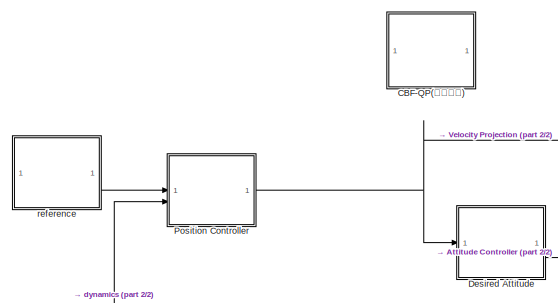
[diagram: root canvas - part 1/2, middle left region]
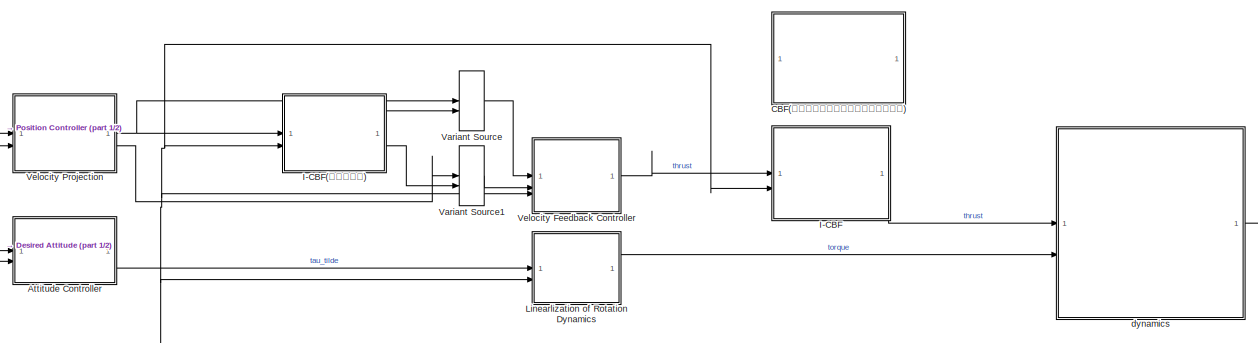
[diagram: root canvas - part 2/2, center side, full height]
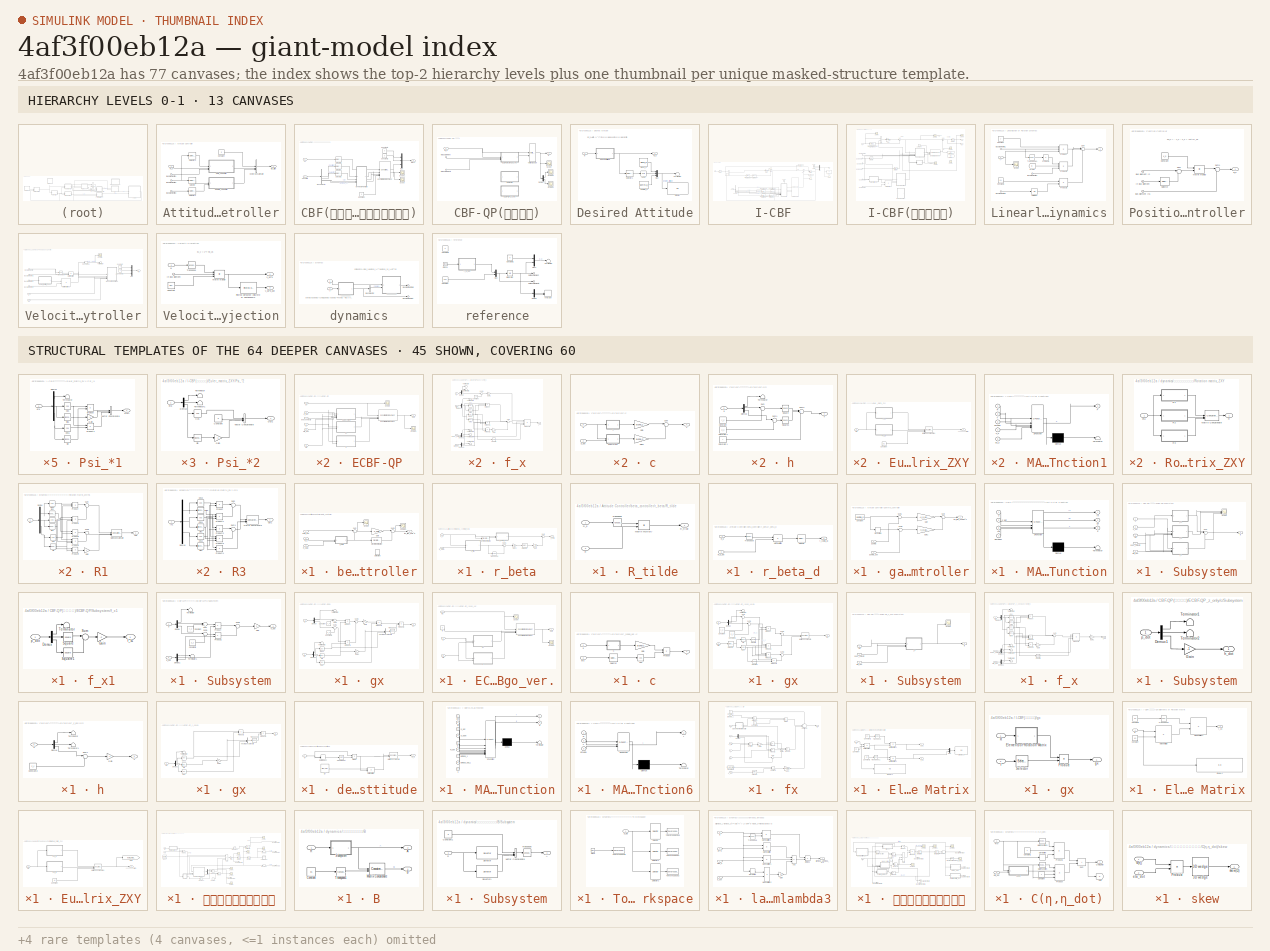
[diagram: thumbnail index - top-2 hierarchy levels (13 canvases) + 45 structural-template representatives of the remaining 64 canvases]
MODEL slx_4af3f00eb12a
KIND model
CONFIG AbsTol = auto
CONFIG EnableMultiTasking = off
CONFIG FixedStep = ts
CONFIG MaxStep = auto
CONFIG MinStep = auto
CONFIG RelTol = 1e-3
CONFIG SampleTimeConstraint = Unconstrained
CONFIG SolverName = FixedStepAuto
CONFIG StartTime = 0.0
CONFIG StopTime = fs
BLOCK [SubSystem] Attitude Controller
BLOCK [Inport] Attitude Controller/Bus Element In1
  Port = 2
BLOCK [Inport] Attitude Controller/Bus Element In2
  Port = 2
BLOCK [Inport] Attitude Controller/Bus Element In3
  Port = 2
BLOCK [Constant] Attitude Controller/Constant
  Value = 0
BLOCK [Inport] Attitude Controller/R_d
BLOCK [Selector] Attitude Controller/Selector
  IndexOptions = Index vector (dialog)
  Indices = [3]
  InputPortWidth = 3
  OutputSizes = 1
BLOCK [Selector] Attitude Controller/Selector1
  IndexOptions = Index vector (dialog)
  Indices = [3]
  InputPortWidth = 3
  OutputSizes = 1
BLOCK [Selector] Attitude Controller/Selector2
  IndexOptions = Index vector (dialog)
  Indices = [2]
  InputPortWidth = 3
  OutputSizes = 1
BLOCK [Concatenate] Attitude Controller/Vector Concatenate
  NumInputs = 3
BLOCK [SubSystem] Attitude Controller/beta_controller
BLOCK [Derivative] Attitude Controller/beta_controller/Derivative
  Commented = on
BLOCK [Reference] Attitude Controller/beta_controller/Discrete Derivative  REF=simulink/Discrete/Discrete Derivative
  SourceBlock = simulink/Discrete/Discrete Derivative
  SourceType = Discrete Derivative
BLOCK [Gain] Attitude Controller/beta_controller/Gain
  Gain = -k_beta
BLOCK [Inport] Attitude Controller/beta_controller/R_SO(2)
  Port = 3
BLOCK [Inport] Attitude Controller/beta_controller/R_d
  Port = 2
BLOCK [Scope] Attitude Controller/beta_controller/Scope
  Floating = off
  NumInputPorts = 1
  ScopeSpecificationString = Simulink.scopes.TimeScopeBlockCfg('CurrentConfiguration', extmgr.ConfigurationSet(extmgr.Configuration('Core','General UI',true),extmgr.Configuration('Core','Source UI',true),extmgr.Configuration('Sources','WiredSimulink',true,'DataLoggingVariableName','ScopeData6'),extmgr.Configuration('Visuals','Time Domain',true,'SerializedDisplays',{struct('MinYLimReal','-1.88625','MaxYLimReal','3.94607','YLab...<+1432ch>
BLOCK [Scope] Attitude Controller/beta_controller/Scope1
  Floating = off
  NumInputPorts = 1
  ScopeSpecificationString = Simulink.scopes.TimeScopeBlockCfg('CurrentConfiguration', extmgr.ConfigurationSet(extmgr.Configuration('Core','General UI',true),extmgr.Configuration('Core','Source UI',true),extmgr.Configuration('Sources','WiredSimulink',true,'DataLoggingVariableName','ScopeData7'),extmgr.Configuration('Visuals','Time Domain',true,'SerializedDisplays',{struct('MinYLimReal','-419.32163','MaxYLimReal','74.77515','Y...<+1420ch>
BLOCK [Sum] Attitude Controller/beta_controller/Sum
  Inputs = |+-
BLOCK [Sum] Attitude Controller/beta_controller/Sum1
  Inputs = |++
BLOCK [Inport] Attitude Controller/beta_controller/beta_dot
BLOCK [SubSystem] Attitude Controller/beta_controller/r_beta
BLOCK [Reference] Attitude Controller/beta_controller/r_beta/Discrete Derivative  REF=simulink/Discrete/Discrete Derivative
  SourceBlock = simulink/Discrete/Discrete Derivative
  SourceType = Discrete Derivative
BLOCK [Gain] Attitude Controller/beta_controller/r_beta/Gain
  Gain = k_R
BLOCK [Gain] Attitude Controller/beta_controller/r_beta/Gain1
  Gain = 1/2
BLOCK [Inport] Attitude Controller/beta_controller/r_beta/R_SO(2)
  Port = 2
BLOCK [Inport] Attitude Controller/beta_controller/r_beta/R_d
BLOCK [SubSystem] Attitude Controller/beta_controller/r_beta/R_tilde
BLOCK [Product] Attitude Controller/beta_controller/r_beta/R_tilde/Matrix Multiply
  Multiplication = Matrix(*)
BLOCK [Inport] Attitude Controller/beta_controller/r_beta/R_tilde/R
  Port = 2
BLOCK [Inport] Attitude Controller/beta_controller/r_beta/R_tilde/R_d
BLOCK [Outport] Attitude Controller/beta_controller/r_beta/R_tilde/R_tilde
BLOCK [Math] Attitude Controller/beta_controller/r_beta/R_tilde/Transpose
  Operator = transpose
BLOCK [Selector] Attitude Controller/beta_controller/r_beta/Selector
  IndexOptions = Index vector (dialog),Index vector (dialog)
  Indices = [2],1
  InputPortWidth = 3
  NumberOfDimensions = 2
  OutputSizes = 1,1
BLOCK [Sum] Attitude Controller/beta_controller/r_beta/Sum
  Inputs = |+-
BLOCK [Sum] Attitude Controller/beta_controller/r_beta/Sum1
  Inputs = |+-
BLOCK [Math] Attitude Controller/beta_controller/r_beta/Transpose
  Operator = transpose
BLOCK [Outport] Attitude Controller/beta_controller/r_beta/r_beta
BLOCK [SubSystem] Attitude Controller/beta_controller/r_beta/r_beta_d
BLOCK [Product] Attitude Controller/beta_controller/r_beta/r_beta_d/Matrix Multiply
  Multiplication = Matrix(*)
BLOCK [Inport] Attitude Controller/beta_controller/r_beta/r_beta_d/R_d
BLOCK [Inport] Attitude Controller/beta_controller/r_beta/r_beta_d/R_d_dot
  Port = 2
BLOCK [Selector] Attitude Controller/beta_controller/r_beta/r_beta_d/Selector
  IndexOptions = Index vector (dialog),Index vector (dialog)
  Indices = [2],1
  InputPortWidth = 3
  NumberOfDimensions = 2
  OutputSizes = 1,1
BLOCK [Math] Attitude Controller/beta_controller/r_beta/r_beta_d/Transpose
  Operator = transpose
BLOCK [Outport] Attitude Controller/beta_controller/r_beta/r_beta_d/r_{beta_d}
BLOCK [Outport] Attitude Controller/beta_controller/tau_tilde_beta^b
BLOCK [SubSystem] Attitude Controller/gamma_controller
BLOCK [Constant] Attitude Controller/gamma_controller/Constant
  Value = gamma_d
BLOCK [Derivative] Attitude Controller/gamma_controller/Derivative
BLOCK [Gain] Attitude Controller/gamma_controller/Gain
  Gain = -k_p_gamma
BLOCK [Gain] Attitude Controller/gamma_controller/Gain1
  Gain = -k_d_gamma
BLOCK [Sum] Attitude Controller/gamma_controller/Sum
  Inputs = |++
BLOCK [Sum] Attitude Controller/gamma_controller/Sum1
  Inputs = |-+
BLOCK [Sum] Attitude Controller/gamma_controller/Sum2
  Inputs = |-+
BLOCK [Inport] Attitude Controller/gamma_controller/gamma
BLOCK [Inport] Attitude Controller/gamma_controller/gamma_dot
  Port = 2
BLOCK [Outport] Attitude Controller/gamma_controller/tau_tilde_gamma^b
BLOCK [Outport] Attitude Controller/tau_tilde
BLOCK [SubSystem] CBF(通常ドローンホバリングの推力入力)
  Commented = on
BLOCK [BusSelector] CBF(通常ドローンホバリングの推力入力)/Bus Selector
  OutputSignals = translation.position,translation.velocity,rotation.R,translation.lambda_1
BLOCK [Constant] CBF(通常ドローンホバリングの推力入力)/Constant
  Value = 0
BLOCK [Constant] CBF(通常ドローンホバリングの推力入力)/Constant1
  Value = 0
BLOCK [Constant] CBF(通常ドローンホバリングの推力入力)/Constant2
  Value = 0
BLOCK [Reference] CBF(通常ドローンホバリングの推力入力)/Constraint Enforcement  REF=slctrl_constraint/Constraint Enforcement
  LibrarySourceBlock = slctrlblks/Constraint Control/Constraint Enforcement
  SourceBlock = slctrl_constraint/Constraint Enforcement
  SourceType = Constraint Enforcement
BLOCK [SubSystem] CBF(通常ドローンホバリングの推力入力)/MATLAB Function
  ErrorFcn = Stateflow.Translate.translate
  LibrarySourceBlock = simulink/User-Defined\nFunctions/MATLAB Function
  PermitHierarchicalResolution = ExplicitOnly
  SFBlockType = MATLAB Function
  TreatAsAtomicUnit = on
BLOCK [Demux] CBF(通常ドローンホバリングの推力入力)/MATLAB Function/ Demux 
  Outputs = 1
BLOCK [S-Function] CBF(通常ドローンホバリングの推力入力)/MATLAB Function/ SFunction 
  EnableBusSupport = on
  FunctionName = sf_sfun
  Parameters = alpha_1,alpha_2,g,m,z_c
  PortCounts = [4 4]
  SFcnIsStateOwnerBlock = off
  SFunctionDeploymentMode = off
  Tag = Stateflow S-Function 4
BLOCK [Terminator] CBF(通常ドローンホバリングの推力入力)/MATLAB Function/ Terminator 
BLOCK [Outport] CBF(通常ドローンホバリングの推力入力)/MATLAB Function/c
  Port = 3
BLOCK [Outport] CBF(通常ドローンホバリングの推力入力)/MATLAB Function/fx
BLOCK [Outport] CBF(通常ドローンホバリングの推力入力)/MATLAB Function/gx
  Port = 2
BLOCK [Inport] CBF(通常ドローンホバリングの推力入力)/MATLAB Function/lambda1
  Port = 4
BLOCK [Inport] CBF(通常ドローンホバリングの推力入力)/MATLAB Function/rot
  Port = 3
BLOCK [Inport] CBF(通常ドローンホバリングの推力入力)/MATLAB Function/z
BLOCK [Inport] CBF(通常ドローンホバリングの推力入力)/MATLAB Function/z_dot
  Port = 2
BLOCK [Mux] CBF(通常ドローンホバリングの推力入力)/Mux
  DisplayOption = bar
  Inputs = 3
BLOCK [Scope] CBF(通常ドローンホバリングの推力入力)/Scope
  Floating = off
  NumInputPorts = 1
  ScopeSpecificationString = Simulink.scopes.TimeScopeBlockCfg('CurrentConfiguration', extmgr.ConfigurationSet(extmgr.Configuration('Core','General UI',true),extmgr.Configuration('Core','Source UI',true),extmgr.Configuration('Sources','WiredSimulink',true,'DataLoggingVariableName','ScopeData1'),extmgr.Configuration('Visuals','Time Domain',true),extmgr.Configuration('Tools','Plot Navigation',true),extmgr.Configuration('Tools',...<+40ch>
BLOCK [Scope] CBF(通常ドローンホバリングの推力入力)/Scope1
  Floating = off
  NumInputPorts = 1
  ScopeSpecificationString = Simulink.scopes.TimeScopeBlockCfg('CurrentConfiguration', extmgr.ConfigurationSet(extmgr.Configuration('Core','General UI',true),extmgr.Configuration('Core','Source UI',true),extmgr.Configuration('Sources','WiredSimulink',true,'DataLoggingVariableName','ScopeData9'),extmgr.Configuration('Visuals','Time Domain',true),extmgr.Configuration('Tools','Plot Navigation',true),extmgr.Configuration('Tools',...<+40ch>
BLOCK [Selector] CBF(通常ドローンホバリングの推力入力)/Selector
  IndexOptions = Index vector (dialog)
  Indices = 3
  InputPortWidth = 3
  OutputSizes = 1
BLOCK [Selector] CBF(通常ドローンホバリングの推力入力)/Selector1
  IndexOptions = Index vector (dialog)
  Indices = 3
  InputPortWidth = 3
  OutputSizes = 1
BLOCK [Selector] CBF(通常ドローンホバリングの推力入力)/Selector2
  IndexOptions = Index vector (dialog)
  Indices = 3
  InputPortWidth = 3
  OutputSizes = 1
BLOCK [Outport] CBF(通常ドローンホバリングの推力入力)/thrust
BLOCK [Inport] CBF(通常ドローンホバリングの推力入力)/u0
BLOCK [Inport] CBF(通常ドローンホバリングの推力入力)/uav state
  Port = 2
BLOCK [SubSystem] CBF-QP(速度入力)
  Commented = on
BLOCK [Demux] CBF-QP(速度入力)/Demux
  Outputs = 2
BLOCK [SubSystem] CBF-QP(速度入力)/ECBF-QP
  Commented = on
BLOCK [Reference] CBF-QP(速度入力)/ECBF-QP/Constraint Enforcement  REF=slctrl_constraint/Constraint Enforcement
  SourceBlock = slctrl_constraint/Constraint Enforcement
  SourceType = Constraint Enforcement
BLOCK [Outport] CBF-QP(速度入力)/ECBF-QP/Out1
BLOCK [Scope] CBF-QP(速度入力)/ECBF-QP/Scope
  Floating = off
  NumInputPorts = 1
  ScopeSpecificationString = Simulink.scopes.TimeScopeBlockCfg('CurrentConfiguration', extmgr.ConfigurationSet(extmgr.Configuration('Core','General UI',true),extmgr.Configuration('Core','Source UI',true),extmgr.Configuration('Sources','WiredSimulink',true,'DataLoggingVariableName','ScopeData1'),extmgr.Configuration('Visuals','Time Domain',true,'SerializedDisplays',{struct('MinYLimReal','-0.03247','MaxYLimReal','0.24365','YLab...<+1412ch>  <repeated x3 — deduplicated; at blocks: Scope>
BLOCK [Scope] CBF-QP(速度入力)/ECBF-QP/Scope1
  Floating = off
  NumInputPorts = 1
  ScopeSpecificationString = Simulink.scopes.TimeScopeBlockCfg('CurrentConfiguration', extmgr.ConfigurationSet(extmgr.Configuration('Core','General UI',true),extmgr.Configuration('Core','Source UI',true),extmgr.Configuration('Sources','WiredSimulink',true,'DataLoggingVariableName','ScopeData2'),extmgr.Configuration('Visuals','Time Domain',true,'SerializedDisplays',{struct('MinYLimReal','-0.03247','MaxYLimReal','0.24365','YLab...<+1466ch>  <repeated x3 — deduplicated; at blocks: Scope1>
BLOCK [SubSystem] CBF-QP(速度入力)/ECBF-QP/Subsystem
BLOCK [Scope] CBF-QP(速度入力)/ECBF-QP/Subsystem/Scope
  Floating = off
  NumInputPorts = 3
  ScopeSpecificationString = Simulink.scopes.TimeScopeBlockCfg
BLOCK [Sum] CBF-QP(速度入力)/ECBF-QP/Subsystem/Sum
  Inputs = |+++
BLOCK [Inport] CBF-QP(速度入力)/ECBF-QP/Subsystem/body_velocity
  Port = 4
BLOCK [Inport] CBF-QP(速度入力)/ECBF-QP/Subsystem/eta
  Port = 3
BLOCK [Inport] CBF-QP(速度入力)/ECBF-QP/Subsystem/eta_dot
  Port = 5
BLOCK [SubSystem] CBF-QP(速度入力)/ECBF-QP/Subsystem/f_x
BLOCK [Constant] CBF-QP(速度入力)/ECBF-QP/Subsystem/f_x/Constant
  Value = z_c
BLOCK [Trigonometry] CBF-QP(速度入力)/ECBF-QP/Subsystem/f_x/Cos
  Operator = cos
BLOCK [Trigonometry] CBF-QP(速度入力)/ECBF-QP/Subsystem/f_x/Cos1
  Operator = cos
BLOCK [Demux] CBF-QP(速度入力)/ECBF-QP/Subsystem/f_x/Demux
  Outputs = 3
BLOCK [Demux] CBF-QP(速度入力)/ECBF-QP/Subsystem/f_x/Demux1
  Outputs = 3
BLOCK [Demux] CBF-QP(速度入力)/ECBF-QP/Subsystem/f_x/Demux2
  Outputs = 3
BLOCK [Demux] CBF-QP(速度入力)/ECBF-QP/Subsystem/f_x/Demux3
  Outputs = 3
BLOCK [Gain] CBF-QP(速度入力)/ECBF-QP/Subsystem/f_x/Gain
  Gain = k_3
BLOCK [Gain] CBF-QP(速度入力)/ECBF-QP/Subsystem/f_x/Gain1
  Gain = 2
BLOCK [Product] CBF-QP(速度入力)/ECBF-QP/Subsystem/f_x/Product
  Inputs = 3
BLOCK [Product] CBF-QP(速度入力)/ECBF-QP/Subsystem/f_x/Product1
  Inputs = 3
BLOCK [Product] CBF-QP(速度入力)/ECBF-QP/Subsystem/f_x/Product2
BLOCK [Product] CBF-QP(速度入力)/ECBF-QP/Subsystem/f_x/Product3
  Inputs = ***/
BLOCK [Trigonometry] CBF-QP(速度入力)/ECBF-QP/Subsystem/f_x/Sin
BLOCK [Trigonometry] CBF-QP(速度入力)/ECBF-QP/Subsystem/f_x/Sin1
BLOCK [Math] CBF-QP(速度入力)/ECBF-QP/Subsystem/f_x/Square
  Operator = square
BLOCK [Sum] CBF-QP(速度入力)/ECBF-QP/Subsystem/f_x/Sum
  Inputs = |+--
BLOCK [Sum] CBF-QP(速度入力)/ECBF-QP/Subsystem/f_x/Sum1
  Inputs = |+-
BLOCK [Terminator] CBF-QP(速度入力)/ECBF-QP/Subsystem/f_x/Terminator
BLOCK [Terminator] CBF-QP(速度入力)/ECBF-QP/Subsystem/f_x/Terminator1
BLOCK [Terminator] CBF-QP(速度入力)/ECBF-QP/Subsystem/f_x/Terminator2
BLOCK [Terminator] CBF-QP(速度入力)/ECBF-QP/Subsystem/f_x/Terminator3
BLOCK [Terminator] CBF-QP(速度入力)/ECBF-QP/Subsystem/f_x/Terminator4
BLOCK [Terminator] CBF-QP(速度入力)/ECBF-QP/Subsystem/f_x/Terminator5
BLOCK [Inport] CBF-QP(速度入力)/ECBF-QP/Subsystem/f_x/body_velocity
  Port = 3
BLOCK [Inport] CBF-QP(速度入力)/ECBF-QP/Subsystem/f_x/eta
  Port = 2
BLOCK [Inport] CBF-QP(速度入力)/ECBF-QP/Subsystem/f_x/eta_dot
  Port = 4
BLOCK [Outport] CBF-QP(速度入力)/ECBF-QP/Subsystem/f_x/f_x3
BLOCK [Inport] CBF-QP(速度入力)/ECBF-QP/Subsystem/f_x/p
BLOCK [SubSystem] CBF-QP(速度入力)/ECBF-QP/Subsystem/f_x1
BLOCK [Demux] CBF-QP(速度入力)/ECBF-QP/Subsystem/f_x1/Demux
  Outputs = 3
BLOCK [Gain] CBF-QP(速度入力)/ECBF-QP/Subsystem/f_x1/Gain
  Gain = -2
BLOCK [Math] CBF-QP(速度入力)/ECBF-QP/Subsystem/f_x1/Square
  Operator = square
BLOCK [Math] CBF-QP(速度入力)/ECBF-QP/Subsystem/f_x1/Square1
  Operator = square
BLOCK [Sum] CBF-QP(速度入力)/ECBF-QP/Subsystem/f_x1/Sum
  Inputs = |++
BLOCK [Terminator] CBF-QP(速度入力)/ECBF-QP/Subsystem/f_x1/Terminator
BLOCK [Outport] CBF-QP(速度入力)/ECBF-QP/Subsystem/f_x1/f_x1
BLOCK [Inport] CBF-QP(速度入力)/ECBF-QP/Subsystem/f_x1/p_dot
BLOCK [SubSystem] CBF-QP(速度入力)/ECBF-QP/Subsystem/f_x2
BLOCK [Constant] CBF-QP(速度入力)/ECBF-QP/Subsystem/f_x2/Constant
  Value = y_c
BLOCK [Trigonometry] CBF-QP(速度入力)/ECBF-QP/Subsystem/f_x2/Cos
  Operator = cos
BLOCK [Trigonometry] CBF-QP(速度入力)/ECBF-QP/Subsystem/f_x2/Cos1
  Operator = cos
BLOCK [Demux] CBF-QP(速度入力)/ECBF-QP/Subsystem/f_x2/Demux
  Outputs = 3
BLOCK [Demux] CBF-QP(速度入力)/ECBF-QP/Subsystem/f_x2/Demux1
  Outputs = 3
BLOCK [Demux] CBF-QP(速度入力)/ECBF-QP/Subsystem/f_x2/Demux2
  Outputs = 3
BLOCK [Demux] CBF-QP(速度入力)/ECBF-QP/Subsystem/f_x2/Demux3
  Outputs = 3
BLOCK [Gain] CBF-QP(速度入力)/ECBF-QP/Subsystem/f_x2/Gain
  Gain = k_3
BLOCK [Gain] CBF-QP(速度入力)/ECBF-QP/Subsystem/f_x2/Gain1
  Gain = 2
BLOCK [Product] CBF-QP(速度入力)/ECBF-QP/Subsystem/f_x2/Product
  Inputs = 3
BLOCK [Product] CBF-QP(速度入力)/ECBF-QP/Subsystem/f_x2/Product1
  Inputs = 3
BLOCK [Product] CBF-QP(速度入力)/ECBF-QP/Subsystem/f_x2/Product2
BLOCK [Product] CBF-QP(速度入力)/ECBF-QP/Subsystem/f_x2/Product3
  Inputs = ***/
BLOCK [Trigonometry] CBF-QP(速度入力)/ECBF-QP/Subsystem/f_x2/Sin
BLOCK [Trigonometry] CBF-QP(速度入力)/ECBF-QP/Subsystem/f_x2/Sin1
BLOCK [Math] CBF-QP(速度入力)/ECBF-QP/Subsystem/f_x2/Square
  Operator = square
BLOCK [Sum] CBF-QP(速度入力)/ECBF-QP/Subsystem/f_x2/Sum
  Inputs = |++-
BLOCK [Sum] CBF-QP(速度入力)/ECBF-QP/Subsystem/f_x2/Sum1
  Inputs = |+-
BLOCK [Terminator] CBF-QP(速度入力)/ECBF-QP/Subsystem/f_x2/Terminator
BLOCK [Terminator] CBF-QP(速度入力)/ECBF-QP/Subsystem/f_x2/Terminator1
BLOCK [Terminator] CBF-QP(速度入力)/ECBF-QP/Subsystem/f_x2/Terminator2
BLOCK [Terminator] CBF-QP(速度入力)/ECBF-QP/Subsystem/f_x2/Terminator3
BLOCK [Terminator] CBF-QP(速度入力)/ECBF-QP/Subsystem/f_x2/Terminator4
BLOCK [Terminator] CBF-QP(速度入力)/ECBF-QP/Subsystem/f_x2/Terminator5
BLOCK [Inport] CBF-QP(速度入力)/ECBF-QP/Subsystem/f_x2/body_velocity
  Port = 3
BLOCK [Inport] CBF-QP(速度入力)/ECBF-QP/Subsystem/f_x2/eta
  Port = 2
BLOCK [Inport] CBF-QP(速度入力)/ECBF-QP/Subsystem/f_x2/eta_dot
  Port = 4
BLOCK [Outport] CBF-QP(速度入力)/ECBF-QP/Subsystem/f_x2/f_x2
BLOCK [Inport] CBF-QP(速度入力)/ECBF-QP/Subsystem/f_x2/p
BLOCK [Outport] CBF-QP(速度入力)/ECBF-QP/Subsystem/fx
BLOCK [Inport] CBF-QP(速度入力)/ECBF-QP/Subsystem/p
BLOCK [Inport] CBF-QP(速度入力)/ECBF-QP/Subsystem/p_dot
  Port = 2
BLOCK [Inport] CBF-QP(速度入力)/ECBF-QP/body_velocity
  Port = 5
BLOCK [SubSystem] CBF-QP(速度入力)/ECBF-QP/c
BLOCK [Gain] CBF-QP(速度入力)/ECBF-QP/c/Gain
  Gain = alpha_1
BLOCK [Gain] CBF-QP(速度入力)/ECBF-QP/c/Gain1
  Gain = alpha_2
BLOCK [SubSystem] CBF-QP(速度入力)/ECBF-QP/c/Subsystem
BLOCK [Constant] CBF-QP(速度入力)/ECBF-QP/c/Subsystem/Constant
  Value = y_c
BLOCK [Constant] CBF-QP(速度入力)/ECBF-QP/c/Subsystem/Constant1
  Value = z_c
BLOCK [Demux] CBF-QP(速度入力)/ECBF-QP/c/Subsystem/Demux
  Outputs = 3
BLOCK [Demux] CBF-QP(速度入力)/ECBF-QP/c/Subsystem/Demux1
  Outputs = 3
BLOCK [Gain] CBF-QP(速度入力)/ECBF-QP/c/Subsystem/Gain
  Gain = 2
BLOCK [Product] CBF-QP(速度入力)/ECBF-QP/c/Subsystem/Product
BLOCK [Product] CBF-QP(速度入力)/ECBF-QP/c/Subsystem/Product1
BLOCK [Sum] CBF-QP(速度入力)/ECBF-QP/c/Subsystem/Sum
  Inputs = |+-
BLOCK [Sum] CBF-QP(速度入力)/ECBF-QP/c/Subsystem/Sum1
  Inputs = |+-
BLOCK [Sum] CBF-QP(速度入力)/ECBF-QP/c/Subsystem/Sum2
  Inputs = |++
BLOCK [Terminator] CBF-QP(速度入力)/ECBF-QP/c/Subsystem/Terminator
BLOCK [Terminator] CBF-QP(速度入力)/ECBF-QP/c/Subsystem/Terminator1
BLOCK [Outport] CBF-QP(速度入力)/ECBF-QP/c/Subsystem/h_dot
BLOCK [Inport] CBF-QP(速度入力)/ECBF-QP/c/Subsystem/p
BLOCK [Inport] CBF-QP(速度入力)/ECBF-QP/c/Subsystem/p_dot
  Port = 2
BLOCK [Sum] CBF-QP(速度入力)/ECBF-QP/c/Sum
  Inputs = |++
BLOCK [Outport] CBF-QP(速度入力)/ECBF-QP/c/c
BLOCK [SubSystem] CBF-QP(速度入力)/ECBF-QP/c/h
BLOCK [Constant] CBF-QP(速度入力)/ECBF-QP/c/h/Constant
  Value = y_c
BLOCK [Constant] CBF-QP(速度入力)/ECBF-QP/c/h/Constant1
  Value = r
BLOCK [Constant] CBF-QP(速度入力)/ECBF-QP/c/h/Constant2
  Value = z_c
BLOCK [Demux] CBF-QP(速度入力)/ECBF-QP/c/h/Demux
  Outputs = 3
BLOCK [Math] CBF-QP(速度入力)/ECBF-QP/c/h/Square
  Operator = square
BLOCK [Math] CBF-QP(速度入力)/ECBF-QP/c/h/Square1
  Operator = square
BLOCK [Sum] CBF-QP(速度入力)/ECBF-QP/c/h/Sum
  Inputs = |+-
BLOCK [Sum] CBF-QP(速度入力)/ECBF-QP/c/h/Sum1
  Inputs = |+-
BLOCK [Sum] CBF-QP(速度入力)/ECBF-QP/c/h/Sum2
  Inputs = |++-
BLOCK [Terminator] CBF-QP(速度入力)/ECBF-QP/c/h/Terminator
BLOCK [Outport] CBF-QP(速度入力)/ECBF-QP/c/h/h
BLOCK [Inport] CBF-QP(速度入力)/ECBF-QP/c/h/p
BLOCK [Inport] CBF-QP(速度入力)/ECBF-QP/c/p
BLOCK [Inport] CBF-QP(速度入力)/ECBF-QP/c/p_dot
  Port = 2
BLOCK [Inport] CBF-QP(速度入力)/ECBF-QP/eta
  Port = 3
BLOCK [Inport] CBF-QP(速度入力)/ECBF-QP/eta_dot
  Port = 6
BLOCK [SubSystem] CBF-QP(速度入力)/ECBF-QP/gx
BLOCK [Constant] CBF-QP(速度入力)/ECBF-QP/gx/Constant
  Value = y_c
BLOCK [Constant] CBF-QP(速度入力)/ECBF-QP/gx/Constant1
  Value = z_c
BLOCK [Trigonometry] CBF-QP(速度入力)/ECBF-QP/gx/Cos
  Operator = cos
BLOCK [Trigonometry] CBF-QP(速度入力)/ECBF-QP/gx/Cos1
  Operator = cos
BLOCK [Demux] CBF-QP(速度入力)/ECBF-QP/gx/Demux
  Outputs = 3
BLOCK [Demux] CBF-QP(速度入力)/ECBF-QP/gx/Demux1
  Outputs = 3
BLOCK [Gain] CBF-QP(速度入力)/ECBF-QP/gx/Gain
  Gain = 2
BLOCK [Gain] CBF-QP(速度入力)/ECBF-QP/gx/Gain1
  Gain = -1
BLOCK [Product] CBF-QP(速度入力)/ECBF-QP/gx/Product
BLOCK [Product] CBF-QP(速度入力)/ECBF-QP/gx/Product1
BLOCK [Product] CBF-QP(速度入力)/ECBF-QP/gx/Product2
  Inputs = */
BLOCK [Product] CBF-QP(速度入力)/ECBF-QP/gx/Product3
BLOCK [Trigonometry] CBF-QP(速度入力)/ECBF-QP/gx/Sin
BLOCK [Sum] CBF-QP(速度入力)/ECBF-QP/gx/Sum
  Inputs = |+-
BLOCK [Sum] CBF-QP(速度入力)/ECBF-QP/gx/Sum1
  Inputs = |+-
BLOCK [Sum] CBF-QP(速度入力)/ECBF-QP/gx/Sum2
  Inputs = |+-
BLOCK [Terminator] CBF-QP(速度入力)/ECBF-QP/gx/Terminator1
BLOCK [Terminator] CBF-QP(速度入力)/ECBF-QP/gx/Terminator2
BLOCK [Math] CBF-QP(速度入力)/ECBF-QP/gx/Transpose
  Operator = transpose
BLOCK [Concatenate] CBF-QP(速度入力)/ECBF-QP/gx/Vector Concatenate
BLOCK [Inport] CBF-QP(速度入力)/ECBF-QP/gx/eta
  Port = 2
BLOCK [Outport] CBF-QP(速度入力)/ECBF-QP/gx/gx
BLOCK [Inport] CBF-QP(速度入力)/ECBF-QP/gx/p
BLOCK [Inport] CBF-QP(速度入力)/ECBF-QP/p
  Port = 2
BLOCK [Inport] CBF-QP(速度入力)/ECBF-QP/p_dot
  Port = 4
BLOCK [Inport] CBF-QP(速度入力)/ECBF-QP/u0
BLOCK [SubSystem] CBF-QP(速度入力)/ECBF-QP_rengo_ver.
BLOCK [Reference] CBF-QP(速度入力)/ECBF-QP_rengo_ver./Constraint Enforcement  REF=slctrl_constraint/Constraint Enforcement
  SourceBlock = slctrl_constraint/Constraint Enforcement
  SourceType = Constraint Enforcement
BLOCK [Outport] CBF-QP(速度入力)/ECBF-QP_rengo_ver./Out1
BLOCK [Scope] CBF-QP(速度入力)/ECBF-QP_rengo_ver./Scope
  Floating = off
  NumInputPorts = 1
BLOCK [Scope] CBF-QP(速度入力)/ECBF-QP_rengo_ver./Scope1
  Floating = off
  NumInputPorts = 1
BLOCK [SubSystem] CBF-QP(速度入力)/ECBF-QP_rengo_ver./c
BLOCK [Trigonometry] CBF-QP(速度入力)/ECBF-QP_rengo_ver./c/Cos
  Operator = cos
BLOCK [Gain] CBF-QP(速度入力)/ECBF-QP_rengo_ver./c/Gain
  Gain = alpha/2
BLOCK [Product] CBF-QP(速度入力)/ECBF-QP_rengo_ver./c/Product
BLOCK [Selector] CBF-QP(速度入力)/ECBF-QP_rengo_ver./c/Selector
  IndexOptions = Index vector (dialog)
  Indices = [3]
  InputPortWidth = 3
  OutputSizes = 1
BLOCK [Outport] CBF-QP(速度入力)/ECBF-QP_rengo_ver./c/c
BLOCK [Inport] CBF-QP(速度入力)/ECBF-QP_rengo_ver./c/eta
  Port = 2
BLOCK [SubSystem] CBF-QP(速度入力)/ECBF-QP_rengo_ver./c/h
BLOCK [Constant] CBF-QP(速度入力)/ECBF-QP_rengo_ver./c/h/Constant
  Value = y_c
BLOCK [Constant] CBF-QP(速度入力)/ECBF-QP_rengo_ver./c/h/Constant1
  Value = r
BLOCK [Constant] CBF-QP(速度入力)/ECBF-QP_rengo_ver./c/h/Constant2
  Value = z_c
BLOCK [Demux] CBF-QP(速度入力)/ECBF-QP_rengo_ver./c/h/Demux
  Outputs = 3
BLOCK [Math] CBF-QP(速度入力)/ECBF-QP_rengo_ver./c/h/Square
  Operator = square
BLOCK [Math] CBF-QP(速度入力)/ECBF-QP_rengo_ver./c/h/Square1
  Operator = square
BLOCK [Sum] CBF-QP(速度入力)/ECBF-QP_rengo_ver./c/h/Sum
  Inputs = |+-
BLOCK [Sum] CBF-QP(速度入力)/ECBF-QP_rengo_ver./c/h/Sum1
  Inputs = |+-
BLOCK [Sum] CBF-QP(速度入力)/ECBF-QP_rengo_ver./c/h/Sum2
  Inputs = |++-
BLOCK [Terminator] CBF-QP(速度入力)/ECBF-QP_rengo_ver./c/h/Terminator
BLOCK [Outport] CBF-QP(速度入力)/ECBF-QP_rengo_ver./c/h/h
BLOCK [Inport] CBF-QP(速度入力)/ECBF-QP_rengo_ver./c/h/p
BLOCK [Inport] CBF-QP(速度入力)/ECBF-QP_rengo_ver./c/p
BLOCK [Inport] CBF-QP(速度入力)/ECBF-QP_rengo_ver./eta
  Port = 3
BLOCK [Constant] CBF-QP(速度入力)/ECBF-QP_rengo_ver./fx
  Value = 0
  VectorParams1D = off
BLOCK [SubSystem] CBF-QP(速度入力)/ECBF-QP_rengo_ver./gx
BLOCK [Constant] CBF-QP(速度入力)/ECBF-QP_rengo_ver./gx/Constant
  Value = y_c
BLOCK [Constant] CBF-QP(速度入力)/ECBF-QP_rengo_ver./gx/Constant1
  Value = z_c
BLOCK [Trigonometry] CBF-QP(速度入力)/ECBF-QP_rengo_ver./gx/Cos
  Operator = cos
BLOCK [Demux] CBF-QP(速度入力)/ECBF-QP_rengo_ver./gx/Demux
  Outputs = 3
BLOCK [Concatenate] CBF-QP(速度入力)/ECBF-QP_rengo_ver./gx/Matrix Concatenate
  ConcatenateDimension = 2
  Mode = Multidimensional array
BLOCK [Product] CBF-QP(速度入力)/ECBF-QP_rengo_ver./gx/Product
BLOCK [Product] CBF-QP(速度入力)/ECBF-QP_rengo_ver./gx/Product1
  Inputs = 3
BLOCK [Product] CBF-QP(速度入力)/ECBF-QP_rengo_ver./gx/Product2
  Inputs = 3
BLOCK [Product] CBF-QP(速度入力)/ECBF-QP_rengo_ver./gx/Product3
BLOCK [Selector] CBF-QP(速度入力)/ECBF-QP_rengo_ver./gx/Selector
  IndexOptions = Index vector (dialog)
  Indices = [2]
  InputPortWidth = 3
  OutputSizes = 1
BLOCK [Trigonometry] CBF-QP(速度入力)/ECBF-QP_rengo_ver./gx/Sin
BLOCK [Math] CBF-QP(速度入力)/ECBF-QP_rengo_ver./gx/Square
  Operator = square
BLOCK [Math] CBF-QP(速度入力)/ECBF-QP_rengo_ver./gx/Square1
  Operator = square
BLOCK [Sum] CBF-QP(速度入力)/ECBF-QP_rengo_ver./gx/Sum
  Inputs = |+-
BLOCK [Sum] CBF-QP(速度入力)/ECBF-QP_rengo_ver./gx/Sum1
  Inputs = |+-
BLOCK [Sum] CBF-QP(速度入力)/ECBF-QP_rengo_ver./gx/Sum2
  Inputs = |--
BLOCK [Sum] CBF-QP(速度入力)/ECBF-QP_rengo_ver./gx/Sum3
  Inputs = |+-
BLOCK [Terminator] CBF-QP(速度入力)/ECBF-QP_rengo_ver./gx/Terminator
BLOCK [Inport] CBF-QP(速度入力)/ECBF-QP_rengo_ver./gx/eta
  Port = 2
BLOCK [Outport] CBF-QP(速度入力)/ECBF-QP_rengo_ver./gx/gx
BLOCK [Inport] CBF-QP(速度入力)/ECBF-QP_rengo_ver./gx/p
BLOCK [Inport] CBF-QP(速度入力)/ECBF-QP_rengo_ver./p
  Port = 2
BLOCK [Inport] CBF-QP(速度入力)/ECBF-QP_rengo_ver./w0
BLOCK [SubSystem] CBF-QP(速度入力)/ECBF-QP_z_only
  Commented = on
BLOCK [Reference] CBF-QP(速度入力)/ECBF-QP_z_only/Constraint Enforcement  REF=slctrl_constraint/Constraint Enforcement
  SourceBlock = slctrl_constraint/Constraint Enforcement
  SourceType = Constraint Enforcement
BLOCK [Outport] CBF-QP(速度入力)/ECBF-QP_z_only/Out1
BLOCK [Scope] CBF-QP(速度入力)/ECBF-QP_z_only/Scope
  Floating = off
  NumInputPorts = 1
BLOCK [Scope] CBF-QP(速度入力)/ECBF-QP_z_only/Scope1
  Floating = off
  NumInputPorts = 1
BLOCK [SubSystem] CBF-QP(速度入力)/ECBF-QP_z_only/Subsystem
BLOCK [Scope] CBF-QP(速度入力)/ECBF-QP_z_only/Subsystem/Scope
  Floating = off
  NumInputPorts = 3
  ScopeSpecificationString = Simulink.scopes.TimeScopeBlockCfg
BLOCK [Inport] CBF-QP(速度入力)/ECBF-QP_z_only/Subsystem/body_velocity
  Port = 2
BLOCK [Inport] CBF-QP(速度入力)/ECBF-QP_z_only/Subsystem/eta
BLOCK [Inport] CBF-QP(速度入力)/ECBF-QP_z_only/Subsystem/eta_dot
  Port = 3
BLOCK [SubSystem] CBF-QP(速度入力)/ECBF-QP_z_only/Subsystem/f_x
BLOCK [Trigonometry] CBF-QP(速度入力)/ECBF-QP_z_only/Subsystem/f_x/Cos
  Operator = cos
BLOCK [Trigonometry] CBF-QP(速度入力)/ECBF-QP_z_only/Subsystem/f_x/Cos1
  Operator = cos
BLOCK [Demux] CBF-QP(速度入力)/ECBF-QP_z_only/Subsystem/f_x/Demux1
  Outputs = 3
BLOCK [Demux] CBF-QP(速度入力)/ECBF-QP_z_only/Subsystem/f_x/Demux2
  Outputs = 3
BLOCK [Demux] CBF-QP(速度入力)/ECBF-QP_z_only/Subsystem/f_x/Demux3
  Outputs = 3
BLOCK [Gain] CBF-QP(速度入力)/ECBF-QP_z_only/Subsystem/f_x/Gain
  Gain = k_3
BLOCK [Gain] CBF-QP(速度入力)/ECBF-QP_z_only/Subsystem/f_x/Gain1
  Gain = -1
BLOCK [Product] CBF-QP(速度入力)/ECBF-QP_z_only/Subsystem/f_x/Product
  Inputs = 3
BLOCK [Product] CBF-QP(速度入力)/ECBF-QP_z_only/Subsystem/f_x/Product1
  Inputs = 3
BLOCK [Product] CBF-QP(速度入力)/ECBF-QP_z_only/Subsystem/f_x/Product2
BLOCK [Product] CBF-QP(速度入力)/ECBF-QP_z_only/Subsystem/f_x/Product3
  Inputs = **/
BLOCK [Trigonometry] CBF-QP(速度入力)/ECBF-QP_z_only/Subsystem/f_x/Sin
BLOCK [Trigonometry] CBF-QP(速度入力)/ECBF-QP_z_only/Subsystem/f_x/Sin1
BLOCK [Math] CBF-QP(速度入力)/ECBF-QP_z_only/Subsystem/f_x/Square
  Operator = square
BLOCK [Sum] CBF-QP(速度入力)/ECBF-QP_z_only/Subsystem/f_x/Sum
  Inputs = |+-+
BLOCK [Terminator] CBF-QP(速度入力)/ECBF-QP_z_only/Subsystem/f_x/Terminator2
BLOCK [Terminator] CBF-QP(速度入力)/ECBF-QP_z_only/Subsystem/f_x/Terminator3
BLOCK [Terminator] CBF-QP(速度入力)/ECBF-QP_z_only/Subsystem/f_x/Terminator4
BLOCK [Terminator] CBF-QP(速度入力)/ECBF-QP_z_only/Subsystem/f_x/Terminator5
BLOCK [Inport] CBF-QP(速度入力)/ECBF-QP_z_only/Subsystem/f_x/body_velocity
  Port = 2
BLOCK [Inport] CBF-QP(速度入力)/ECBF-QP_z_only/Subsystem/f_x/eta
BLOCK [Inport] CBF-QP(速度入力)/ECBF-QP_z_only/Subsystem/f_x/eta_dot
  Port = 3
BLOCK [Outport] CBF-QP(速度入力)/ECBF-QP_z_only/Subsystem/f_x/f_x3
BLOCK [Outport] CBF-QP(速度入力)/ECBF-QP_z_only/Subsystem/fx
BLOCK [Inport] CBF-QP(速度入力)/ECBF-QP_z_only/body_velocity
  Port = 5
BLOCK [SubSystem] CBF-QP(速度入力)/ECBF-QP_z_only/c
BLOCK [Gain] CBF-QP(速度入力)/ECBF-QP_z_only/c/Gain
  Gain = alpha_1
BLOCK [Gain] CBF-QP(速度入力)/ECBF-QP_z_only/c/Gain1
  Gain = alpha_2
BLOCK [SubSystem] CBF-QP(速度入力)/ECBF-QP_z_only/c/Subsystem
BLOCK [Demux] CBF-QP(速度入力)/ECBF-QP_z_only/c/Subsystem/Demux1
  Outputs = 3
BLOCK [Gain] CBF-QP(速度入力)/ECBF-QP_z_only/c/Subsystem/Gain
  Gain = -1
BLOCK [Terminator] CBF-QP(速度入力)/ECBF-QP_z_only/c/Subsystem/Terminator1
BLOCK [Terminator] CBF-QP(速度入力)/ECBF-QP_z_only/c/Subsystem/Terminator2
BLOCK [Outport] CBF-QP(速度入力)/ECBF-QP_z_only/c/Subsystem/h_dot
BLOCK [Inport] CBF-QP(速度入力)/ECBF-QP_z_only/c/Subsystem/p_dot
BLOCK [Sum] CBF-QP(速度入力)/ECBF-QP_z_only/c/Sum
  Inputs = |++
BLOCK [Outport] CBF-QP(速度入力)/ECBF-QP_z_only/c/c
BLOCK [SubSystem] CBF-QP(速度入力)/ECBF-QP_z_only/c/h
BLOCK [Constant] CBF-QP(速度入力)/ECBF-QP_z_only/c/h/Constant2
  Value = z_c
BLOCK [Demux] CBF-QP(速度入力)/ECBF-QP_z_only/c/h/Demux
  Outputs = 3
BLOCK [Gain] CBF-QP(速度入力)/ECBF-QP_z_only/c/h/Gain
  Gain = -1
BLOCK [Sum] CBF-QP(速度入力)/ECBF-QP_z_only/c/h/Sum1
  Inputs = |+-
BLOCK [Terminator] CBF-QP(速度入力)/ECBF-QP_z_only/c/h/Terminator
BLOCK [Terminator] CBF-QP(速度入力)/ECBF-QP_z_only/c/h/Terminator1
BLOCK [Outport] CBF-QP(速度入力)/ECBF-QP_z_only/c/h/h
BLOCK [Inport] CBF-QP(速度入力)/ECBF-QP_z_only/c/h/p
BLOCK [Inport] CBF-QP(速度入力)/ECBF-QP_z_only/c/p
BLOCK [Inport] CBF-QP(速度入力)/ECBF-QP_z_only/c/p_dot
  Port = 2
BLOCK [Inport] CBF-QP(速度入力)/ECBF-QP_z_only/eta
  Port = 3
BLOCK [Inport] CBF-QP(速度入力)/ECBF-QP_z_only/eta_dot
  Port = 6
BLOCK [SubSystem] CBF-QP(速度入力)/ECBF-QP_z_only/gx
BLOCK [Trigonometry] CBF-QP(速度入力)/ECBF-QP_z_only/gx/Cos
  Operator = cos
BLOCK [Trigonometry] CBF-QP(速度入力)/ECBF-QP_z_only/gx/Cos1
  Operator = cos
BLOCK [Demux] CBF-QP(速度入力)/ECBF-QP_z_only/gx/Demux1
  Outputs = 3
BLOCK [Gain] CBF-QP(速度入力)/ECBF-QP_z_only/gx/Gain1
  Gain = -1
BLOCK [Product] CBF-QP(速度入力)/ECBF-QP_z_only/gx/Product2
  Inputs = */
BLOCK [Product] CBF-QP(速度入力)/ECBF-QP_z_only/gx/Product3
BLOCK [Trigonometry] CBF-QP(速度入力)/ECBF-QP_z_only/gx/Sin
BLOCK [Terminator] CBF-QP(速度入力)/ECBF-QP_z_only/gx/Terminator2
BLOCK [Math] CBF-QP(速度入力)/ECBF-QP_z_only/gx/Transpose
  Operator = transpose
BLOCK [Concatenate] CBF-QP(速度入力)/ECBF-QP_z_only/gx/Vector Concatenate
BLOCK [Inport] CBF-QP(速度入力)/ECBF-QP_z_only/gx/eta
BLOCK [Outport] CBF-QP(速度入力)/ECBF-QP_z_only/gx/gx
BLOCK [Inport] CBF-QP(速度入力)/ECBF-QP_z_only/p
  Port = 2
BLOCK [Inport] CBF-QP(速度入力)/ECBF-QP_z_only/p_dot
  Port = 4
BLOCK [Inport] CBF-QP(速度入力)/ECBF-QP_z_only/u0
BLOCK [Inport] CBF-QP(速度入力)/In Bus Element
  Port = 2
BLOCK [Inport] CBF-QP(速度入力)/In Bus Element1
  Port = 2
BLOCK [Scope] CBF-QP(速度入力)/Scope
  Floating = off
  NumInputPorts = 1
  ScopeSpecificationString = Simulink.scopes.TimeScopeBlockCfg('CurrentConfiguration', extmgr.ConfigurationSet(extmgr.Configuration('Core','General UI',true),extmgr.Configuration('Core','Source UI',true),extmgr.Configuration('Sources','WiredSimulink',true,'DataLoggingVariableName','ScopeData1'),extmgr.Configuration('Visuals','Time Domain',true,'SerializedDisplays',{struct('MinYLimReal','-0.33199','MaxYLimReal','0.5976','YLabe...<+1517ch>
BLOCK [Scope] CBF-QP(速度入力)/Scope1
  Floating = off
  NumInputPorts = 1
  ScopeSpecificationString = Simulink.scopes.TimeScopeBlockCfg('CurrentConfiguration', extmgr.ConfigurationSet(extmgr.Configuration('Core','General UI',true),extmgr.Configuration('Core','Source UI',true),extmgr.Configuration('Sources','WiredSimulink',true,'DataLoggingVariableName','ScopeData2'),extmgr.Configuration('Visuals','Time Domain',true,'SerializedDisplays',{struct('MinYLimReal','-0.11071','MaxYLimReal','0.57302','YLab...<+1535ch>
BLOCK [Scope] CBF-QP(速度入力)/Scope2
  Floating = off
  NumInputPorts = 1
  ScopeSpecificationString = Simulink.scopes.TimeScopeBlockCfg('CurrentConfiguration', extmgr.ConfigurationSet(extmgr.Configuration('Core','General UI',true),extmgr.Configuration('Core','Source UI',true),extmgr.Configuration('Sources','WiredSimulink',true,'DataLoggingVariableName','ScopeData3'),extmgr.Configuration('Visuals','Time Domain',true,'SerializedDisplays',{struct('MinYLimReal','-0.29236','MaxYLimReal','0.24093','YLab...<+1494ch>
BLOCK [VariantSource] CBF-QP(速度入力)/Variant Source
BLOCK [Outport] CBF-QP(速度入力)/w
BLOCK [Inport] CBF-QP(速度入力)/w_0
BLOCK [SubSystem] Desired Attitude
BLOCK [Trigonometry] Desired Attitude/Acos
  Operator = asin
BLOCK [Display] Desired Attitude/Display
  Decimation = 1
BLOCK [Mux] Desired Attitude/Mux
  DisplayOption = bar
  Inputs = 3
BLOCK [Outport] Desired Attitude/R_d
BLOCK [Selector] Desired Attitude/Selector1
  IndexOptions = Index vector (dialog),Index vector (dialog)
  Indices = [2],[1]
  InputPortWidth = 3
  NumberOfDimensions = 2
  OutputSizes = 1,1
BLOCK [Terminator] Desired Attitude/Terminator
BLOCK [Constant] Desired Attitude/alpha_d
  Value = alpha_d
BLOCK [SubSystem] Desired Attitude/desired attitude
BLOCK [Constant] Desired Attitude/desired attitude/(-1)^
  Value = [0 1; -1 0]
  VectorParams1D = off
BLOCK [Product] Desired Attitude/desired attitude/Divide
  Inputs = */
BLOCK [DotProduct] Desired Attitude/desired attitude/Dot Product
  OutDataTypeStr = Inherit: Inherit via internal rule
BLOCK [Concatenate] Desired Attitude/desired attitude/Matrix Concatenate
  ConcatenateDimension = 2
  Mode = Multidimensional array
BLOCK [Product] Desired Attitude/desired attitude/Matrix Multiply
  Multiplication = Matrix(*)
BLOCK [Outport] Desired Attitude/desired attitude/R_d
BLOCK [Sqrt] Desired Attitude/desired attitude/Square Root
BLOCK [Inport] Desired Attitude/desired attitude/w
BLOCK [Constant] Desired Attitude/gamma_d
  Value = gamma_d
BLOCK [Inport] Desired Attitude/w
BLOCK [SubSystem] I-CBF
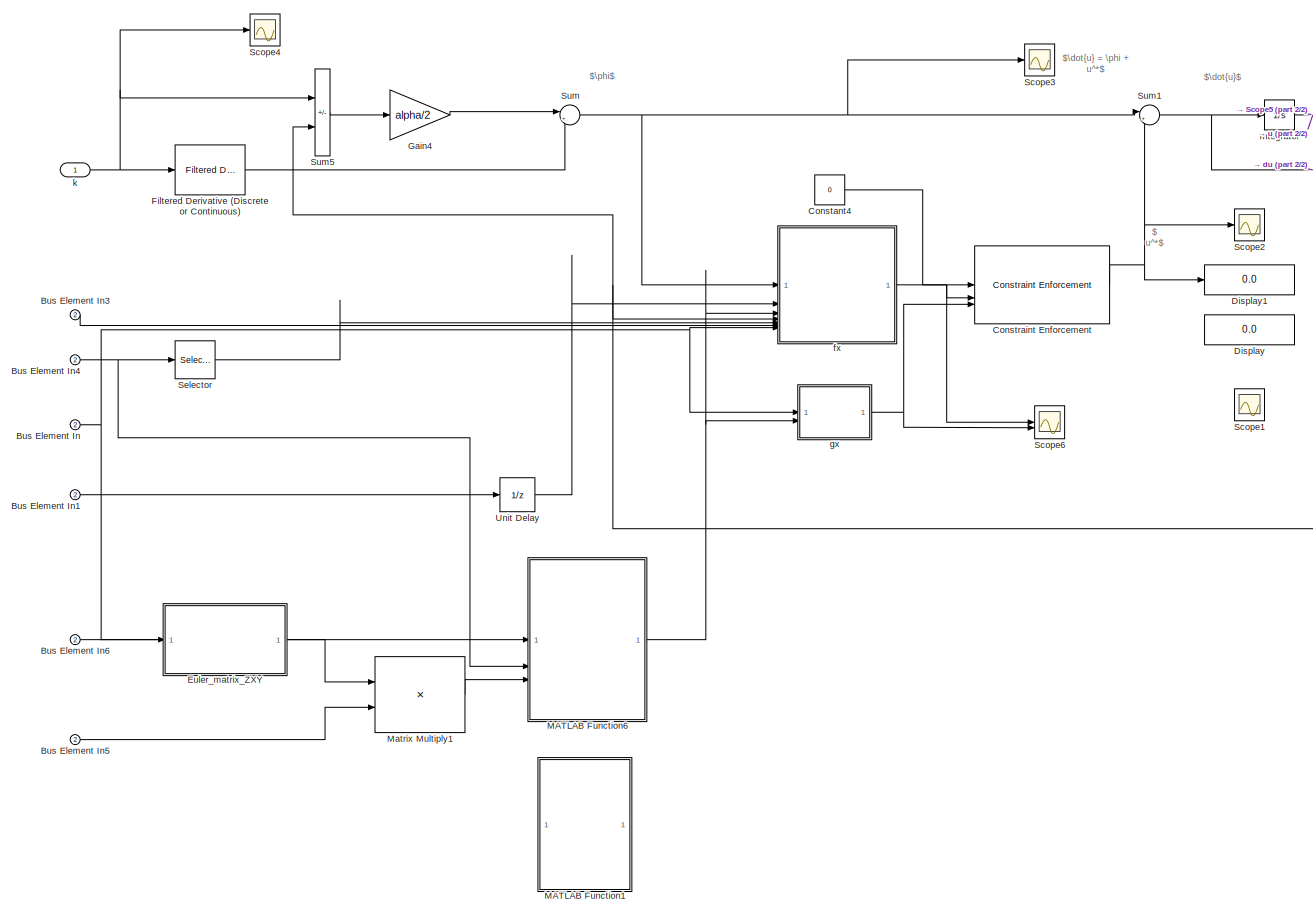
[diagram: I-CBF(推力修正型) - part 1/2, most of the canvas]
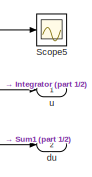
[diagram: I-CBF(推力修正型) - part 2/2, top right region]
BLOCK [SubSystem] I-CBF(推力修正型)
  Commented = on
BLOCK [Inport] I-CBF(推力修正型)/Bus Element In
  Port = 2
BLOCK [Inport] I-CBF(推力修正型)/Bus Element In1
  Port = 2
BLOCK [Inport] I-CBF(推力修正型)/Bus Element In3
  Port = 2
BLOCK [Inport] I-CBF(推力修正型)/Bus Element In4
  Port = 2
BLOCK [Inport] I-CBF(推力修正型)/Bus Element In5
  Port = 2
BLOCK [Inport] I-CBF(推力修正型)/Bus Element In6
  Port = 2
BLOCK [Constant] I-CBF(推力修正型)/Constant4
  Value = 0
BLOCK [Reference] I-CBF(推力修正型)/Constraint Enforcement  REF=slctrl_constraint/Constraint Enforcement
  LibrarySourceBlock = slctrlblks/Constraint Control/Constraint Enforcement
  SourceBlock = slctrl_constraint/Constraint Enforcement
  SourceType = Constraint Enforcement
BLOCK [Display] I-CBF(推力修正型)/Display
  Decimation = 1
BLOCK [Display] I-CBF(推力修正型)/Display1
  Decimation = 1
BLOCK [SubSystem] I-CBF(推力修正型)/Euler_matrix_ZXY
BLOCK [Constant] I-CBF(推力修正型)/Euler_matrix_ZXY/Constant
  Value = e2
BLOCK [Concatenate] I-CBF(推力修正型)/Euler_matrix_ZXY/Matrix Concatenate4
  ConcatenateDimension = 2
  Mode = Multidimensional array
  NumInputs = 3
BLOCK [SubSystem] I-CBF(推力修正型)/Euler_matrix_ZXY/Psi_*1
BLOCK [Trigonometry] I-CBF(推力修正型)/Euler_matrix_ZXY/Psi_*1/Cos
  Operator = cos
BLOCK [Trigonometry] I-CBF(推力修正型)/Euler_matrix_ZXY/Psi_*1/Cos1
  Operator = cos
BLOCK [Demux] I-CBF(推力修正型)/Euler_matrix_ZXY/Psi_*1/Demux
  Outputs = 3
BLOCK [Gain] I-CBF(推力修正型)/Euler_matrix_ZXY/Psi_*1/Gain
  Gain = -1
BLOCK [Outport] I-CBF(推力修正型)/Euler_matrix_ZXY/Psi_*1/Out1
BLOCK [Product] I-CBF(推力修正型)/Euler_matrix_ZXY/Psi_*1/Product
BLOCK [Product] I-CBF(推力修正型)/Euler_matrix_ZXY/Psi_*1/Product1
BLOCK [Trigonometry] I-CBF(推力修正型)/Euler_matrix_ZXY/Psi_*1/Sin
BLOCK [Trigonometry] I-CBF(推力修正型)/Euler_matrix_ZXY/Psi_*1/Sin1
BLOCK [Terminator] I-CBF(推力修正型)/Euler_matrix_ZXY/Psi_*1/Terminator
BLOCK [Concatenate] I-CBF(推力修正型)/Euler_matrix_ZXY/Psi_*1/Vector Concatenate
  NumInputs = 3
BLOCK [Inport] I-CBF(推力修正型)/Euler_matrix_ZXY/Psi_*1/eta
BLOCK [SubSystem] I-CBF(推力修正型)/Euler_matrix_ZXY/Psi_*2
BLOCK [Constant] I-CBF(推力修正型)/Euler_matrix_ZXY/Psi_*2/Constant
  Value = 0
BLOCK [Trigonometry] I-CBF(推力修正型)/Euler_matrix_ZXY/Psi_*2/Cos
  Operator = cos
BLOCK [Demux] I-CBF(推力修正型)/Euler_matrix_ZXY/Psi_*2/Demux
  Outputs = 3
BLOCK [Gain] I-CBF(推力修正型)/Euler_matrix_ZXY/Psi_*2/Gain
  Gain = -1
BLOCK [Outport] I-CBF(推力修正型)/Euler_matrix_ZXY/Psi_*2/Out1
BLOCK [Trigonometry] I-CBF(推力修正型)/Euler_matrix_ZXY/Psi_*2/Sin
BLOCK [Terminator] I-CBF(推力修正型)/Euler_matrix_ZXY/Psi_*2/Terminator
BLOCK [Terminator] I-CBF(推力修正型)/Euler_matrix_ZXY/Psi_*2/Terminator1
BLOCK [Concatenate] I-CBF(推力修正型)/Euler_matrix_ZXY/Psi_*2/Vector Concatenate
  NumInputs = 3
BLOCK [Inport] I-CBF(推力修正型)/Euler_matrix_ZXY/Psi_*2/eta
BLOCK [Inport] I-CBF(推力修正型)/Euler_matrix_ZXY/eta
BLOCK [Outport] I-CBF(推力修正型)/Euler_matrix_ZXY/オイラー角逆行列Ψ(η)
  VectorParamsAs1DForOutWhenUnconnected = off
BLOCK [Reference] I-CBF(推力修正型)/Filtered Derivative (Discrete or Continuous)  REF=eeGeneralControl/Filtered Derivative
(Discrete or Continuous)
  LibrarySourceBlock = ee_sl_lib/General Control/Filtered Derivative\n(Discrete or Continuous)
  SourceBlock = eeGeneralControl/Filtered Derivative\n(Discrete or Continuous)
  SourceType = Filtered Derivative (Discrete or Continuous)
BLOCK [Gain] I-CBF(推力修正型)/Gain4
  Gain = alpha/2
BLOCK [Integrator] I-CBF(推力修正型)/Integrator
BLOCK [SubSystem] I-CBF(推力修正型)/MATLAB Function1
  Commented = on
  ErrorFcn = Stateflow.Translate.translate
  PermitHierarchicalResolution = ExplicitOnly
  SFBlockType = MATLAB Function
  TreatAsAtomicUnit = on
BLOCK [Demux] I-CBF(推力修正型)/MATLAB Function1/ Demux 
  Outputs = 1
BLOCK [S-Function] I-CBF(推力修正型)/MATLAB Function1/ SFunction 
  EnableBusSupport = on
  FunctionName = sf_sfun
  Parameters = g,k_3,m
  PortCounts = [5 2]
  SFcnIsStateOwnerBlock = off
  SFunctionDeploymentMode = off
  Tag = Stateflow S-Function 2
BLOCK [Terminator] I-CBF(推力修正型)/MATLAB Function1/ Terminator 
BLOCK [Outport] I-CBF(推力修正型)/MATLAB Function1/F
BLOCK [Inport] I-CBF(推力修正型)/MATLAB Function1/R
BLOCK [Inport] I-CBF(推力修正型)/MATLAB Function1/du_3
  Port = 5
BLOCK [Inport] I-CBF(推力修正型)/MATLAB Function1/omega
  Port = 3
BLOCK [Inport] I-CBF(推力修正型)/MATLAB Function1/u_3
  Port = 4
BLOCK [Inport] I-CBF(推力修正型)/MATLAB Function1/v
  Port = 2
BLOCK [SubSystem] I-CBF(推力修正型)/MATLAB Function6
  ErrorFcn = Stateflow.Translate.translate
  PermitHierarchicalResolution = ExplicitOnly
  SFBlockType = MATLAB Function
  TreatAsAtomicUnit = on
BLOCK [Demux] I-CBF(推力修正型)/MATLAB Function6/ Demux 
  Outputs = 1
BLOCK [S-Function] I-CBF(推力修正型)/MATLAB Function6/ SFunction 
  EnableBusSupport = on
  FunctionName = sf_sfun
  Parameters = g
  PortCounts = [3 2]
  SFcnIsStateOwnerBlock = off
  SFunctionDeploymentMode = off
  Tag = Stateflow S-Function 1
BLOCK [Terminator] I-CBF(推力修正型)/MATLAB Function6/ Terminator 
BLOCK [Inport] I-CBF(推力修正型)/MATLAB Function6/R
BLOCK [Outport] I-CBF(推力修正型)/MATLAB Function6/f
BLOCK [Inport] I-CBF(推力修正型)/MATLAB Function6/omega
  Port = 3
BLOCK [Inport] I-CBF(推力修正型)/MATLAB Function6/v
  Port = 2
BLOCK [Product] I-CBF(推力修正型)/Matrix Multiply1
  Multiplication = Matrix(*)
BLOCK [Scope] I-CBF(推力修正型)/Scope1
  Floating = off
  NumInputPorts = 1
  ScopeSpecificationString = Simulink.scopes.TimeScopeBlockCfg('CurrentConfiguration', extmgr.ConfigurationSet(extmgr.Configuration('Core','General UI',true),extmgr.Configuration('Core','Source UI',true),extmgr.Configuration('Sources','WiredSimulink',true,'DataLoggingVariableName','ScopeData2'),extmgr.Configuration('Visuals','Time Domain',true,'SerializedDisplays',{struct('MinYLimReal','0.9','MaxYLimReal','1.1','YLabelReal','...<+1426ch>
BLOCK [Scope] I-CBF(推力修正型)/Scope2
  Floating = off
  NumInputPorts = 1
  ScopeSpecificationString = Simulink.scopes.TimeScopeBlockCfg('CurrentConfiguration', extmgr.ConfigurationSet(extmgr.Configuration('Core','General UI',true),extmgr.Configuration('Core','Source UI',true),extmgr.Configuration('Sources','WiredSimulink',true,'DataLoggingVariableName','ScopeData1'),extmgr.Configuration('Visuals','Time Domain',true,'SerializedDisplays',{struct('MinYLimReal','-0.65133','MaxYLimReal','0.07237','YLab...<+1440ch>
BLOCK [Scope] I-CBF(推力修正型)/Scope3
  Floating = off
  NumInputPorts = 1
  ScopeSpecificationString = Simulink.scopes.TimeScopeBlockCfg('CurrentConfiguration', extmgr.ConfigurationSet(extmgr.Configuration('Core','General UI',true),extmgr.Configuration('Core','Source UI',true),extmgr.Configuration('Sources','WiredSimulink',true,'DataLoggingVariableName','ScopeData2'),extmgr.Configuration('Visuals','Time Domain',true,'SerializedDisplays',{struct('MinYLimReal','-0.1499','MaxYLimReal','0.97518','YLabe...<+1402ch>
BLOCK [Scope] I-CBF(推力修正型)/Scope4
  Floating = off
  NumInputPorts = 1
  ScopeSpecificationString = Simulink.scopes.TimeScopeBlockCfg('CurrentConfiguration', extmgr.ConfigurationSet(extmgr.Configuration('Core','General UI',true),extmgr.Configuration('Core','Source UI',true),extmgr.Configuration('Sources','WiredSimulink',true,'DataLoggingVariableName','ScopeData3'),extmgr.Configuration('Visuals','Time Domain',true,'SerializedDisplays',{struct('MinYLimReal','0.15009','MaxYLimReal','0.62001','YLabe...<+1387ch>
BLOCK [Scope] I-CBF(推力修正型)/Scope5
  Floating = off
  NumInputPorts = 1
  ScopeSpecificationString = Simulink.scopes.TimeScopeBlockCfg('CurrentConfiguration', extmgr.ConfigurationSet(extmgr.Configuration('Core','General UI',true),extmgr.Configuration('Core','Source UI',true),extmgr.Configuration('Sources','WiredSimulink',true,'DataLoggingVariableName','ScopeData4'),extmgr.Configuration('Visuals','Time Domain',true,'SerializedDisplays',{struct('MinYLimReal','-0.03593','MaxYLimReal','0.32336','YLab...<+1409ch>
BLOCK [Scope] I-CBF(推力修正型)/Scope6
  Floating = off
  NumInputPorts = 2
  ScopeSpecificationString = Simulink.scopes.TimeScopeBlockCfg('CurrentConfiguration', extmgr.ConfigurationSet(extmgr.Configuration('Core','General UI',true),extmgr.Configuration('Core','Source UI',true),extmgr.Configuration('Sources','WiredSimulink',true,'DataLoggingVariableName','ScopeData5'),extmgr.Configuration('Visuals','Time Domain',true,'SerializedDisplays',{struct('MinYLimReal','-2.94301','MaxYLimReal','1.45525','YLab...<+1418ch>
BLOCK [Selector] I-CBF(推力修正型)/Selector
  IndexOptions = Index vector (dialog)
  Indices = 3
  InputPortWidth = 3
  OutputSizes = 1
BLOCK [Sum] I-CBF(推力修正型)/Sum
  Inputs = |++
BLOCK [Sum] I-CBF(推力修正型)/Sum1
  Inputs = |++
BLOCK [Sum] I-CBF(推力修正型)/Sum5
  IconShape = rectangular
  Inputs = +-
BLOCK [UnitDelay] I-CBF(推力修正型)/Unit Delay
  HasFrameUpgradeWarning = on
  SampleTime = -1
BLOCK [Outport] I-CBF(推力修正型)/du
  Port = 2
BLOCK [SubSystem] I-CBF(推力修正型)/fx
BLOCK [Constant] I-CBF(推力修正型)/fx/Constant
  Value = g
BLOCK [Constant] I-CBF(推力修正型)/fx/Constant1
  Value = m
BLOCK [Constant] I-CBF(推力修正型)/fx/Constant2
  Value = z_dot_max
BLOCK [Demux] I-CBF(推力修正型)/fx/Demux
  Outputs = 3
BLOCK [Product] I-CBF(推力修正型)/fx/Divide
  Inputs = */
BLOCK [SubSystem] I-CBF(推力修正型)/fx/Elements of Rotation Matrix
BLOCK [Constant] I-CBF(推力修正型)/fx/Elements of Rotation Matrix/Constant
  Value = e3
BLOCK [Constant] I-CBF(推力修正型)/fx/Elements of Rotation Matrix/Constant1
  Value = e2
BLOCK [Constant] I-CBF(推力修正型)/fx/Elements of Rotation Matrix/Constant2
  Value = e3
BLOCK [Display] I-CBF(推力修正型)/fx/Elements of Rotation Matrix/Display1
  Decimation = 1
BLOCK [Display] I-CBF(推力修正型)/fx/Elements of Rotation Matrix/Display2
  Decimation = 1
BLOCK [Product] I-CBF(推力修正型)/fx/Elements of Rotation Matrix/Matrix Multiply
  Multiplication = Matrix(*)
BLOCK [Product] I-CBF(推力修正型)/fx/Elements of Rotation Matrix/Matrix Multiply1
  Multiplication = Matrix(*)
BLOCK [Product] I-CBF(推力修正型)/fx/Elements of Rotation Matrix/Matrix Multiply2
  Multiplication = Matrix(*)
BLOCK [Mux] I-CBF(推力修正型)/fx/Elements of Rotation Matrix/Mux
  DisplayOption = bar
  Inputs = 2
BLOCK [Inport] I-CBF(推力修正型)/fx/Elements of Rotation Matrix/R
BLOCK [Math] I-CBF(推力修正型)/fx/Elements of Rotation Matrix/Transpose
  Operator = transpose
BLOCK [Math] I-CBF(推力修正型)/fx/Elements of Rotation Matrix/Transpose1
  Operator = transpose
BLOCK [Outport] I-CBF(推力修正型)/fx/Elements of Rotation Matrix/r_32
BLOCK [Outport] I-CBF(推力修正型)/fx/Elements of Rotation Matrix/r_33
  Port = 2
BLOCK [Gain] I-CBF(推力修正型)/fx/Gain
  Gain = k_3
BLOCK [Gain] I-CBF(推力修正型)/fx/Gain1
  Gain = gamma
BLOCK [Product] I-CBF(推力修正型)/fx/Product
BLOCK [Product] I-CBF(推力修正型)/fx/Product1
BLOCK [Product] I-CBF(推力修正型)/fx/Product2
BLOCK [Product] I-CBF(推力修正型)/fx/Product3
BLOCK [Inport] I-CBF(推力修正型)/fx/R
  Port = 7
BLOCK [Selector] I-CBF(推力修正型)/fx/Selector
  IndexOptions = Index vector (dialog)
  Indices = 3
  InputPortWidth = 3
  OutputSizes = 1
BLOCK [Sum] I-CBF(推力修正型)/fx/Subtract
  IconShape = rectangular
  Inputs = +-
BLOCK [Sum] I-CBF(推力修正型)/fx/Subtract1
  Inputs = --+-
BLOCK [Sum] I-CBF(推力修正型)/fx/Subtract2
  IconShape = rectangular
  Inputs = +-
BLOCK [Sum] I-CBF(推力修正型)/fx/Sum
  Inputs = |++
BLOCK [Sum] I-CBF(推力修正型)/fx/Sum1
  Inputs = -++
BLOCK [Inport] I-CBF(推力修正型)/fx/f
  Port = 3
BLOCK [Outport] I-CBF(推力修正型)/fx/fx
BLOCK [Inport] I-CBF(推力修正型)/fx/lambda_1
  Port = 2
BLOCK [Inport] I-CBF(推力修正型)/fx/p_dot
  Port = 6
BLOCK [Inport] I-CBF(推力修正型)/fx/phi
BLOCK [Inport] I-CBF(推力修正型)/fx/u
  Port = 4
BLOCK [Inport] I-CBF(推力修正型)/fx/v_3^b
  Port = 5
BLOCK [SubSystem] I-CBF(推力修正型)/gx
BLOCK [SubSystem] I-CBF(推力修正型)/gx/Elements of Rotation Matrix
BLOCK [Constant] I-CBF(推力修正型)/gx/Elements of Rotation Matrix/Constant
  Value = e3
BLOCK [Constant] I-CBF(推力修正型)/gx/Elements of Rotation Matrix/Constant2
  Value = e3
BLOCK [Display] I-CBF(推力修正型)/gx/Elements of Rotation Matrix/Display2
  Decimation = 1
BLOCK [Product] I-CBF(推力修正型)/gx/Elements of Rotation Matrix/Matrix Multiply
  Multiplication = Matrix(*)
BLOCK [Product] I-CBF(推力修正型)/gx/Elements of Rotation Matrix/Matrix Multiply1
  Multiplication = Matrix(*)
BLOCK [Inport] I-CBF(推力修正型)/gx/Elements of Rotation Matrix/R
BLOCK [Math] I-CBF(推力修正型)/gx/Elements of Rotation Matrix/Transpose1
  Operator = transpose
BLOCK [Outport] I-CBF(推力修正型)/gx/Elements of Rotation Matrix/r_33
BLOCK [Product] I-CBF(推力修正型)/gx/Product
BLOCK [Inport] I-CBF(推力修正型)/gx/R
BLOCK [Selector] I-CBF(推力修正型)/gx/Selector
  IndexOptions = Index vector (dialog)
  Indices = 1
  InputPortWidth = 3
  OutputSizes = 1
BLOCK [Inport] I-CBF(推力修正型)/gx/f
  Port = 2
BLOCK [Outport] I-CBF(推力修正型)/gx/gx
BLOCK [Inport] I-CBF(推力修正型)/k
BLOCK [Outport] I-CBF(推力修正型)/u
BLOCK [BusSelector] I-CBF/Bus Selector
  NameLocation = top
  OutputSignals = translation.position,translation.velocity,translation.acceleration,rotation.R,translation.lambda_1
BLOCK [Constant] I-CBF/Constant
  Value = 0
BLOCK [Constant] I-CBF/Constant1
  Value = 0
BLOCK [Constant] I-CBF/Constant4
  Value = 0
BLOCK [Reference] I-CBF/Constraint Enforcement1  REF=slctrl_constraint/Constraint Enforcement
  LibrarySourceBlock = slctrlblks/Constraint Control/Constraint Enforcement
  SourceBlock = slctrl_constraint/Constraint Enforcement
  SourceType = Constraint Enforcement
BLOCK [Display] I-CBF/Display1
  Decimation = 1
BLOCK [Display] I-CBF/Display2
  Decimation = 1
BLOCK [Display] I-CBF/Display3
  Decimation = 1
BLOCK [Reference] I-CBF/Filtered Derivative (Discrete or Continuous)1  REF=eeGeneralControl/Filtered Derivative
(Discrete or Continuous)
  LibrarySourceBlock = ee_sl_lib/General Control/Filtered Derivative\n(Discrete or Continuous)
  SourceBlock = eeGeneralControl/Filtered Derivative\n(Discrete or Continuous)
  SourceType = Filtered Derivative (Discrete or Continuous)
BLOCK [Reference] I-CBF/Filtered Derivative (Discrete or Continuous)2  REF=eeGeneralControl/Filtered Derivative
(Discrete or Continuous)
  LibrarySourceBlock = ee_sl_lib/General Control/Filtered Derivative\n(Discrete or Continuous)
  SourceBlock = eeGeneralControl/Filtered Derivative\n(Discrete or Continuous)
  SourceType = Filtered Derivative (Discrete or Continuous)
BLOCK [Reference] I-CBF/Filtered Derivative (Discrete or Continuous)3  REF=eeGeneralControl/Filtered Derivative
(Discrete or Continuous)
  LibrarySourceBlock = ee_sl_lib/General Control/Filtered Derivative\n(Discrete or Continuous)
  SourceBlock = eeGeneralControl/Filtered Derivative\n(Discrete or Continuous)
  SourceType = Filtered Derivative (Discrete or Continuous)
BLOCK [Gain] I-CBF/Gain4
  Gain = alpha/2
BLOCK [Integrator] I-CBF/Integrator
  InitialCondition = 5
  InitialConditionSource = external
BLOCK [Reference] I-CBF/Low-Pass Filter (Discrete or Continuous)1  REF=eeGeneralControl/Low-Pass Filter
(Discrete or Continuous)
  SourceBlock = eeGeneralControl/Low-Pass Filter\n(Discrete or Continuous)
  SourceType = Low-Pass Filter (Discrete or Continuous)
BLOCK [Reference] I-CBF/Low-Pass Filter (Discrete or Continuous)2  REF=eeGeneralControl/Low-Pass Filter
(Discrete or Continuous)
  SourceBlock = eeGeneralControl/Low-Pass Filter\n(Discrete or Continuous)
  SourceType = Low-Pass Filter (Discrete or Continuous)
BLOCK [Reference] I-CBF/Low-Pass Filter (Discrete or Continuous)3  REF=eeGeneralControl/Low-Pass Filter
(Discrete or Continuous)
  SourceBlock = eeGeneralControl/Low-Pass Filter\n(Discrete or Continuous)
  SourceType = Low-Pass Filter (Discrete or Continuous)
BLOCK [SubSystem] I-CBF/MATLAB Function
  ErrorFcn = Stateflow.Translate.translate
  PermitHierarchicalResolution = ExplicitOnly
  SFBlockType = MATLAB Function
  TreatAsAtomicUnit = on
BLOCK [Demux] I-CBF/MATLAB Function/ Demux 
  Outputs = 1
BLOCK [S-Function] I-CBF/MATLAB Function/ SFunction 
  EnableBusSupport = on
  FunctionName = sf_sfun
  Parameters = f_max,gamma_e,gamma_u,gamma_x,gamma_x1,gamma_x2,m,p_dot_zmax,z_max
  PortCounts = [9 3]
  SFcnIsStateOwnerBlock = off
  SFunctionDeploymentMode = off
  Tag = Stateflow S-Function 5
BLOCK [Terminator] I-CBF/MATLAB Function/ Terminator 
BLOCK [Inport] I-CBF/MATLAB Function/R
  Port = 5
BLOCK [Inport] I-CBF/MATLAB Function/R_dot
  Port = 6
BLOCK [Outport] I-CBF/MATLAB Function/f
BLOCK [Outport] I-CBF/MATLAB Function/g
  Port = 2
BLOCK [Inport] I-CBF/MATLAB Function/lambda_1
  Port = 7
BLOCK [Inport] I-CBF/MATLAB Function/lambda_dot_1
  Port = 8
BLOCK [Inport] I-CBF/MATLAB Function/p
  Port = 2
BLOCK [Inport] I-CBF/MATLAB Function/p_ddot
  Port = 4
BLOCK [Inport] I-CBF/MATLAB Function/p_dot
  Port = 3
BLOCK [Inport] I-CBF/MATLAB Function/phi
BLOCK [Inport] I-CBF/MATLAB Function/u
  Port = 9
BLOCK [Mux] I-CBF/Mux
  DisplayOption = bar
  Inputs = 3
BLOCK [Scope] I-CBF/Scope1
  Floating = off
  NumInputPorts = 1
  ScopeSpecificationString = Simulink.scopes.TimeScopeBlockCfg('CurrentConfiguration', extmgr.ConfigurationSet(extmgr.Configuration('Core','General UI',true),extmgr.Configuration('Core','Source UI',true),extmgr.Configuration('Sources','WiredSimulink',true,'DataLoggingVariableName','ScopeData3'),extmgr.Configuration('Visuals','Time Domain',true,'SerializedDisplays',{struct('MinYLimReal','-53.52493','MaxYLimReal','529.87206','Y...<+1416ch>
BLOCK [Scope] I-CBF/Scope2
  Floating = off
  NumInputPorts = 1
  ScopeSpecificationString = Simulink.scopes.TimeScopeBlockCfg('CurrentConfiguration', extmgr.ConfigurationSet(extmgr.Configuration('Core','General UI',true),extmgr.Configuration('Core','Source UI',true),extmgr.Configuration('Sources','WiredSimulink',true,'DataLoggingVariableName','ScopeData5'),extmgr.Configuration('Visuals','Time Domain',true,'SerializedDisplays',{struct('MinYLimReal','-1.5606','MaxYLimReal','14.04538','YLab...<+1437ch>
BLOCK [Scope] I-CBF/Scope4
  Floating = off
  NumInputPorts = 1
  ScopeSpecificationString = Simulink.scopes.TimeScopeBlockCfg('CurrentConfiguration', extmgr.ConfigurationSet(extmgr.Configuration('Core','General UI',true),extmgr.Configuration('Core','Source UI',true),extmgr.Configuration('Sources','WiredSimulink',true,'DataLoggingVariableName','ScopeData10'),extmgr.Configuration('Visuals','Time Domain',true,'SerializedDisplays',{struct('MinYLimReal','-136.91069','MaxYLimReal','15.2123','Y...<+1480ch>
BLOCK [Selector] I-CBF/Selector
  IndexOptions = Index vector (dialog)
  Indices = 3
  InputPortWidth = 3
  OutputSizes = 1
BLOCK [Sum] I-CBF/Sum1
  Inputs = |++
BLOCK [Sum] I-CBF/Sum4
  Inputs = |++
BLOCK [Sum] I-CBF/Sum5
  IconShape = rectangular
  Inputs = +-
BLOCK [Inport] I-CBF/UAV_state
  Port = 2
BLOCK [Inport] I-CBF/k(p,t)
BLOCK [Outport] I-CBF/u
BLOCK [SubSystem] Linearlization of Rotation Dynamics
BLOCK [Inport] Linearlization of Rotation Dynamics/Bus Element In1
  Port = 2
BLOCK [Inport] Linearlization of Rotation Dynamics/Bus Element In2
  Port = 2
BLOCK [Inport] Linearlization of Rotation Dynamics/Bus Element In3
  Port = 2
BLOCK [Constant] Linearlization of Rotation Dynamics/Constant
  Value = J
  VectorParams1D = off
BLOCK [Constant] Linearlization of Rotation Dynamics/Constant1
  Value = e1
BLOCK [From] Linearlization of Rotation Dynamics/From1
  GotoTag = C
  TagVisibility = global
BLOCK [Product] Linearlization of Rotation Dynamics/Product
  Inputs = 3
  Multiplication = Matrix(*)
BLOCK [Product] Linearlization of Rotation Dynamics/Product1
  Inputs = /
  Multiplication = Matrix(*)
BLOCK [Product] Linearlization of Rotation Dynamics/Product2
  Inputs = 3
  Multiplication = Matrix(*)
BLOCK [Product] Linearlization of Rotation Dynamics/Product3
  Multiplication = Matrix(*)
BLOCK [Scope] Linearlization of Rotation Dynamics/Scope
  Floating = off
  NumInputPorts = 1
  ScopeSpecificationString = Simulink.scopes.TimeScopeBlockCfg('CurrentConfiguration', extmgr.ConfigurationSet(extmgr.Configuration('Core','General UI',true),extmgr.Configuration('Core','Source UI',true),extmgr.Configuration('Sources','WiredSimulink',true,'DataLoggingVariableName','ScopeData7'),extmgr.Configuration('Visuals','Time Domain',true,'SerializedDisplays',{struct('MinYLimReal','-419.32163','MaxYLimReal','74.77515','Y...<+1608ch>
BLOCK [Sum] Linearlization of Rotation Dynamics/Sum
  Inputs = |+++
BLOCK [Math] Linearlization of Rotation Dynamics/Transpose1
  Operator = transpose
BLOCK [UnitDelay] Linearlization of Rotation Dynamics/Unit Delay
  HasFrameUpgradeWarning = on
  SampleTime = -1
BLOCK [Outport] Linearlization of Rotation Dynamics/τ
BLOCK [Inport] Linearlization of Rotation Dynamics/τ~
BLOCK [SubSystem] Position Controller
BLOCK [Inport] Position Controller/Bus Element In
BLOCK [Inport] Position Controller/Bus Element In1
BLOCK [Constant] Position Controller/Constant
  Value = K_p
BLOCK [Inport] Position Controller/In Bus Element
  Port = 2
BLOCK [Product] Position Controller/Matrix Multiply
  Multiplication = Matrix(*)
BLOCK [Selector] Position Controller/Selector
  IndexOptions = Index vector (dialog)
  Indices = [2 3]
  InputPortWidth = 3
  OutputSizes = 1
BLOCK [Sum] Position Controller/Sum
  Inputs = |+-
BLOCK [Sum] Position Controller/Sum1
  Inputs = |++
BLOCK [Outport] Position Controller/w_0
BLOCK [VariantSource] Variant Source
BLOCK [VariantSource] Variant Source1
BLOCK [SubSystem] Velocity Feedback Controller
BLOCK [Inport] Velocity Feedback Controller/Bus Element In
  Port = 3
BLOCK [Inport] Velocity Feedback Controller/Bus Element In1
  Port = 3
BLOCK [Inport] Velocity Feedback Controller/Bus Element In2
  Port = 3
BLOCK [Inport] Velocity Feedback Controller/Bus Element In3
  Port = 3
BLOCK [Constant] Velocity Feedback Controller/Constant
  Value = 0
BLOCK [Constant] Velocity Feedback Controller/Constant1
  Value = 0
BLOCK [SubSystem] Velocity Feedback Controller/Euler_matrix_ZXY
BLOCK [Constant] Velocity Feedback Controller/Euler_matrix_ZXY/Constant
  Value = e2
BLOCK [Goto] Velocity Feedback Controller/Euler_matrix_ZXY/Goto
  GotoTag = euler_matrix_inv
  TagVisibility = global
BLOCK [Concatenate] Velocity Feedback Controller/Euler_matrix_ZXY/Matrix Concatenate4
  ConcatenateDimension = 2
  Mode = Multidimensional array
  NumInputs = 3
BLOCK [SubSystem] Velocity Feedback Controller/Euler_matrix_ZXY/Psi_*1
BLOCK [Trigonometry] Velocity Feedback Controller/Euler_matrix_ZXY/Psi_*1/Cos
  Operator = cos
BLOCK [Trigonometry] Velocity Feedback Controller/Euler_matrix_ZXY/Psi_*1/Cos1
  Operator = cos
BLOCK [Demux] Velocity Feedback Controller/Euler_matrix_ZXY/Psi_*1/Demux
  Outputs = 3
BLOCK [Gain] Velocity Feedback Controller/Euler_matrix_ZXY/Psi_*1/Gain
  Gain = -1
BLOCK [Outport] Velocity Feedback Controller/Euler_matrix_ZXY/Psi_*1/Out1
BLOCK [Product] Velocity Feedback Controller/Euler_matrix_ZXY/Psi_*1/Product
BLOCK [Product] Velocity Feedback Controller/Euler_matrix_ZXY/Psi_*1/Product1
BLOCK [Trigonometry] Velocity Feedback Controller/Euler_matrix_ZXY/Psi_*1/Sin
BLOCK [Trigonometry] Velocity Feedback Controller/Euler_matrix_ZXY/Psi_*1/Sin1
BLOCK [Terminator] Velocity Feedback Controller/Euler_matrix_ZXY/Psi_*1/Terminator
BLOCK [Concatenate] Velocity Feedback Controller/Euler_matrix_ZXY/Psi_*1/Vector Concatenate
  NumInputs = 3
BLOCK [Inport] Velocity Feedback Controller/Euler_matrix_ZXY/Psi_*1/eta
BLOCK [SubSystem] Velocity Feedback Controller/Euler_matrix_ZXY/Psi_*2
BLOCK [Constant] Velocity Feedback Controller/Euler_matrix_ZXY/Psi_*2/Constant
  Value = 0
BLOCK [Trigonometry] Velocity Feedback Controller/Euler_matrix_ZXY/Psi_*2/Cos
  Operator = cos
BLOCK [Demux] Velocity Feedback Controller/Euler_matrix_ZXY/Psi_*2/Demux
  Outputs = 3
BLOCK [Gain] Velocity Feedback Controller/Euler_matrix_ZXY/Psi_*2/Gain
  Gain = -1
BLOCK [Outport] Velocity Feedback Controller/Euler_matrix_ZXY/Psi_*2/Out1
BLOCK [Trigonometry] Velocity Feedback Controller/Euler_matrix_ZXY/Psi_*2/Sin
BLOCK [Terminator] Velocity Feedback Controller/Euler_matrix_ZXY/Psi_*2/Terminator
BLOCK [Terminator] Velocity Feedback Controller/Euler_matrix_ZXY/Psi_*2/Terminator1
BLOCK [Concatenate] Velocity Feedback Controller/Euler_matrix_ZXY/Psi_*2/Vector Concatenate
  NumInputs = 3
BLOCK [Inport] Velocity Feedback Controller/Euler_matrix_ZXY/Psi_*2/eta
BLOCK [Inport] Velocity Feedback Controller/Euler_matrix_ZXY/eta
BLOCK [Outport] Velocity Feedback Controller/Euler_matrix_ZXY/オイラー角逆行列Ψ(η)
  VectorParamsAs1DForOutWhenUnconnected = off
BLOCK [Outport] Velocity Feedback Controller/F^b
BLOCK [SubSystem] Velocity Feedback Controller/MATLAB Function6
  ErrorFcn = Stateflow.Translate.translate
  PermitHierarchicalResolution = ExplicitOnly
  SFBlockType = MATLAB Function
  TreatAsAtomicUnit = on
BLOCK [Demux] Velocity Feedback Controller/MATLAB Function6/ Demux 
  Outputs = 1
BLOCK [S-Function] Velocity Feedback Controller/MATLAB Function6/ SFunction 
  EnableBusSupport = on
  FunctionName = sf_sfun
  Parameters = g,k_3,m
  PortCounts = [5 2]
  SFcnIsStateOwnerBlock = off
  SFunctionDeploymentMode = off
  Tag = Stateflow S-Function 16
BLOCK [Terminator] Velocity Feedback Controller/MATLAB Function6/ Terminator 
BLOCK [Outport] Velocity Feedback Controller/MATLAB Function6/F
BLOCK [Inport] Velocity Feedback Controller/MATLAB Function6/R
BLOCK [Inport] Velocity Feedback Controller/MATLAB Function6/du_3
  Port = 5
BLOCK [Inport] Velocity Feedback Controller/MATLAB Function6/omega
  Port = 3
BLOCK [Inport] Velocity Feedback Controller/MATLAB Function6/u_3
  Port = 4
BLOCK [Inport] Velocity Feedback Controller/MATLAB Function6/v
  Port = 2
BLOCK [Product] Velocity Feedback Controller/Matrix Multiply
  Multiplication = Matrix(*)
BLOCK [Product] Velocity Feedback Controller/Matrix Multiply1
  Multiplication = Matrix(*)
BLOCK [Mux] Velocity Feedback Controller/Mux
  DisplayOption = bar
  Inputs = 3
BLOCK [Reshape] Velocity Feedback Controller/Reshape1
BLOCK [Scope] Velocity Feedback Controller/Scope
  Floating = off
  NumInputPorts = 1
  ScopeSpecificationString = Simulink.scopes.TimeScopeBlockCfg('CurrentConfiguration', extmgr.ConfigurationSet(extmgr.Configuration('Core','General UI',true),extmgr.Configuration('Core','Source UI',true),extmgr.Configuration('Sources','WiredSimulink',true,'DataLoggingVariableName','ScopeData3'),extmgr.Configuration('Visuals','Time Domain',true,'SerializedDisplays',{struct('MinYLimReal','-0.07892','MaxYLimReal','0.25373','YLab...<+1449ch>
BLOCK [Terminator] Velocity Feedback Controller/Terminator
BLOCK [Math] Velocity Feedback Controller/Transpose
  Operator = transpose
BLOCK [Inport] Velocity Feedback Controller/du
  Port = 2
BLOCK [Inport] Velocity Feedback Controller/u
BLOCK [SubSystem] Velocity Projection
BLOCK [Constant] Velocity Projection/Constant
  Value = [0;1]
  VectorParams1D = off
BLOCK [Reference] Velocity Projection/Filtered Derivative (Discrete or Continuous)2  REF=eeGeneralControl/Filtered Derivative
(Discrete or Continuous)
  LibrarySourceBlock = ee_sl_lib/General Control/Filtered Derivative\n(Discrete or Continuous)
  SourceBlock = eeGeneralControl/Filtered Derivative\n(Discrete or Continuous)
  SourceType = Filtered Derivative (Discrete or Continuous)
BLOCK [Inport] Velocity Projection/In Bus Element
  Port = 2
BLOCK [Product] Velocity Projection/Matrix Multiply
  Inputs = 3
  Multiplication = Matrix(*)
BLOCK [Math] Velocity Projection/Transpose
  Operator = transpose
BLOCK [Outport] Velocity Projection/v_3d^b
BLOCK [Outport] Velocity Projection/v_3d^b_dot
  Port = 2
BLOCK [Inport] Velocity Projection/w
BLOCK [SubSystem] dynamics
BLOCK [Outport] dynamics/Bus Element Out
BLOCK [Outport] dynamics/Bus Element Out1
BLOCK [BusSelector] dynamics/Bus Selector
  OutputSignals = angle
BLOCK [Inport] dynamics/F
BLOCK [Inport] dynamics/τ
  Port = 2
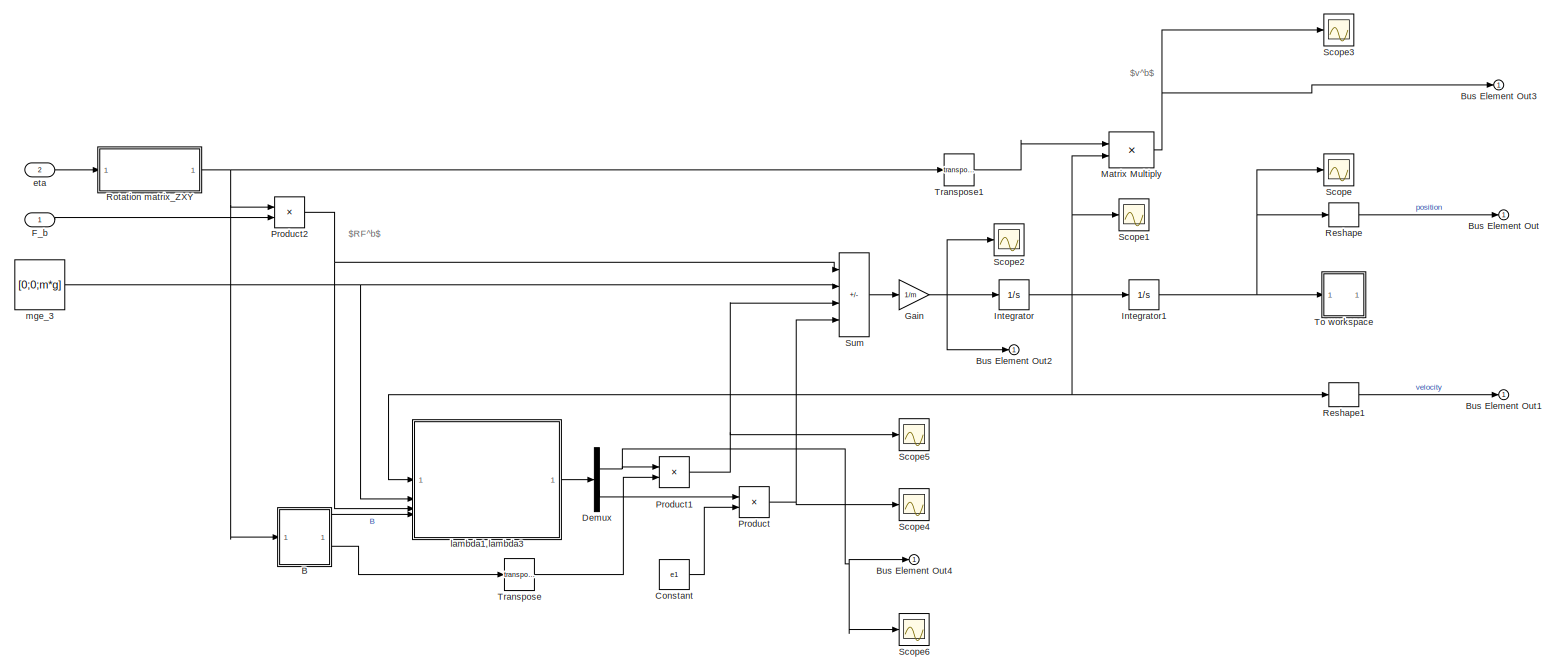
[diagram: dynamics/並進方向の運動方程式 - part 1/1, most of the canvas]
BLOCK [SubSystem] dynamics/並進方向の運動方程式
BLOCK [SubSystem] dynamics/並進方向の運動方程式/B
BLOCK [Outport] dynamics/並進方向の運動方程式/B/A
  Port = 2
BLOCK [Outport] dynamics/並進方向の運動方程式/B/B
BLOCK [Constant] dynamics/並進方向の運動方程式/B/Constant
  Value = e1
BLOCK [Concatenate] dynamics/並進方向の運動方程式/B/Matrix Concatenate
  Mode = Multidimensional array
BLOCK [Inport] dynamics/並進方向の運動方程式/B/R
BLOCK [SubSystem] dynamics/並進方向の運動方程式/B/Subsystem
BLOCK [Outport] dynamics/並進方向の運動方程式/B/Subsystem/A
BLOCK [Constant] dynamics/並進方向の運動方程式/B/Subsystem/Constant1
  Value = 0
BLOCK [Inport] dynamics/並進方向の運動方程式/B/Subsystem/R
BLOCK [Selector] dynamics/並進方向の運動方程式/B/Subsystem/Selector
  IndexOptions = Index vector (dialog),Index vector (dialog)
  Indices = [2],[2]
  InputPortWidth = 3
  NumberOfDimensions = 2
  OutputSizes = 1,1
BLOCK [Selector] dynamics/並進方向の運動方程式/B/Subsystem/Selector1
  IndexOptions = Index vector (dialog),Index vector (dialog)
  Indices = [3],[2]
  InputPortWidth = 3
  NumberOfDimensions = 2
  OutputSizes = 1,1
BLOCK [Math] dynamics/並進方向の運動方程式/B/Subsystem/Transpose
  Operator = transpose
BLOCK [Concatenate] dynamics/並進方向の運動方程式/B/Subsystem/Vector Concatenate
  NumInputs = 3
BLOCK [Math] dynamics/並進方向の運動方程式/B/Transpose1
  Operator = transpose
BLOCK [Outport] dynamics/並進方向の運動方程式/Bus Element Out
BLOCK [Outport] dynamics/並進方向の運動方程式/Bus Element Out1
BLOCK [Outport] dynamics/並進方向の運動方程式/Bus Element Out2
BLOCK [Outport] dynamics/並進方向の運動方程式/Bus Element Out3
BLOCK [Outport] dynamics/並進方向の運動方程式/Bus Element Out4
BLOCK [Constant] dynamics/並進方向の運動方程式/Constant
  Value = e1
BLOCK [Demux] dynamics/並進方向の運動方程式/Demux
  Outputs = 2
BLOCK [Inport] dynamics/並進方向の運動方程式/F_b
BLOCK [Gain] dynamics/並進方向の運動方程式/Gain
  Gain = 1/m
BLOCK [Integrator] dynamics/並進方向の運動方程式/Integrator
  InitialCondition = p_dot_0
BLOCK [Integrator] dynamics/並進方向の運動方程式/Integrator1
  InitialCondition = p_0
BLOCK [Product] dynamics/並進方向の運動方程式/Matrix Multiply
  Multiplication = Matrix(*)
BLOCK [Product] dynamics/並進方向の運動方程式/Product
BLOCK [Product] dynamics/並進方向の運動方程式/Product1
BLOCK [Product] dynamics/並進方向の運動方程式/Product2
  Multiplication = Matrix(*)
BLOCK [Reshape] dynamics/並進方向の運動方程式/Reshape
BLOCK [Reshape] dynamics/並進方向の運動方程式/Reshape1
BLOCK [SubSystem] dynamics/並進方向の運動方程式/Rotation matrix_ZXY
BLOCK [Concatenate] dynamics/並進方向の運動方程式/Rotation matrix_ZXY/Matrix Concatenate
  ConcatenateDimension = 2
  Mode = Multidimensional array
  NumInputs = 3
BLOCK [Outport] dynamics/並進方向の運動方程式/Rotation matrix_ZXY/R
  VectorParamsAs1DForOutWhenUnconnected = off
BLOCK [SubSystem] dynamics/並進方向の運動方程式/Rotation matrix_ZXY/R1
BLOCK [Trigonometry] dynamics/並進方向の運動方程式/Rotation matrix_ZXY/R1/Cos
  Operator = cos
BLOCK [Trigonometry] dynamics/並進方向の運動方程式/Rotation matrix_ZXY/R1/Cos1
  Operator = cos
BLOCK [Trigonometry] dynamics/並進方向の運動方程式/Rotation matrix_ZXY/R1/Cos2
  Operator = cos
BLOCK [Demux] dynamics/並進方向の運動方程式/Rotation matrix_ZXY/R1/Demux
  Outputs = 3
BLOCK [Gain] dynamics/並進方向の運動方程式/Rotation matrix_ZXY/R1/Gain
  Gain = -1
BLOCK [Inport] dynamics/並進方向の運動方程式/Rotation matrix_ZXY/R1/In1
BLOCK [Concatenate] dynamics/並進方向の運動方程式/Rotation matrix_ZXY/R1/Matrix Concatenate
  NumInputs = 3
BLOCK [Outport] dynamics/並進方向の運動方程式/Rotation matrix_ZXY/R1/Out1
  VectorParamsAs1DForOutWhenUnconnected = off
BLOCK [Product] dynamics/並進方向の運動方程式/Rotation matrix_ZXY/R1/Product
BLOCK [Product] dynamics/並進方向の運動方程式/Rotation matrix_ZXY/R1/Product1
  Inputs = 3
BLOCK [Product] dynamics/並進方向の運動方程式/Rotation matrix_ZXY/R1/Product2
BLOCK [Product] dynamics/並進方向の運動方程式/Rotation matrix_ZXY/R1/Product3
  Inputs = 3
BLOCK [Product] dynamics/並進方向の運動方程式/Rotation matrix_ZXY/R1/Product4
BLOCK [Trigonometry] dynamics/並進方向の運動方程式/Rotation matrix_ZXY/R1/Sin
BLOCK [Trigonometry] dynamics/並進方向の運動方程式/Rotation matrix_ZXY/R1/Sin1
BLOCK [Trigonometry] dynamics/並進方向の運動方程式/Rotation matrix_ZXY/R1/Sin2
BLOCK [Sum] dynamics/並進方向の運動方程式/Rotation matrix_ZXY/R1/Sum
  Inputs = |+-
BLOCK [Sum] dynamics/並進方向の運動方程式/Rotation matrix_ZXY/R1/Sum1
  Inputs = |++
BLOCK [SubSystem] dynamics/並進方向の運動方程式/Rotation matrix_ZXY/R2
BLOCK [Trigonometry] dynamics/並進方向の運動方程式/Rotation matrix_ZXY/R2/Cos1
  Operator = cos
BLOCK [Trigonometry] dynamics/並進方向の運動方程式/Rotation matrix_ZXY/R2/Cos2
  Operator = cos
BLOCK [Demux] dynamics/並進方向の運動方程式/Rotation matrix_ZXY/R2/Demux
  Outputs = 3
BLOCK [Gain] dynamics/並進方向の運動方程式/Rotation matrix_ZXY/R2/Gain
  Gain = -1
BLOCK [Inport] dynamics/並進方向の運動方程式/Rotation matrix_ZXY/R2/In1
BLOCK [Concatenate] dynamics/並進方向の運動方程式/Rotation matrix_ZXY/R2/Matrix Concatenate
  NumInputs = 3
BLOCK [Outport] dynamics/並進方向の運動方程式/Rotation matrix_ZXY/R2/Out1
  VectorParamsAs1DForOutWhenUnconnected = off
BLOCK [Product] dynamics/並進方向の運動方程式/Rotation matrix_ZXY/R2/Product
BLOCK [Product] dynamics/並進方向の運動方程式/Rotation matrix_ZXY/R2/Product1
BLOCK [Trigonometry] dynamics/並進方向の運動方程式/Rotation matrix_ZXY/R2/Sin1
BLOCK [Trigonometry] dynamics/並進方向の運動方程式/Rotation matrix_ZXY/R2/Sin2
BLOCK [Terminator] dynamics/並進方向の運動方程式/Rotation matrix_ZXY/R2/Terminator
BLOCK [SubSystem] dynamics/並進方向の運動方程式/Rotation matrix_ZXY/R3
BLOCK [Trigonometry] dynamics/並進方向の運動方程式/Rotation matrix_ZXY/R3/Cos1
  Operator = cos
BLOCK [Trigonometry] dynamics/並進方向の運動方程式/Rotation matrix_ZXY/R3/Cos2
  Operator = cos
BLOCK [Trigonometry] dynamics/並進方向の運動方程式/Rotation matrix_ZXY/R3/Cos3
  Operator = cos
BLOCK [Demux] dynamics/並進方向の運動方程式/Rotation matrix_ZXY/R3/Demux
  Outputs = 3
BLOCK [Inport] dynamics/並進方向の運動方程式/Rotation matrix_ZXY/R3/In1
BLOCK [Concatenate] dynamics/並進方向の運動方程式/Rotation matrix_ZXY/R3/Matrix Concatenate
  NumInputs = 3
BLOCK [Outport] dynamics/並進方向の運動方程式/Rotation matrix_ZXY/R3/Out1
  VectorParamsAs1DForOutWhenUnconnected = off
BLOCK [Product] dynamics/並進方向の運動方程式/Rotation matrix_ZXY/R3/Product
BLOCK [Product] dynamics/並進方向の運動方程式/Rotation matrix_ZXY/R3/Product1
  Inputs = 3
BLOCK [Product] dynamics/並進方向の運動方程式/Rotation matrix_ZXY/R3/Product2
BLOCK [Product] dynamics/並進方向の運動方程式/Rotation matrix_ZXY/R3/Product3
  Inputs = 3
BLOCK [Product] dynamics/並進方向の運動方程式/Rotation matrix_ZXY/R3/Product4
BLOCK [Trigonometry] dynamics/並進方向の運動方程式/Rotation matrix_ZXY/R3/Sin1
BLOCK [Trigonometry] dynamics/並進方向の運動方程式/Rotation matrix_ZXY/R3/Sin2
BLOCK [Trigonometry] dynamics/並進方向の運動方程式/Rotation matrix_ZXY/R3/Sin3
BLOCK [Sum] dynamics/並進方向の運動方程式/Rotation matrix_ZXY/R3/Sum
  Inputs = |++
BLOCK [Sum] dynamics/並進方向の運動方程式/Rotation matrix_ZXY/R3/Sum1
  Inputs = |+-
BLOCK [Inport] dynamics/並進方向の運動方程式/Rotation matrix_ZXY/eta
BLOCK [Scope] dynamics/並進方向の運動方程式/Scope
  Floating = off
  NumInputPorts = 1
  ScopeSpecificationString = Simulink.scopes.TimeScopeBlockCfg('CurrentConfiguration', extmgr.ConfigurationSet(extmgr.Configuration('Core','General UI',true),extmgr.Configuration('Core','Source UI',true),extmgr.Configuration('Sources','WiredSimulink',true,'DataLoggingVariableName','ScopeData1'),extmgr.Configuration('Visuals','Time Domain',true,'SerializedDisplays',{struct('MinYLimReal','-1.40418','MaxYLimReal','2.71458','YLab...<+1554ch>
BLOCK [Scope] dynamics/並進方向の運動方程式/Scope1
  Floating = off
  NumInputPorts = 1
  ScopeSpecificationString = Simulink.scopes.TimeScopeBlockCfg('CurrentConfiguration', extmgr.ConfigurationSet(extmgr.Configuration('Core','General UI',true),extmgr.Configuration('Core','Source UI',true),extmgr.Configuration('Sources','WiredSimulink',true,'DataLoggingVariableName','ScopeData2'),extmgr.Configuration('Visuals','Time Domain',true,'SerializedDisplays',{struct('MinYLimReal','-0.05539','MaxYLimReal','0.49852','YLab...<+1442ch>
BLOCK [Scope] dynamics/並進方向の運動方程式/Scope2
  Floating = off
  NumInputPorts = 1
  ScopeSpecificationString = Simulink.scopes.TimeScopeBlockCfg('CurrentConfiguration', extmgr.ConfigurationSet(extmgr.Configuration('Core','General UI',true),extmgr.Configuration('Core','Source UI',true),extmgr.Configuration('Sources','WiredSimulink',true,'DataLoggingVariableName','ScopeData2'),extmgr.Configuration('Visuals','Time Domain',true,'SerializedDisplays',{struct('MinYLimReal','-0.43435','MaxYLimReal','2.27048','YLab...<+1451ch>
BLOCK [Scope] dynamics/並進方向の運動方程式/Scope3
  Floating = off
  NumInputPorts = 1
  ScopeSpecificationString = Simulink.scopes.TimeScopeBlockCfg('CurrentConfiguration', extmgr.ConfigurationSet(extmgr.Configuration('Core','General UI',true),extmgr.Configuration('Core','Source UI',true),extmgr.Configuration('Sources','WiredSimulink',true,'DataLoggingVariableName','ScopeData1'),extmgr.Configuration('Visuals','Time Domain',true,'SerializedDisplays',{struct('MinYLimReal','-0.06765','MaxYLimReal','0.25175','YLab...<+1503ch>
BLOCK [Scope] dynamics/並進方向の運動方程式/Scope4
  Floating = off
  NumInputPorts = 1
  ScopeSpecificationString = Simulink.scopes.TimeScopeBlockCfg('CurrentConfiguration', extmgr.ConfigurationSet(extmgr.Configuration('Core','General UI',true),extmgr.Configuration('Core','Source UI',true),extmgr.Configuration('Sources','WiredSimulink',true,'DataLoggingVariableName','ScopeData4'),extmgr.Configuration('Visuals','Time Domain',true,'SerializedDisplays',{struct('MinYLimReal','-0.20712','MaxYLimReal','1.8641','YLabe...<+1535ch>
BLOCK [Scope] dynamics/並進方向の運動方程式/Scope5
  Floating = off
  NumInputPorts = 1
  ScopeSpecificationString = Simulink.scopes.TimeScopeBlockCfg('CurrentConfiguration', extmgr.ConfigurationSet(extmgr.Configuration('Core','General UI',true),extmgr.Configuration('Core','Source UI',true),extmgr.Configuration('Sources','WiredSimulink',true,'DataLoggingVariableName','ScopeData5'),extmgr.Configuration('Visuals','Time Domain',true,'SerializedDisplays',{struct('MinYLimReal','-2.19863','MaxYLimReal','4.09376','YLab...<+1472ch>
BLOCK [Scope] dynamics/並進方向の運動方程式/Scope6
  Floating = off
  NumInputPorts = 1
  ScopeSpecificationString = Simulink.scopes.TimeScopeBlockCfg('CurrentConfiguration', extmgr.ConfigurationSet(extmgr.Configuration('Core','General UI',true),extmgr.Configuration('Core','Source UI',true),extmgr.Configuration('Sources','WiredSimulink',true,'DataLoggingVariableName','ScopeData4'),extmgr.Configuration('Visuals','Time Domain',true,'SerializedDisplays',{struct('MinYLimReal','-0.47538','MaxYLimReal','4.27844','YLab...<+1445ch>
BLOCK [Sum] dynamics/並進方向の運動方程式/Sum
  IconShape = rectangular
  Inputs = +---
BLOCK [SubSystem] dynamics/並進方向の運動方程式/To workspace
BLOCK [Clock] dynamics/並進方向の運動方程式/To workspace/Clock
BLOCK [Selector] dynamics/並進方向の運動方程式/To workspace/Selector
  IndexOptions = Index vector (dialog)
  Indices = 1
  InputPortWidth = 3
  OutputSizes = 1
BLOCK [Selector] dynamics/並進方向の運動方程式/To workspace/Selector1
  IndexOptions = Index vector (dialog)
  Indices = 2
  InputPortWidth = 3
  OutputSizes = 1
BLOCK [Selector] dynamics/並進方向の運動方程式/To workspace/Selector2
  IndexOptions = Index vector (dialog)
  Indices = 3
  InputPortWidth = 3
  OutputSizes = 1
BLOCK [ToWorkspace] dynamics/並進方向の運動方程式/To workspace/To Workspace1
  FixptAsFi = on
  MaxDataPoints = inf
  SampleTime = -1
  Save2DSignal = 2-D array (concatenate along first dimension)
  VariableName = drone_ySm
BLOCK [ToWorkspace] dynamics/並進方向の運動方程式/To workspace/To Workspace10
  FixptAsFi = on
  MaxDataPoints = inf
  SampleTime = -1
  Save2DSignal = 2-D array (concatenate along first dimension)
  VariableName = drone_xSm
BLOCK [ToWorkspace] dynamics/並進方向の運動方程式/To workspace/To Workspace2
  FixptAsFi = on
  MaxDataPoints = inf
  SampleTime = -1
  Save2DSignal = 2-D array (concatenate along first dimension)
  VariableName = drone_zSm
BLOCK [ToWorkspace] dynamics/並進方向の運動方程式/To workspace/To Workspace8
  FixptAsFi = on
  MaxDataPoints = inf
  SampleTime = -1
  Save2DSignal = 2-D array (concatenate along first dimension)
  VariableName = time
BLOCK [Inport] dynamics/並進方向の運動方程式/To workspace/xi_wb
BLOCK [Math] dynamics/並進方向の運動方程式/Transpose
  Operator = transpose
BLOCK [Math] dynamics/並進方向の運動方程式/Transpose1
  Operator = transpose
BLOCK [Inport] dynamics/並進方向の運動方程式/eta
  Port = 2
BLOCK [SubSystem] dynamics/並進方向の運動方程式/lambda1,lambda3
BLOCK [Sum] dynamics/並進方向の運動方程式/lambda1,lambda3/Add
  IconShape = rectangular
  Inputs = +-+
BLOCK [Inport] dynamics/並進方向の運動方程式/lambda1,lambda3/B
  Port = 4
BLOCK [Derivative] dynamics/並進方向の運動方程式/lambda1,lambda3/Derivative
BLOCK [Product] dynamics/並進方向の運動方程式/lambda1,lambda3/Divide2
  Inputs = /*
  Multiplication = Matrix(*)
BLOCK [Gain] dynamics/並進方向の運動方程式/lambda1,lambda3/Gain
  Gain = m
BLOCK [Product] dynamics/並進方向の運動方程式/lambda1,lambda3/MatrixMultiply
  Multiplication = Matrix(*)
BLOCK [Product] dynamics/並進方向の運動方程式/lambda1,lambda3/MatrixMultiply1
  Multiplication = Matrix(*)
BLOCK [Product] dynamics/並進方向の運動方程式/lambda1,lambda3/MatrixMultiply2
  Multiplication = Matrix(*)
BLOCK [Product] dynamics/並進方向の運動方程式/lambda1,lambda3/MatrixMultiply3
  Multiplication = Matrix(*)
BLOCK [Inport] dynamics/並進方向の運動方程式/lambda1,lambda3/RF^b
  Port = 3
BLOCK [Math] dynamics/並進方向の運動方程式/lambda1,lambda3/Transpose
  Operator = transpose
BLOCK [Outport] dynamics/並進方向の運動方程式/lambda1,lambda3/[lambda_1 lambda_2]^T
BLOCK [Inport] dynamics/並進方向の運動方程式/lambda1,lambda3/mge_3
  Port = 2
BLOCK [Inport] dynamics/並進方向の運動方程式/lambda1,lambda3/p_dot
BLOCK [Constant] dynamics/並進方向の運動方程式/mge_3
  Value = [0;0;m*g]
  VectorParams1D = off
BLOCK [SubSystem] dynamics/回転方向の運動方程式
BLOCK [Outport] dynamics/回転方向の運動方程式/Bus Element Out
BLOCK [Outport] dynamics/回転方向の運動方程式/Bus Element Out1
BLOCK [Outport] dynamics/回転方向の運動方程式/Bus Element Out2
BLOCK [Outport] dynamics/回転方向の運動方程式/Bus Element Out3
BLOCK [Outport] dynamics/回転方向の運動方程式/Bus Element Out4
BLOCK [Outport] dynamics/回転方向の運動方程式/Bus Element Out5
BLOCK [Outport] dynamics/回転方向の運動方程式/Bus Element Out6
BLOCK [SubSystem] dynamics/回転方向の運動方程式/C(η,η_dot)
BLOCK [Outport] dynamics/回転方向の運動方程式/C(η,η_dot)/C(eta,deta)
  VectorParamsAs1DForOutWhenUnconnected = off
BLOCK [Constant] dynamics/回転方向の運動方程式/C(η,η_dot)/Constant
  Value = J
  VectorParams1D = off
BLOCK [Constant] dynamics/回転方向の運動方程式/C(η,η_dot)/Constant1
  Value = J
  VectorParams1D = off
BLOCK [Derivative] dynamics/回転方向の運動方程式/C(η,η_dot)/Derivative
BLOCK [Goto] dynamics/回転方向の運動方程式/C(η,η_dot)/Goto
  GotoTag = C
  TagVisibility = global
BLOCK [Math] dynamics/回転方向の運動方程式/C(η,η_dot)/Math Function
  Operator = transpose
  SignedPower = on
BLOCK [Math] dynamics/回転方向の運動方程式/C(η,η_dot)/Math Function1
  Operator = transpose
  SignedPower = on
BLOCK [Product] dynamics/回転方向の運動方程式/C(η,η_dot)/Product
  Inputs = 4
  Multiplication = Matrix(*)
BLOCK [Product] dynamics/回転方向の運動方程式/C(η,η_dot)/Product1
  Inputs = 3
  Multiplication = Matrix(*)
BLOCK [Sum] dynamics/回転方向の運動方程式/C(η,η_dot)/Sum
  IconShape = rectangular
BLOCK [Inport] dynamics/回転方向の運動方程式/C(η,η_dot)/eta_dot
  Port = 2
BLOCK [SubSystem] dynamics/回転方向の運動方程式/C(η,η_dot)/skew
BLOCK [Reference] dynamics/回転方向の運動方程式/C(η,η_dot)/skew/3D wedge  REF=rbm3d/3D wedge
  SourceBlock = rbm3d/3D wedge
  SourceType = skew 2d
BLOCK [Product] dynamics/回転方向の運動方程式/C(η,η_dot)/skew/Product
  Multiplication = Matrix(*)
BLOCK [Inport] dynamics/回転方向の運動方程式/C(η,η_dot)/skew/eta_dot
  Port = 2
BLOCK [Outport] dynamics/回転方向の運動方程式/C(η,η_dot)/skew/skew(Ω)
  VectorParamsAs1DForOutWhenUnconnected = off
BLOCK [Inport] dynamics/回転方向の運動方程式/C(η,η_dot)/skew/Ψ(η)
BLOCK [Inport] dynamics/回転方向の運動方程式/C(η,η_dot)/Ψ(η)
BLOCK [Constant] dynamics/回転方向の運動方程式/Constant
  Value = e1
BLOCK [SubSystem] dynamics/回転方向の運動方程式/Euler_matrix_ZXY
BLOCK [Constant] dynamics/回転方向の運動方程式/Euler_matrix_ZXY/Constant
  Value = e2
BLOCK [Concatenate] dynamics/回転方向の運動方程式/Euler_matrix_ZXY/Matrix Concatenate4
  ConcatenateDimension = 2
  Mode = Multidimensional array
  NumInputs = 3
BLOCK [SubSystem] dynamics/回転方向の運動方程式/Euler_matrix_ZXY/Psi_*1
BLOCK [Trigonometry] dynamics/回転方向の運動方程式/Euler_matrix_ZXY/Psi_*1/Cos
  Operator = cos
BLOCK [Trigonometry] dynamics/回転方向の運動方程式/Euler_matrix_ZXY/Psi_*1/Cos1
  Operator = cos
BLOCK [Demux] dynamics/回転方向の運動方程式/Euler_matrix_ZXY/Psi_*1/Demux
  Outputs = 3
BLOCK [Gain] dynamics/回転方向の運動方程式/Euler_matrix_ZXY/Psi_*1/Gain
  Gain = -1
BLOCK [Outport] dynamics/回転方向の運動方程式/Euler_matrix_ZXY/Psi_*1/Out1
BLOCK [Product] dynamics/回転方向の運動方程式/Euler_matrix_ZXY/Psi_*1/Product
BLOCK [Product] dynamics/回転方向の運動方程式/Euler_matrix_ZXY/Psi_*1/Product1
BLOCK [Trigonometry] dynamics/回転方向の運動方程式/Euler_matrix_ZXY/Psi_*1/Sin
BLOCK [Trigonometry] dynamics/回転方向の運動方程式/Euler_matrix_ZXY/Psi_*1/Sin1
BLOCK [Terminator] dynamics/回転方向の運動方程式/Euler_matrix_ZXY/Psi_*1/Terminator
BLOCK [Concatenate] dynamics/回転方向の運動方程式/Euler_matrix_ZXY/Psi_*1/Vector Concatenate
  NumInputs = 3
BLOCK [Inport] dynamics/回転方向の運動方程式/Euler_matrix_ZXY/Psi_*1/eta
BLOCK [SubSystem] dynamics/回転方向の運動方程式/Euler_matrix_ZXY/Psi_*2
BLOCK [Constant] dynamics/回転方向の運動方程式/Euler_matrix_ZXY/Psi_*2/Constant
  Value = 0
BLOCK [Trigonometry] dynamics/回転方向の運動方程式/Euler_matrix_ZXY/Psi_*2/Cos
  Operator = cos
BLOCK [Demux] dynamics/回転方向の運動方程式/Euler_matrix_ZXY/Psi_*2/Demux
  Outputs = 3
BLOCK [Gain] dynamics/回転方向の運動方程式/Euler_matrix_ZXY/Psi_*2/Gain
  Gain = -1
BLOCK [Outport] dynamics/回転方向の運動方程式/Euler_matrix_ZXY/Psi_*2/Out1
BLOCK [Trigonometry] dynamics/回転方向の運動方程式/Euler_matrix_ZXY/Psi_*2/Sin
BLOCK [Terminator] dynamics/回転方向の運動方程式/Euler_matrix_ZXY/Psi_*2/Terminator
BLOCK [Terminator] dynamics/回転方向の運動方程式/Euler_matrix_ZXY/Psi_*2/Terminator1
BLOCK [Concatenate] dynamics/回転方向の運動方程式/Euler_matrix_ZXY/Psi_*2/Vector Concatenate
  NumInputs = 3
BLOCK [Inport] dynamics/回転方向の運動方程式/Euler_matrix_ZXY/Psi_*2/eta
BLOCK [Inport] dynamics/回転方向の運動方程式/Euler_matrix_ZXY/eta
BLOCK [Outport] dynamics/回転方向の運動方程式/Euler_matrix_ZXY/オイラー角逆行列Ψ(η)
  VectorParamsAs1DForOutWhenUnconnected = off
BLOCK [Integrator] dynamics/回転方向の運動方程式/Integrator
  InitialCondition = eta_dot_0
BLOCK [Integrator] dynamics/回転方向の運動方程式/Integrator1
  InitialCondition = eta_0
BLOCK [SubSystem] dynamics/回転方向の運動方程式/M(η)の算出
BLOCK [Constant] dynamics/回転方向の運動方程式/M(η)の算出/Constant
  Value = J
  VectorParams1D = off
BLOCK [Outport] dynamics/回転方向の運動方程式/M(η)の算出/M(η)
  VectorParamsAs1DForOutWhenUnconnected = off
BLOCK [Math] dynamics/回転方向の運動方程式/M(η)の算出/Math Function1
  Operator = transpose
  SignedPower = on
BLOCK [Product] dynamics/回転方向の運動方程式/M(η)の算出/Product
  Inputs = 3
  Multiplication = Matrix(*)
BLOCK [Inport] dynamics/回転方向の運動方程式/M(η)の算出/Ψ(η)
BLOCK [Math] dynamics/回転方向の運動方程式/Math Function
  Operator = transpose
  SignedPower = on
BLOCK [Product] dynamics/回転方向の運動方程式/Product
  Inputs = /
  Multiplication = Matrix(*)
BLOCK [Product] dynamics/回転方向の運動方程式/Product1
  Multiplication = Matrix(*)
BLOCK [Product] dynamics/回転方向の運動方程式/Product2
  Multiplication = Matrix(*)
BLOCK [Product] dynamics/回転方向の運動方程式/Product3
  Multiplication = Matrix(*)
BLOCK [Product] dynamics/回転方向の運動方程式/Product4
  Multiplication = Matrix(*)
BLOCK [Reference] dynamics/回転方向の運動方程式/Radians to Degrees  REF=simulink_extras/Transformations/Radians
to Degrees
  SourceBlock = simulink_extras/Transformations/Radians\nto Degrees
  SourceType = RadiansToDegrees
BLOCK [Reshape] dynamics/回転方向の運動方程式/Reshape
BLOCK [SubSystem] dynamics/回転方向の運動方程式/Rotation matrix_ZXY
BLOCK [Concatenate] dynamics/回転方向の運動方程式/Rotation matrix_ZXY/Matrix Concatenate
  ConcatenateDimension = 2
  Mode = Multidimensional array
  NumInputs = 3
BLOCK [Outport] dynamics/回転方向の運動方程式/Rotation matrix_ZXY/R
  VectorParamsAs1DForOutWhenUnconnected = off
BLOCK [SubSystem] dynamics/回転方向の運動方程式/Rotation matrix_ZXY/R1
BLOCK [Trigonometry] dynamics/回転方向の運動方程式/Rotation matrix_ZXY/R1/Cos
  Operator = cos
BLOCK [Trigonometry] dynamics/回転方向の運動方程式/Rotation matrix_ZXY/R1/Cos1
  Operator = cos
BLOCK [Trigonometry] dynamics/回転方向の運動方程式/Rotation matrix_ZXY/R1/Cos2
  Operator = cos
BLOCK [Demux] dynamics/回転方向の運動方程式/Rotation matrix_ZXY/R1/Demux
  Outputs = 3
BLOCK [Gain] dynamics/回転方向の運動方程式/Rotation matrix_ZXY/R1/Gain
  Gain = -1
BLOCK [Inport] dynamics/回転方向の運動方程式/Rotation matrix_ZXY/R1/In1
BLOCK [Concatenate] dynamics/回転方向の運動方程式/Rotation matrix_ZXY/R1/Matrix Concatenate
  NumInputs = 3
BLOCK [Outport] dynamics/回転方向の運動方程式/Rotation matrix_ZXY/R1/Out1
  VectorParamsAs1DForOutWhenUnconnected = off
BLOCK [Product] dynamics/回転方向の運動方程式/Rotation matrix_ZXY/R1/Product
BLOCK [Product] dynamics/回転方向の運動方程式/Rotation matrix_ZXY/R1/Product1
  Inputs = 3
BLOCK [Product] dynamics/回転方向の運動方程式/Rotation matrix_ZXY/R1/Product2
BLOCK [Product] dynamics/回転方向の運動方程式/Rotation matrix_ZXY/R1/Product3
  Inputs = 3
BLOCK [Product] dynamics/回転方向の運動方程式/Rotation matrix_ZXY/R1/Product4
BLOCK [Trigonometry] dynamics/回転方向の運動方程式/Rotation matrix_ZXY/R1/Sin
BLOCK [Trigonometry] dynamics/回転方向の運動方程式/Rotation matrix_ZXY/R1/Sin1
BLOCK [Trigonometry] dynamics/回転方向の運動方程式/Rotation matrix_ZXY/R1/Sin2
BLOCK [Sum] dynamics/回転方向の運動方程式/Rotation matrix_ZXY/R1/Sum
  Inputs = |+-
BLOCK [Sum] dynamics/回転方向の運動方程式/Rotation matrix_ZXY/R1/Sum1
  Inputs = |++
BLOCK [SubSystem] dynamics/回転方向の運動方程式/Rotation matrix_ZXY/R2
BLOCK [Trigonometry] dynamics/回転方向の運動方程式/Rotation matrix_ZXY/R2/Cos1
  Operator = cos
BLOCK [Trigonometry] dynamics/回転方向の運動方程式/Rotation matrix_ZXY/R2/Cos2
  Operator = cos
BLOCK [Demux] dynamics/回転方向の運動方程式/Rotation matrix_ZXY/R2/Demux
  Outputs = 3
BLOCK [Gain] dynamics/回転方向の運動方程式/Rotation matrix_ZXY/R2/Gain
  Gain = -1
BLOCK [Inport] dynamics/回転方向の運動方程式/Rotation matrix_ZXY/R2/In1
BLOCK [Concatenate] dynamics/回転方向の運動方程式/Rotation matrix_ZXY/R2/Matrix Concatenate
  NumInputs = 3
BLOCK [Outport] dynamics/回転方向の運動方程式/Rotation matrix_ZXY/R2/Out1
  VectorParamsAs1DForOutWhenUnconnected = off
BLOCK [Product] dynamics/回転方向の運動方程式/Rotation matrix_ZXY/R2/Product
BLOCK [Product] dynamics/回転方向の運動方程式/Rotation matrix_ZXY/R2/Product1
BLOCK [Trigonometry] dynamics/回転方向の運動方程式/Rotation matrix_ZXY/R2/Sin1
BLOCK [Trigonometry] dynamics/回転方向の運動方程式/Rotation matrix_ZXY/R2/Sin2
BLOCK [Terminator] dynamics/回転方向の運動方程式/Rotation matrix_ZXY/R2/Terminator
BLOCK [SubSystem] dynamics/回転方向の運動方程式/Rotation matrix_ZXY/R3
BLOCK [Trigonometry] dynamics/回転方向の運動方程式/Rotation matrix_ZXY/R3/Cos1
  Operator = cos
BLOCK [Trigonometry] dynamics/回転方向の運動方程式/Rotation matrix_ZXY/R3/Cos2
  Operator = cos
BLOCK [Trigonometry] dynamics/回転方向の運動方程式/Rotation matrix_ZXY/R3/Cos3
  Operator = cos
BLOCK [Demux] dynamics/回転方向の運動方程式/Rotation matrix_ZXY/R3/Demux
  Outputs = 3
BLOCK [Inport] dynamics/回転方向の運動方程式/Rotation matrix_ZXY/R3/In1
BLOCK [Concatenate] dynamics/回転方向の運動方程式/Rotation matrix_ZXY/R3/Matrix Concatenate
  NumInputs = 3
BLOCK [Outport] dynamics/回転方向の運動方程式/Rotation matrix_ZXY/R3/Out1
  VectorParamsAs1DForOutWhenUnconnected = off
BLOCK [Product] dynamics/回転方向の運動方程式/Rotation matrix_ZXY/R3/Product
BLOCK [Product] dynamics/回転方向の運動方程式/Rotation matrix_ZXY/R3/Product1
  Inputs = 3
BLOCK [Product] dynamics/回転方向の運動方程式/Rotation matrix_ZXY/R3/Product2
BLOCK [Product] dynamics/回転方向の運動方程式/Rotation matrix_ZXY/R3/Product3
  Inputs = 3
BLOCK [Product] dynamics/回転方向の運動方程式/Rotation matrix_ZXY/R3/Product4
BLOCK [Trigonometry] dynamics/回転方向の運動方程式/Rotation matrix_ZXY/R3/Sin1
BLOCK [Trigonometry] dynamics/回転方向の運動方程式/Rotation matrix_ZXY/R3/Sin2
BLOCK [Trigonometry] dynamics/回転方向の運動方程式/Rotation matrix_ZXY/R3/Sin3
BLOCK [Sum] dynamics/回転方向の運動方程式/Rotation matrix_ZXY/R3/Sum
  Inputs = |++
BLOCK [Sum] dynamics/回転方向の運動方程式/Rotation matrix_ZXY/R3/Sum1
  Inputs = |+-
BLOCK [Inport] dynamics/回転方向の運動方程式/Rotation matrix_ZXY/eta
BLOCK [Scope] dynamics/回転方向の運動方程式/Scope
  Floating = off
  NumInputPorts = 1
  ScopeSpecificationString = Simulink.scopes.TimeScopeBlockCfg('CurrentConfiguration', extmgr.ConfigurationSet(extmgr.Configuration('Core','General UI',true),extmgr.Configuration('Core','Source UI',true),extmgr.Configuration('Sources','WiredSimulink',true,'DataLoggingVariableName','ScopeData4'),extmgr.Configuration('Visuals','Time Domain',true,'SerializedDisplays',{struct('MinYLimReal','-419.32163','MaxYLimReal','74.77515','Y...<+1610ch>
BLOCK [Scope] dynamics/回転方向の運動方程式/Scope1
  Floating = off
  NumInputPorts = 1
  ScopeSpecificationString = Simulink.scopes.TimeScopeBlockCfg('CurrentConfiguration', extmgr.ConfigurationSet(extmgr.Configuration('Core','General UI',true),extmgr.Configuration('Core','Source UI',true),extmgr.Configuration('Sources','WiredSimulink',true,'DataLoggingVariableName','ScopeData1'),extmgr.Configuration('Visuals','Time Domain',true,'SerializedDisplays',{struct('MinYLimReal','-0.81557','MaxYLimReal','0.94643','YLab...<+1470ch>
BLOCK [Scope] dynamics/回転方向の運動方程式/Scope2
  Floating = off
  NumInputPorts = 1
  ScopeSpecificationString = Simulink.scopes.TimeScopeBlockCfg('CurrentConfiguration', extmgr.ConfigurationSet(extmgr.Configuration('Core','General UI',true),extmgr.Configuration('Core','Source UI',true),extmgr.Configuration('Sources','WiredSimulink',true,'DataLoggingVariableName','ScopeData2'),extmgr.Configuration('Visuals','Time Domain',true,'SerializedDisplays',{struct('MinYLimReal','0.01083','MaxYLimReal','0.02769','YLabe...<+1548ch>
BLOCK [Scope] dynamics/回転方向の運動方程式/Scope3
  Floating = off
  NumInputPorts = 1
  ScopeSpecificationString = Simulink.scopes.TimeScopeBlockCfg('CurrentConfiguration', extmgr.ConfigurationSet(extmgr.Configuration('Core','General UI',true),extmgr.Configuration('Core','Source UI',true),extmgr.Configuration('Sources','WiredSimulink',true,'DataLoggingVariableName','ScopeData1'),extmgr.Configuration('Visuals','Time Domain',true,'SerializedDisplays',{struct('MinYLimReal','-22.55286','MaxYLimReal','15.24145','YL...<+1474ch>
BLOCK [Scope] dynamics/回転方向の運動方程式/Scope4
  Floating = off
  NumInputPorts = 1
  ScopeSpecificationString = Simulink.scopes.TimeScopeBlockCfg('CurrentConfiguration', extmgr.ConfigurationSet(extmgr.Configuration('Core','General UI',true),extmgr.Configuration('Core','Source UI',true),extmgr.Configuration('Sources','WiredSimulink',true,'DataLoggingVariableName','ScopeData8'),extmgr.Configuration('Visuals','Time Domain',true,'SerializedDisplays',{struct('MinYLimReal','-0.00000000000002','MaxYLimReal','0.000...<+1554ch>
BLOCK [SubSystem] dynamics/回転方向の運動方程式/Subsystem
BLOCK [Inport] dynamics/回転方向の運動方程式/Subsystem/C
  Port = 4
BLOCK [Constant] dynamics/回転方向の運動方程式/Subsystem/Constant
  Value = e1
BLOCK [Inport] dynamics/回転方向の運動方程式/Subsystem/M
BLOCK [Product] dynamics/回転方向の運動方程式/Subsystem/Matrix Multiply
  Inputs = 3
  Multiplication = Matrix(*)
BLOCK [Product] dynamics/回転方向の運動方程式/Subsystem/Matrix Multiply1
  Inputs = 3
  Multiplication = Matrix(*)
BLOCK [Product] dynamics/回転方向の運動方程式/Subsystem/Matrix Multiply2
  Multiplication = Matrix(*)
BLOCK [Product] dynamics/回転方向の運動方程式/Subsystem/Matrix Multiply3
  Multiplication = Matrix(*)
BLOCK [Product] dynamics/回転方向の運動方程式/Subsystem/Matrix Multiply4
  Multiplication = Matrix(*)
BLOCK [Product] dynamics/回転方向の運動方程式/Subsystem/Product
  Inputs = /
  Multiplication = Matrix(*)
BLOCK [Product] dynamics/回転方向の運動方程式/Subsystem/Product1
  Inputs = /
  Multiplication = Matrix(*)
BLOCK [Inport] dynamics/回転方向の運動方程式/Subsystem/Psi
  Port = 2
BLOCK [Sum] dynamics/回転方向の運動方程式/Subsystem/Sum
  Inputs = |+-
BLOCK [Math] dynamics/回転方向の運動方程式/Subsystem/Transpose
  Operator = transpose
BLOCK [Math] dynamics/回転方向の運動方程式/Subsystem/Transpose1
  Operator = transpose
BLOCK [Inport] dynamics/回転方向の運動方程式/Subsystem/eta_dot
  Port = 5
BLOCK [Outport] dynamics/回転方向の運動方程式/Subsystem/lambda_3
BLOCK [Inport] dynamics/回転方向の運動方程式/Subsystem/tau^b
  Port = 3
BLOCK [Sum] dynamics/回転方向の運動方程式/Sum
  IconShape = rectangular
  Inputs = +--
BLOCK [SubSystem] dynamics/回転方向の運動方程式/eta to R_SO(2)
BLOCK [Trigonometry] dynamics/回転方向の運動方程式/eta to R_SO(2)/Cos1
  Operator = cos
BLOCK [Trigonometry] dynamics/回転方向の運動方程式/eta to R_SO(2)/Cos2
  Operator = cos
BLOCK [Gain] dynamics/回転方向の運動方程式/eta to R_SO(2)/Gain
  Gain = -1
BLOCK [Concatenate] dynamics/回転方向の運動方程式/eta to R_SO(2)/Matrix Concatenate
  ConcatenateDimension = 2
  Mode = Multidimensional array
BLOCK [Mux] dynamics/回転方向の運動方程式/eta to R_SO(2)/Mux1
  DisplayOption = bar
  Inputs = 2
BLOCK [Mux] dynamics/回転方向の運動方程式/eta to R_SO(2)/Mux2
  DisplayOption = bar
  Inputs = 2
BLOCK [Selector] dynamics/回転方向の運動方程式/eta to R_SO(2)/Selector
  IndexOptions = Index vector (dialog)
  Indices = [2]
  InputPortWidth = 3
  OutputSizes = 1
BLOCK [Trigonometry] dynamics/回転方向の運動方程式/eta to R_SO(2)/Sin1
BLOCK [Trigonometry] dynamics/回転方向の運動方程式/eta to R_SO(2)/Sin2
BLOCK [Outport] dynamics/回転方向の運動方程式/eta to R_SO(2)/attitude_state
BLOCK [Inport] dynamics/回転方向の運動方程式/eta to R_SO(2)/eta
BLOCK [Inport] dynamics/回転方向の運動方程式/τ^b
BLOCK [SubSystem] reference
BLOCK [Clock] reference/Clock1
BLOCK [Constant] reference/Constant
  Value = 0.20
BLOCK [Constant] reference/Constant1
  Value = 0
BLOCK [Constant] reference/Constant2
  Commented = on
  Value = 0
BLOCK [Demux] reference/Demux
  Outputs = 2
BLOCK [Integrator] reference/Integrator
  InitialCondition = p_d_0
BLOCK [Mux] reference/Mux
  DisplayOption = bar
  Inputs = 2
BLOCK [Mux] reference/Mux1
  DisplayOption = bar
  Inputs = 2
BLOCK [Outport] reference/Out Bus Element
BLOCK [Outport] reference/Out Bus Element1
BLOCK [Terminator] reference/Terminator
BLOCK [Record] reference/XY Graph
  CompatibilityTag = XY
  FileSettingsInternal = {"entries":[{"content":{"excelSettings":{"content":{},"type":"Streamout.ExcelSettings"}},"type":"Streamout.FileSettingStorage","uuid":""}],"packageUris":["http:\/\/schema.mathworks.com\/mf0\/streamout_blocks\/R2020a"],"version":"1.0"}
  Layout = [1 1]
  SignalsInternal = {"entries":[{"content":{"signals":[{"content":{"blockPath":[],"dimensions":[1],"domain":"","lineColor":"#edb120","port":1,"signalID":8,"signalName":"Demux:1"},"type":"RecordBlkView.Signal","uuid":""},{"content":{"blockPath":[],"dimensions":[1],"domain":"","lineColor":"#7e2f8e","port":2,"signalID":11,"signalName":"Demux:2"},"type":"RecordBlkView.Signal","uuid":""}]},"type":"RecordBlkView.InputSigna...<+111ch>
  VisualizationBindings = {"xyplotplugin":{"info":[{"series":[],"subplotID":1}]}}
BLOCK [SubSystem] reference/y_d_dot
  ErrorFcn = Stateflow.Translate.translate
  PermitHierarchicalResolution = ExplicitOnly
  SFBlockType = Chart
  TreatAsAtomicUnit = on
BLOCK [Demux] reference/y_d_dot/ Demux 
  Outputs = 1
BLOCK [S-Function] reference/y_d_dot/ SFunction 
  EnableBusSupport = on
  FunctionName = sf_sfun
  PortCounts = [1 2]
  SFcnIsStateOwnerBlock = off
  SFunctionDeploymentMode = off
  Tag = Stateflow S-Function 3
BLOCK [Terminator] reference/y_d_dot/ Terminator 
BLOCK [Inport] reference/y_d_dot/t
BLOCK [Outport] reference/y_d_dot/y_d_dot
ANNOTATION Desired Attitude: $R_d = \left [ (-1)^{\^} \frac{u}{||u||} \quad \frac{u}{||u||} \right ]$
ANNOTATION I-CBF: $\nu^*$
ANNOTATION I-CBF: $\phi$
ANNOTATION I-CBF(推力修正型): $\dot{u}$
ANNOTATION I-CBF(推力修正型): $\nu^*$
ANNOTATION I-CBF(推力修正型): $\phi$
ANNOTATION I-CBF(推力修正型): $\dot{u} = \phi + \nu^*$
ANNOTATION Position Controller: $w_0 = - K_p ~ p_e + \dot{p}_d$
ANNOTATION Velocity Projection: $v_z = u^T Re_2$
ANNOTATION dynamics: $M(\eta) \ddot{\eta} + C(\eta,\dot{\eta}) \dot{\eta} = \Psi(\eta)^T \tau^b - \lambda_3 e_1$
ANNOTATION dynamics: $m \ddot{p} + mg e_3 + \lambda_1 A^T + \lambda_2 e_1 = RF^b$
ANNOTATION dynamics/並進方向の運動方程式: $RF^b$
ANNOTATION dynamics/並進方向の運動方程式: $v^b$
ANNOTATION dynamics/並進方向の運動方程式/lambda1,lambda3: $[\lambda_1 ~ \lambda_3 ]^T = (BB^T)^{-1} (BRF^b - mgBe_3 + m\dot{B}\dot{p})$
LINE Attitude Controller/Bus Element In1:1 -> Attitude Controller/beta_controller:3
NET Attitude Controller/Bus Element In2:1 -> Attitude Controller/Selector2:1, Attitude Controller/Selector:1
LINE Attitude Controller/Bus Element In3:1 -> Attitude Controller/Selector1:1
LINE Attitude Controller/Constant:1 -> Attitude Controller/Vector Concatenate:1
LINE Attitude Controller/R_d:1 -> Attitude Controller/beta_controller:2
LINE Attitude Controller/Selector1:1 -> Attitude Controller/gamma_controller:2
LINE Attitude Controller/Selector2:1 -> Attitude Controller/beta_controller:1
LINE Attitude Controller/Selector:1 -> Attitude Controller/gamma_controller:1
LINE Attitude Controller/Vector Concatenate:1 -> Attitude Controller/tau_tilde:1
LINE Attitude Controller/beta_controller/Discrete Derivative:1 -> Attitude Controller/beta_controller/Sum1:2
LINE Attitude Controller/beta_controller/Gain:1 -> Attitude Controller/beta_controller/Sum1:1
LINE Attitude Controller/beta_controller/R_SO(2):1 -> Attitude Controller/beta_controller/r_beta:2
LINE Attitude Controller/beta_controller/R_d:1 -> Attitude Controller/beta_controller/r_beta:1
NET Attitude Controller/beta_controller/Sum1:1 -> Attitude Controller/beta_controller/Scope1:1, Attitude Controller/beta_controller/tau_tilde_beta^b:1
NET Attitude Controller/beta_controller/Sum:1 -> Attitude Controller/beta_controller/Gain:1, Attitude Controller/beta_controller/Scope:1
LINE Attitude Controller/beta_controller/beta_dot:1 -> Attitude Controller/beta_controller/Sum:1
LINE Attitude Controller/beta_controller/r_beta/Discrete Derivative:1 -> Attitude Controller/beta_controller/r_beta/r_beta_d:2
LINE Attitude Controller/beta_controller/r_beta/Gain1:1 -> Attitude Controller/beta_controller/r_beta/Selector:1
LINE Attitude Controller/beta_controller/r_beta/Gain:1 -> Attitude Controller/beta_controller/r_beta/Sum:2
LINE Attitude Controller/beta_controller/r_beta/R_SO(2):1 -> Attitude Controller/beta_controller/r_beta/R_tilde:2
NET Attitude Controller/beta_controller/r_beta/R_d:1 -> Attitude Controller/beta_controller/r_beta/Discrete Derivative:1, Attitude Controller/beta_controller/r_beta/R_tilde:1, Attitude Controller/beta_controller/r_beta/r_beta_d:1
LINE Attitude Controller/beta_controller/r_beta/R_tilde/Matrix Multiply:1 -> Attitude Controller/beta_controller/r_beta/R_tilde/R_tilde:1
LINE Attitude Controller/beta_controller/r_beta/R_tilde/R:1 -> Attitude Controller/beta_controller/r_beta/R_tilde/Matrix Multiply:2
LINE Attitude Controller/beta_controller/r_beta/R_tilde/R_d:1 -> Attitude Controller/beta_controller/r_beta/R_tilde/Transpose:1
LINE Attitude Controller/beta_controller/r_beta/R_tilde/Transpose:1 -> Attitude Controller/beta_controller/r_beta/R_tilde/Matrix Multiply:1
NET Attitude Controller/beta_controller/r_beta/R_tilde:1 -> Attitude Controller/beta_controller/r_beta/Sum1:1, Attitude Controller/beta_controller/r_beta/Transpose:1
LINE Attitude Controller/beta_controller/r_beta/Selector:1 -> Attitude Controller/beta_controller/r_beta/Gain:1
LINE Attitude Controller/beta_controller/r_beta/Sum1:1 -> Attitude Controller/beta_controller/r_beta/Gain1:1
LINE Attitude Controller/beta_controller/r_beta/Sum:1 -> Attitude Controller/beta_controller/r_beta/r_beta:1
LINE Attitude Controller/beta_controller/r_beta/Transpose:1 -> Attitude Controller/beta_controller/r_beta/Sum1:2
LINE Attitude Controller/beta_controller/r_beta/r_beta_d/Matrix Multiply:1 -> Attitude Controller/beta_controller/r_beta/r_beta_d/Selector:1
LINE Attitude Controller/beta_controller/r_beta/r_beta_d/R_d:1 -> Attitude Controller/beta_controller/r_beta/r_beta_d/Transpose:1
LINE Attitude Controller/beta_controller/r_beta/r_beta_d/R_d_dot:1 -> Attitude Controller/beta_controller/r_beta/r_beta_d/Matrix Multiply:2
LINE Attitude Controller/beta_controller/r_beta/r_beta_d/Selector:1 -> Attitude Controller/beta_controller/r_beta/r_beta_d/r_{beta_d}:1
LINE Attitude Controller/beta_controller/r_beta/r_beta_d/Transpose:1 -> Attitude Controller/beta_controller/r_beta/r_beta_d/Matrix Multiply:1
LINE Attitude Controller/beta_controller/r_beta/r_beta_d:1 -> Attitude Controller/beta_controller/r_beta/Sum:1
NET Attitude Controller/beta_controller/r_beta:1 -> Attitude Controller/beta_controller/Discrete Derivative:1, Attitude Controller/beta_controller/Sum:2
LINE Attitude Controller/beta_controller:1 -> Attitude Controller/Vector Concatenate:2
NET Attitude Controller/gamma_controller/Constant:1 -> Attitude Controller/gamma_controller/Derivative:1, Attitude Controller/gamma_controller/Sum1:1
LINE Attitude Controller/gamma_controller/Derivative:1 -> Attitude Controller/gamma_controller/Sum2:1
LINE Attitude Controller/gamma_controller/Gain1:1 -> Attitude Controller/gamma_controller/Sum:2
LINE Attitude Controller/gamma_controller/Gain:1 -> Attitude Controller/gamma_controller/Sum:1
LINE Attitude Controller/gamma_controller/Sum1:1 -> Attitude Controller/gamma_controller/Gain:1
LINE Attitude Controller/gamma_controller/Sum2:1 -> Attitude Controller/gamma_controller/Gain1:1
LINE Attitude Controller/gamma_controller/Sum:1 -> Attitude Controller/gamma_controller/tau_tilde_gamma^b:1
LINE Attitude Controller/gamma_controller/gamma:1 -> Attitude Controller/gamma_controller/Sum1:2
LINE Attitude Controller/gamma_controller/gamma_dot:1 -> Attitude Controller/gamma_controller/Sum2:2
LINE Attitude Controller/gamma_controller:1 -> Attitude Controller/Vector Concatenate:3
LINE Attitude Controller:1 -> Linearlization of Rotation Dynamics:1
LINE CBF(通常ドローンホバリングの推力入力)/Bus Selector:1 -> CBF(通常ドローンホバリングの推力入力)/Selector:1
LINE CBF(通常ドローンホバリングの推力入力)/Bus Selector:2 -> CBF(通常ドローンホバリングの推力入力)/Selector1:1
LINE CBF(通常ドローンホバリングの推力入力)/Bus Selector:3 -> CBF(通常ドローンホバリングの推力入力)/MATLAB Function:3
LINE CBF(通常ドローンホバリングの推力入力)/Bus Selector:4 -> CBF(通常ドローンホバリングの推力入力)/MATLAB Function:4
LINE CBF(通常ドローンホバリングの推力入力)/Constant1:1 -> CBF(通常ドローンホバリングの推力入力)/Mux:1
LINE CBF(通常ドローンホバリングの推力入力)/Constant2:1 -> CBF(通常ドローンホバリングの推力入力)/Mux:2
LINE CBF(通常ドローンホバリングの推力入力)/Constant:1 -> CBF(通常ドローンホバリングの推力入力)/Constraint Enforcement:5
NET CBF(通常ドローンホバリングの推力入力)/Constraint Enforcement:1 -> CBF(通常ドローンホバリングの推力入力)/Mux:3, CBF(通常ドローンホバリングの推力入力)/Scope1:1
LINE CBF(通常ドローンホバリングの推力入力)/Constraint Enforcement:2 -> CBF(通常ドローンホバリングの推力入力)/Scope:1
LINE CBF(通常ドローンホバリングの推力入力)/MATLAB Function:1 -> CBF(通常ドローンホバリングの推力入力)/Constraint Enforcement:2
LINE CBF(通常ドローンホバリングの推力入力)/MATLAB Function:2 -> CBF(通常ドローンホバリングの推力入力)/Constraint Enforcement:3
LINE CBF(通常ドローンホバリングの推力入力)/MATLAB Function:3 -> CBF(通常ドローンホバリングの推力入力)/Constraint Enforcement:4
LINE CBF(通常ドローンホバリングの推力入力)/Mux:1 -> CBF(通常ドローンホバリングの推力入力)/thrust:1
LINE CBF(通常ドローンホバリングの推力入力)/Selector1:1 -> CBF(通常ドローンホバリングの推力入力)/MATLAB Function:2
LINE CBF(通常ドローンホバリングの推力入力)/Selector2:1 -> CBF(通常ドローンホバリングの推力入力)/Constraint Enforcement:1
LINE CBF(通常ドローンホバリングの推力入力)/Selector:1 -> CBF(通常ドローンホバリングの推力入力)/MATLAB Function:1
LINE CBF(通常ドローンホバリングの推力入力)/u0:1 -> CBF(通常ドローンホバリングの推力入力)/Selector2:1
LINE CBF(通常ドローンホバリングの推力入力)/uav state:1 -> CBF(通常ドローンホバリングの推力入力)/Bus Selector:1
LINE CBF-QP(速度入力)/Demux:1 -> CBF-QP(速度入力)/Scope2:1
LINE CBF-QP(速度入力)/Demux:2 -> CBF-QP(速度入力)/Scope1:1
NET CBF-QP(速度入力)/ECBF-QP/Constraint Enforcement:1 -> CBF-QP(速度入力)/ECBF-QP/Out1:1, CBF-QP(速度入力)/ECBF-QP/Scope1:1
LINE CBF-QP(速度入力)/ECBF-QP/Subsystem/Sum:1 -> CBF-QP(速度入力)/ECBF-QP/Subsystem/fx:1
NET CBF-QP(速度入力)/ECBF-QP/Subsystem/body_velocity:1 -> CBF-QP(速度入力)/ECBF-QP/Subsystem/f_x2:3, CBF-QP(速度入力)/ECBF-QP/Subsystem/f_x:3
NET CBF-QP(速度入力)/ECBF-QP/Subsystem/eta:1 -> CBF-QP(速度入力)/ECBF-QP/Subsystem/f_x2:2, CBF-QP(速度入力)/ECBF-QP/Subsystem/f_x:2
NET CBF-QP(速度入力)/ECBF-QP/Subsystem/eta_dot:1 -> CBF-QP(速度入力)/ECBF-QP/Subsystem/f_x2:4, CBF-QP(速度入力)/ECBF-QP/Subsystem/f_x:4
LINE CBF-QP(速度入力)/ECBF-QP/Subsystem/f_x/Constant:1 -> CBF-QP(速度入力)/ECBF-QP/Subsystem/f_x/Sum1:2
NET CBF-QP(速度入力)/ECBF-QP/Subsystem/f_x/Cos1:1 -> CBF-QP(速度入力)/ECBF-QP/Subsystem/f_x/Product2:2, CBF-QP(速度入力)/ECBF-QP/Subsystem/f_x/Product:3, CBF-QP(速度入力)/ECBF-QP/Subsystem/f_x/Square:1
NET CBF-QP(速度入力)/ECBF-QP/Subsystem/f_x/Cos:1 -> CBF-QP(速度入力)/ECBF-QP/Subsystem/f_x/Product1:2, CBF-QP(速度入力)/ECBF-QP/Subsystem/f_x/Product2:1
LINE CBF-QP(速度入力)/ECBF-QP/Subsystem/f_x/Demux1:1 -> CBF-QP(速度入力)/ECBF-QP/Subsystem/f_x/Terminator5:1
LINE CBF-QP(速度入力)/ECBF-QP/Subsystem/f_x/Demux1:2 -> CBF-QP(速度入力)/ECBF-QP/Subsystem/f_x/Product:1
LINE CBF-QP(速度入力)/ECBF-QP/Subsystem/f_x/Demux1:3 -> CBF-QP(速度入力)/ECBF-QP/Subsystem/f_x/Product1:1
LINE CBF-QP(速度入力)/ECBF-QP/Subsystem/f_x/Demux2:1 -> CBF-QP(速度入力)/ECBF-QP/Subsystem/f_x/Terminator3:1
LINE CBF-QP(速度入力)/ECBF-QP/Subsystem/f_x/Demux2:2 -> CBF-QP(速度入力)/ECBF-QP/Subsystem/f_x/Terminator4:1
LINE CBF-QP(速度入力)/ECBF-QP/Subsystem/f_x/Demux2:3 -> CBF-QP(速度入力)/ECBF-QP/Subsystem/f_x/Product3:2
LINE CBF-QP(速度入力)/ECBF-QP/Subsystem/f_x/Demux3:1 -> CBF-QP(速度入力)/ECBF-QP/Subsystem/f_x/Terminator2:1
NET CBF-QP(速度入力)/ECBF-QP/Subsystem/f_x/Demux3:2 -> CBF-QP(速度入力)/ECBF-QP/Subsystem/f_x/Cos:1, CBF-QP(速度入力)/ECBF-QP/Subsystem/f_x/Sin:1
NET CBF-QP(速度入力)/ECBF-QP/Subsystem/f_x/Demux3:3 -> CBF-QP(速度入力)/ECBF-QP/Subsystem/f_x/Cos1:1, CBF-QP(速度入力)/ECBF-QP/Subsystem/f_x/Sin1:1
LINE CBF-QP(速度入力)/ECBF-QP/Subsystem/f_x/Demux:1 -> CBF-QP(速度入力)/ECBF-QP/Subsystem/f_x/Terminator:1
LINE CBF-QP(速度入力)/ECBF-QP/Subsystem/f_x/Demux:2 -> CBF-QP(速度入力)/ECBF-QP/Subsystem/f_x/Terminator1:1
LINE CBF-QP(速度入力)/ECBF-QP/Subsystem/f_x/Demux:3 -> CBF-QP(速度入力)/ECBF-QP/Subsystem/f_x/Sum1:1
LINE CBF-QP(速度入力)/ECBF-QP/Subsystem/f_x/Gain1:1 -> CBF-QP(速度入力)/ECBF-QP/Subsystem/f_x/Product3:1
LINE CBF-QP(速度入力)/ECBF-QP/Subsystem/f_x/Gain:1 -> CBF-QP(速度入力)/ECBF-QP/Subsystem/f_x/Sum:3
LINE CBF-QP(速度入力)/ECBF-QP/Subsystem/f_x/Product1:1 -> CBF-QP(速度入力)/ECBF-QP/Subsystem/f_x/Sum:2
LINE CBF-QP(速度入力)/ECBF-QP/Subsystem/f_x/Product2:1 -> CBF-QP(速度入力)/ECBF-QP/Subsystem/f_x/Gain:1
LINE CBF-QP(速度入力)/ECBF-QP/Subsystem/f_x/Product3:1 -> CBF-QP(速度入力)/ECBF-QP/Subsystem/f_x/f_x3:1
LINE CBF-QP(速度入力)/ECBF-QP/Subsystem/f_x/Product:1 -> CBF-QP(速度入力)/ECBF-QP/Subsystem/f_x/Sum:1
LINE CBF-QP(速度入力)/ECBF-QP/Subsystem/f_x/Sin1:1 -> CBF-QP(速度入力)/ECBF-QP/Subsystem/f_x/Product1:3
LINE CBF-QP(速度入力)/ECBF-QP/Subsystem/f_x/Sin:1 -> CBF-QP(速度入力)/ECBF-QP/Subsystem/f_x/Product:2
LINE CBF-QP(速度入力)/ECBF-QP/Subsystem/f_x/Square:1 -> CBF-QP(速度入力)/ECBF-QP/Subsystem/f_x/Product3:4
LINE CBF-QP(速度入力)/ECBF-QP/Subsystem/f_x/Sum1:1 -> CBF-QP(速度入力)/ECBF-QP/Subsystem/f_x/Gain1:1
LINE CBF-QP(速度入力)/ECBF-QP/Subsystem/f_x/Sum:1 -> CBF-QP(速度入力)/ECBF-QP/Subsystem/f_x/Product3:3
LINE CBF-QP(速度入力)/ECBF-QP/Subsystem/f_x/body_velocity:1 -> CBF-QP(速度入力)/ECBF-QP/Subsystem/f_x/Demux2:1
LINE CBF-QP(速度入力)/ECBF-QP/Subsystem/f_x/eta:1 -> CBF-QP(速度入力)/ECBF-QP/Subsystem/f_x/Demux3:1
LINE CBF-QP(速度入力)/ECBF-QP/Subsystem/f_x/eta_dot:1 -> CBF-QP(速度入力)/ECBF-QP/Subsystem/f_x/Demux1:1
LINE CBF-QP(速度入力)/ECBF-QP/Subsystem/f_x/p:1 -> CBF-QP(速度入力)/ECBF-QP/Subsystem/f_x/Demux:1
LINE CBF-QP(速度入力)/ECBF-QP/Subsystem/f_x1/Demux:1 -> CBF-QP(速度入力)/ECBF-QP/Subsystem/f_x1/Terminator:1
LINE CBF-QP(速度入力)/ECBF-QP/Subsystem/f_x1/Demux:2 -> CBF-QP(速度入力)/ECBF-QP/Subsystem/f_x1/Square:1
LINE CBF-QP(速度入力)/ECBF-QP/Subsystem/f_x1/Demux:3 -> CBF-QP(速度入力)/ECBF-QP/Subsystem/f_x1/Square1:1
LINE CBF-QP(速度入力)/ECBF-QP/Subsystem/f_x1/Gain:1 -> CBF-QP(速度入力)/ECBF-QP/Subsystem/f_x1/f_x1:1
LINE CBF-QP(速度入力)/ECBF-QP/Subsystem/f_x1/Square1:1 -> CBF-QP(速度入力)/ECBF-QP/Subsystem/f_x1/Sum:2
LINE CBF-QP(速度入力)/ECBF-QP/Subsystem/f_x1/Square:1 -> CBF-QP(速度入力)/ECBF-QP/Subsystem/f_x1/Sum:1
LINE CBF-QP(速度入力)/ECBF-QP/Subsystem/f_x1/Sum:1 -> CBF-QP(速度入力)/ECBF-QP/Subsystem/f_x1/Gain:1
LINE CBF-QP(速度入力)/ECBF-QP/Subsystem/f_x1/p_dot:1 -> CBF-QP(速度入力)/ECBF-QP/Subsystem/f_x1/Demux:1
NET CBF-QP(速度入力)/ECBF-QP/Subsystem/f_x1:1 -> CBF-QP(速度入力)/ECBF-QP/Subsystem/Scope:1, CBF-QP(速度入力)/ECBF-QP/Subsystem/Sum:1
LINE CBF-QP(速度入力)/ECBF-QP/Subsystem/f_x2/Constant:1 -> CBF-QP(速度入力)/ECBF-QP/Subsystem/f_x2/Sum1:2
NET CBF-QP(速度入力)/ECBF-QP/Subsystem/f_x2/Cos1:1 -> CBF-QP(速度入力)/ECBF-QP/Subsystem/f_x2/Product2:2, CBF-QP(速度入力)/ECBF-QP/Subsystem/f_x2/Product:3, CBF-QP(速度入力)/ECBF-QP/Subsystem/f_x2/Square:1
LINE CBF-QP(速度入力)/ECBF-QP/Subsystem/f_x2/Cos:1 -> CBF-QP(速度入力)/ECBF-QP/Subsystem/f_x2/Product:2
LINE CBF-QP(速度入力)/ECBF-QP/Subsystem/f_x2/Demux1:1 -> CBF-QP(速度入力)/ECBF-QP/Subsystem/f_x2/Terminator5:1
LINE CBF-QP(速度入力)/ECBF-QP/Subsystem/f_x2/Demux1:2 -> CBF-QP(速度入力)/ECBF-QP/Subsystem/f_x2/Product:1
LINE CBF-QP(速度入力)/ECBF-QP/Subsystem/f_x2/Demux1:3 -> CBF-QP(速度入力)/ECBF-QP/Subsystem/f_x2/Product1:1
LINE CBF-QP(速度入力)/ECBF-QP/Subsystem/f_x2/Demux2:1 -> CBF-QP(速度入力)/ECBF-QP/Subsystem/f_x2/Terminator:1
NET CBF-QP(速度入力)/ECBF-QP/Subsystem/f_x2/Demux2:2 -> CBF-QP(速度入力)/ECBF-QP/Subsystem/f_x2/Cos:1, CBF-QP(速度入力)/ECBF-QP/Subsystem/f_x2/Sin:1
NET CBF-QP(速度入力)/ECBF-QP/Subsystem/f_x2/Demux2:3 -> CBF-QP(速度入力)/ECBF-QP/Subsystem/f_x2/Cos1:1, CBF-QP(速度入力)/ECBF-QP/Subsystem/f_x2/Sin1:1
LINE CBF-QP(速度入力)/ECBF-QP/Subsystem/f_x2/Demux3:1 -> CBF-QP(速度入力)/ECBF-QP/Subsystem/f_x2/Terminator3:1
LINE CBF-QP(速度入力)/ECBF-QP/Subsystem/f_x2/Demux3:2 -> CBF-QP(速度入力)/ECBF-QP/Subsystem/f_x2/Terminator4:1
LINE CBF-QP(速度入力)/ECBF-QP/Subsystem/f_x2/Demux3:3 -> CBF-QP(速度入力)/ECBF-QP/Subsystem/f_x2/Product3:2
LINE CBF-QP(速度入力)/ECBF-QP/Subsystem/f_x2/Demux:1 -> CBF-QP(速度入力)/ECBF-QP/Subsystem/f_x2/Terminator2:1
LINE CBF-QP(速度入力)/ECBF-QP/Subsystem/f_x2/Demux:2 -> CBF-QP(速度入力)/ECBF-QP/Subsystem/f_x2/Sum1:1
LINE CBF-QP(速度入力)/ECBF-QP/Subsystem/f_x2/Demux:3 -> CBF-QP(速度入力)/ECBF-QP/Subsystem/f_x2/Terminator1:1
LINE CBF-QP(速度入力)/ECBF-QP/Subsystem/f_x2/Gain1:1 -> CBF-QP(速度入力)/ECBF-QP/Subsystem/f_x2/Product3:1
LINE CBF-QP(速度入力)/ECBF-QP/Subsystem/f_x2/Gain:1 -> CBF-QP(速度入力)/ECBF-QP/Subsystem/f_x2/Sum:3
LINE CBF-QP(速度入力)/ECBF-QP/Subsystem/f_x2/Product1:1 -> CBF-QP(速度入力)/ECBF-QP/Subsystem/f_x2/Sum:2
LINE CBF-QP(速度入力)/ECBF-QP/Subsystem/f_x2/Product2:1 -> CBF-QP(速度入力)/ECBF-QP/Subsystem/f_x2/Gain:1
LINE CBF-QP(速度入力)/ECBF-QP/Subsystem/f_x2/Product3:1 -> CBF-QP(速度入力)/ECBF-QP/Subsystem/f_x2/f_x2:1
LINE CBF-QP(速度入力)/ECBF-QP/Subsystem/f_x2/Product:1 -> CBF-QP(速度入力)/ECBF-QP/Subsystem/f_x2/Sum:1
LINE CBF-QP(速度入力)/ECBF-QP/Subsystem/f_x2/Sin1:1 -> CBF-QP(速度入力)/ECBF-QP/Subsystem/f_x2/Product1:3
NET CBF-QP(速度入力)/ECBF-QP/Subsystem/f_x2/Sin:1 -> CBF-QP(速度入力)/ECBF-QP/Subsystem/f_x2/Product1:2, CBF-QP(速度入力)/ECBF-QP/Subsystem/f_x2/Product2:1
LINE CBF-QP(速度入力)/ECBF-QP/Subsystem/f_x2/Square:1 -> CBF-QP(速度入力)/ECBF-QP/Subsystem/f_x2/Product3:4
LINE CBF-QP(速度入力)/ECBF-QP/Subsystem/f_x2/Sum1:1 -> CBF-QP(速度入力)/ECBF-QP/Subsystem/f_x2/Gain1:1
LINE CBF-QP(速度入力)/ECBF-QP/Subsystem/f_x2/Sum:1 -> CBF-QP(速度入力)/ECBF-QP/Subsystem/f_x2/Product3:3
LINE CBF-QP(速度入力)/ECBF-QP/Subsystem/f_x2/body_velocity:1 -> CBF-QP(速度入力)/ECBF-QP/Subsystem/f_x2/Demux3:1
LINE CBF-QP(速度入力)/ECBF-QP/Subsystem/f_x2/eta:1 -> CBF-QP(速度入力)/ECBF-QP/Subsystem/f_x2/Demux2:1
LINE CBF-QP(速度入力)/ECBF-QP/Subsystem/f_x2/eta_dot:1 -> CBF-QP(速度入力)/ECBF-QP/Subsystem/f_x2/Demux1:1
LINE CBF-QP(速度入力)/ECBF-QP/Subsystem/f_x2/p:1 -> CBF-QP(速度入力)/ECBF-QP/Subsystem/f_x2/Demux:1
NET CBF-QP(速度入力)/ECBF-QP/Subsystem/f_x2:1 -> CBF-QP(速度入力)/ECBF-QP/Subsystem/Scope:2, CBF-QP(速度入力)/ECBF-QP/Subsystem/Sum:2
NET CBF-QP(速度入力)/ECBF-QP/Subsystem/f_x:1 -> CBF-QP(速度入力)/ECBF-QP/Subsystem/Scope:3, CBF-QP(速度入力)/ECBF-QP/Subsystem/Sum:3
NET CBF-QP(速度入力)/ECBF-QP/Subsystem/p:1 -> CBF-QP(速度入力)/ECBF-QP/Subsystem/f_x2:1, CBF-QP(速度入力)/ECBF-QP/Subsystem/f_x:1
LINE CBF-QP(速度入力)/ECBF-QP/Subsystem/p_dot:1 -> CBF-QP(速度入力)/ECBF-QP/Subsystem/f_x1:1
LINE CBF-QP(速度入力)/ECBF-QP/Subsystem:1 -> CBF-QP(速度入力)/ECBF-QP/Constraint Enforcement:2
LINE CBF-QP(速度入力)/ECBF-QP/body_velocity:1 -> CBF-QP(速度入力)/ECBF-QP/Subsystem:4
LINE CBF-QP(速度入力)/ECBF-QP/c/Gain1:1 -> CBF-QP(速度入力)/ECBF-QP/c/Sum:2
LINE CBF-QP(速度入力)/ECBF-QP/c/Gain:1 -> CBF-QP(速度入力)/ECBF-QP/c/Sum:1
LINE CBF-QP(速度入力)/ECBF-QP/c/Subsystem/Constant1:1 -> CBF-QP(速度入力)/ECBF-QP/c/Subsystem/Sum1:2
LINE CBF-QP(速度入力)/ECBF-QP/c/Subsystem/Constant:1 -> CBF-QP(速度入力)/ECBF-QP/c/Subsystem/Sum:2
LINE CBF-QP(速度入力)/ECBF-QP/c/Subsystem/Demux1:1 -> CBF-QP(速度入力)/ECBF-QP/c/Subsystem/Terminator1:1
LINE CBF-QP(速度入力)/ECBF-QP/c/Subsystem/Demux1:2 -> CBF-QP(速度入力)/ECBF-QP/c/Subsystem/Product:2
LINE CBF-QP(速度入力)/ECBF-QP/c/Subsystem/Demux1:3 -> CBF-QP(速度入力)/ECBF-QP/c/Subsystem/Product1:2
LINE CBF-QP(速度入力)/ECBF-QP/c/Subsystem/Demux:1 -> CBF-QP(速度入力)/ECBF-QP/c/Subsystem/Terminator:1
LINE CBF-QP(速度入力)/ECBF-QP/c/Subsystem/Demux:2 -> CBF-QP(速度入力)/ECBF-QP/c/Subsystem/Sum:1
LINE CBF-QP(速度入力)/ECBF-QP/c/Subsystem/Demux:3 -> CBF-QP(速度入力)/ECBF-QP/c/Subsystem/Sum1:1
LINE CBF-QP(速度入力)/ECBF-QP/c/Subsystem/Gain:1 -> CBF-QP(速度入力)/ECBF-QP/c/Subsystem/h_dot:1
LINE CBF-QP(速度入力)/ECBF-QP/c/Subsystem/Product1:1 -> CBF-QP(速度入力)/ECBF-QP/c/Subsystem/Sum2:2
LINE CBF-QP(速度入力)/ECBF-QP/c/Subsystem/Product:1 -> CBF-QP(速度入力)/ECBF-QP/c/Subsystem/Sum2:1
LINE CBF-QP(速度入力)/ECBF-QP/c/Subsystem/Sum1:1 -> CBF-QP(速度入力)/ECBF-QP/c/Subsystem/Product1:1
LINE CBF-QP(速度入力)/ECBF-QP/c/Subsystem/Sum2:1 -> CBF-QP(速度入力)/ECBF-QP/c/Subsystem/Gain:1
LINE CBF-QP(速度入力)/ECBF-QP/c/Subsystem/Sum:1 -> CBF-QP(速度入力)/ECBF-QP/c/Subsystem/Product:1
LINE CBF-QP(速度入力)/ECBF-QP/c/Subsystem/p:1 -> CBF-QP(速度入力)/ECBF-QP/c/Subsystem/Demux:1
LINE CBF-QP(速度入力)/ECBF-QP/c/Subsystem/p_dot:1 -> CBF-QP(速度入力)/ECBF-QP/c/Subsystem/Demux1:1
LINE CBF-QP(速度入力)/ECBF-QP/c/Subsystem:1 -> CBF-QP(速度入力)/ECBF-QP/c/Gain1:1
LINE CBF-QP(速度入力)/ECBF-QP/c/Sum:1 -> CBF-QP(速度入力)/ECBF-QP/c/c:1
LINE CBF-QP(速度入力)/ECBF-QP/c/h/Constant1:1 -> CBF-QP(速度入力)/ECBF-QP/c/h/Sum2:3
LINE CBF-QP(速度入力)/ECBF-QP/c/h/Constant2:1 -> CBF-QP(速度入力)/ECBF-QP/c/h/Sum1:2
LINE CBF-QP(速度入力)/ECBF-QP/c/h/Constant:1 -> CBF-QP(速度入力)/ECBF-QP/c/h/Sum:2
LINE CBF-QP(速度入力)/ECBF-QP/c/h/Demux:1 -> CBF-QP(速度入力)/ECBF-QP/c/h/Terminator:1
LINE CBF-QP(速度入力)/ECBF-QP/c/h/Demux:2 -> CBF-QP(速度入力)/ECBF-QP/c/h/Sum:1
LINE CBF-QP(速度入力)/ECBF-QP/c/h/Demux:3 -> CBF-QP(速度入力)/ECBF-QP/c/h/Sum1:1
LINE CBF-QP(速度入力)/ECBF-QP/c/h/Square1:1 -> CBF-QP(速度入力)/ECBF-QP/c/h/Sum2:2
LINE CBF-QP(速度入力)/ECBF-QP/c/h/Square:1 -> CBF-QP(速度入力)/ECBF-QP/c/h/Sum2:1
LINE CBF-QP(速度入力)/ECBF-QP/c/h/Sum1:1 -> CBF-QP(速度入力)/ECBF-QP/c/h/Square1:1
LINE CBF-QP(速度入力)/ECBF-QP/c/h/Sum2:1 -> CBF-QP(速度入力)/ECBF-QP/c/h/h:1
LINE CBF-QP(速度入力)/ECBF-QP/c/h/Sum:1 -> CBF-QP(速度入力)/ECBF-QP/c/h/Square:1
LINE CBF-QP(速度入力)/ECBF-QP/c/h/p:1 -> CBF-QP(速度入力)/ECBF-QP/c/h/Demux:1
LINE CBF-QP(速度入力)/ECBF-QP/c/h:1 -> CBF-QP(速度入力)/ECBF-QP/c/Gain:1
NET CBF-QP(速度入力)/ECBF-QP/c/p:1 -> CBF-QP(速度入力)/ECBF-QP/c/Subsystem:1, CBF-QP(速度入力)/ECBF-QP/c/h:1
LINE CBF-QP(速度入力)/ECBF-QP/c/p_dot:1 -> CBF-QP(速度入力)/ECBF-QP/c/Subsystem:2
LINE CBF-QP(速度入力)/ECBF-QP/c:1 -> CBF-QP(速度入力)/ECBF-QP/Constraint Enforcement:4
NET CBF-QP(速度入力)/ECBF-QP/eta:1 -> CBF-QP(速度入力)/ECBF-QP/Subsystem:3, CBF-QP(速度入力)/ECBF-QP/gx:2
LINE CBF-QP(速度入力)/ECBF-QP/eta_dot:1 -> CBF-QP(速度入力)/ECBF-QP/Subsystem:5
LINE CBF-QP(速度入力)/ECBF-QP/gx/Constant1:1 -> CBF-QP(速度入力)/ECBF-QP/gx/Sum1:2
LINE CBF-QP(速度入力)/ECBF-QP/gx/Constant:1 -> CBF-QP(速度入力)/ECBF-QP/gx/Sum:2
NET CBF-QP(速度入力)/ECBF-QP/gx/Cos1:1 -> CBF-QP(速度入力)/ECBF-QP/gx/Product1:2, CBF-QP(速度入力)/ECBF-QP/gx/Vector Concatenate:2
LINE CBF-QP(速度入力)/ECBF-QP/gx/Cos:1 -> CBF-QP(速度入力)/ECBF-QP/gx/Product2:2
LINE CBF-QP(速度入力)/ECBF-QP/gx/Demux1:1 -> CBF-QP(速度入力)/ECBF-QP/gx/Terminator2:1
NET CBF-QP(速度入力)/ECBF-QP/gx/Demux1:2 -> CBF-QP(速度入力)/ECBF-QP/gx/Cos1:1, CBF-QP(速度入力)/ECBF-QP/gx/Sin:1
LINE CBF-QP(速度入力)/ECBF-QP/gx/Demux1:3 -> CBF-QP(速度入力)/ECBF-QP/gx/Cos:1
LINE CBF-QP(速度入力)/ECBF-QP/gx/Demux:1 -> CBF-QP(速度入力)/ECBF-QP/gx/Terminator1:1
LINE CBF-QP(速度入力)/ECBF-QP/gx/Demux:2 -> CBF-QP(速度入力)/ECBF-QP/gx/Sum:1
LINE CBF-QP(速度入力)/ECBF-QP/gx/Demux:3 -> CBF-QP(速度入力)/ECBF-QP/gx/Sum1:1
LINE CBF-QP(速度入力)/ECBF-QP/gx/Gain1:1 -> CBF-QP(速度入力)/ECBF-QP/gx/Vector Concatenate:1
LINE CBF-QP(速度入力)/ECBF-QP/gx/Gain:1 -> CBF-QP(速度入力)/ECBF-QP/gx/Product2:1
LINE CBF-QP(速度入力)/ECBF-QP/gx/Product1:1 -> CBF-QP(速度入力)/ECBF-QP/gx/Sum2:2
LINE CBF-QP(速度入力)/ECBF-QP/gx/Product2:1 -> CBF-QP(速度入力)/ECBF-QP/gx/Product3:1
LINE CBF-QP(速度入力)/ECBF-QP/gx/Product3:1 -> CBF-QP(速度入力)/ECBF-QP/gx/gx:1
LINE CBF-QP(速度入力)/ECBF-QP/gx/Product:1 -> CBF-QP(速度入力)/ECBF-QP/gx/Sum2:1
NET CBF-QP(速度入力)/ECBF-QP/gx/Sin:1 -> CBF-QP(速度入力)/ECBF-QP/gx/Gain1:1, CBF-QP(速度入力)/ECBF-QP/gx/Product:2
LINE CBF-QP(速度入力)/ECBF-QP/gx/Sum1:1 -> CBF-QP(速度入力)/ECBF-QP/gx/Product1:1
LINE CBF-QP(速度入力)/ECBF-QP/gx/Sum2:1 -> CBF-QP(速度入力)/ECBF-QP/gx/Gain:1
LINE CBF-QP(速度入力)/ECBF-QP/gx/Sum:1 -> CBF-QP(速度入力)/ECBF-QP/gx/Product:1
LINE CBF-QP(速度入力)/ECBF-QP/gx/Transpose:1 -> CBF-QP(速度入力)/ECBF-QP/gx/Product3:2
LINE CBF-QP(速度入力)/ECBF-QP/gx/Vector Concatenate:1 -> CBF-QP(速度入力)/ECBF-QP/gx/Transpose:1
LINE CBF-QP(速度入力)/ECBF-QP/gx/eta:1 -> CBF-QP(速度入力)/ECBF-QP/gx/Demux1:1
LINE CBF-QP(速度入力)/ECBF-QP/gx/p:1 -> CBF-QP(速度入力)/ECBF-QP/gx/Demux:1
LINE CBF-QP(速度入力)/ECBF-QP/gx:1 -> CBF-QP(速度入力)/ECBF-QP/Constraint Enforcement:3
NET CBF-QP(速度入力)/ECBF-QP/p:1 -> CBF-QP(速度入力)/ECBF-QP/Subsystem:1, CBF-QP(速度入力)/ECBF-QP/c:1, CBF-QP(速度入力)/ECBF-QP/gx:1
NET CBF-QP(速度入力)/ECBF-QP/p_dot:1 -> CBF-QP(速度入力)/ECBF-QP/Subsystem:2, CBF-QP(速度入力)/ECBF-QP/c:2
NET CBF-QP(速度入力)/ECBF-QP/u0:1 -> CBF-QP(速度入力)/ECBF-QP/Constraint Enforcement:1, CBF-QP(速度入力)/ECBF-QP/Scope:1
NET CBF-QP(速度入力)/ECBF-QP_rengo_ver./Constraint Enforcement:1 -> CBF-QP(速度入力)/ECBF-QP_rengo_ver./Out1:1, CBF-QP(速度入力)/ECBF-QP_rengo_ver./Scope1:1
LINE CBF-QP(速度入力)/ECBF-QP_rengo_ver./c/Cos:1 -> CBF-QP(速度入力)/ECBF-QP_rengo_ver./c/Product:2
LINE CBF-QP(速度入力)/ECBF-QP_rengo_ver./c/Gain:1 -> CBF-QP(速度入力)/ECBF-QP_rengo_ver./c/Product:1
LINE CBF-QP(速度入力)/ECBF-QP_rengo_ver./c/Product:1 -> CBF-QP(速度入力)/ECBF-QP_rengo_ver./c/c:1
LINE CBF-QP(速度入力)/ECBF-QP_rengo_ver./c/Selector:1 -> CBF-QP(速度入力)/ECBF-QP_rengo_ver./c/Cos:1
LINE CBF-QP(速度入力)/ECBF-QP_rengo_ver./c/eta:1 -> CBF-QP(速度入力)/ECBF-QP_rengo_ver./c/Selector:1
LINE CBF-QP(速度入力)/ECBF-QP_rengo_ver./c/h/Constant1:1 -> CBF-QP(速度入力)/ECBF-QP_rengo_ver./c/h/Sum2:3
LINE CBF-QP(速度入力)/ECBF-QP_rengo_ver./c/h/Constant2:1 -> CBF-QP(速度入力)/ECBF-QP_rengo_ver./c/h/Sum1:2
LINE CBF-QP(速度入力)/ECBF-QP_rengo_ver./c/h/Constant:1 -> CBF-QP(速度入力)/ECBF-QP_rengo_ver./c/h/Sum:2
LINE CBF-QP(速度入力)/ECBF-QP_rengo_ver./c/h/Demux:1 -> CBF-QP(速度入力)/ECBF-QP_rengo_ver./c/h/Terminator:1
LINE CBF-QP(速度入力)/ECBF-QP_rengo_ver./c/h/Demux:2 -> CBF-QP(速度入力)/ECBF-QP_rengo_ver./c/h/Sum:1
LINE CBF-QP(速度入力)/ECBF-QP_rengo_ver./c/h/Demux:3 -> CBF-QP(速度入力)/ECBF-QP_rengo_ver./c/h/Sum1:1
LINE CBF-QP(速度入力)/ECBF-QP_rengo_ver./c/h/Square1:1 -> CBF-QP(速度入力)/ECBF-QP_rengo_ver./c/h/Sum2:2
LINE CBF-QP(速度入力)/ECBF-QP_rengo_ver./c/h/Square:1 -> CBF-QP(速度入力)/ECBF-QP_rengo_ver./c/h/Sum2:1
LINE CBF-QP(速度入力)/ECBF-QP_rengo_ver./c/h/Sum1:1 -> CBF-QP(速度入力)/ECBF-QP_rengo_ver./c/h/Square1:1
LINE CBF-QP(速度入力)/ECBF-QP_rengo_ver./c/h/Sum2:1 -> CBF-QP(速度入力)/ECBF-QP_rengo_ver./c/h/h:1
LINE CBF-QP(速度入力)/ECBF-QP_rengo_ver./c/h/Sum:1 -> CBF-QP(速度入力)/ECBF-QP_rengo_ver./c/h/Square:1
LINE CBF-QP(速度入力)/ECBF-QP_rengo_ver./c/h/p:1 -> CBF-QP(速度入力)/ECBF-QP_rengo_ver./c/h/Demux:1
LINE CBF-QP(速度入力)/ECBF-QP_rengo_ver./c/h:1 -> CBF-QP(速度入力)/ECBF-QP_rengo_ver./c/Gain:1
LINE CBF-QP(速度入力)/ECBF-QP_rengo_ver./c/p:1 -> CBF-QP(速度入力)/ECBF-QP_rengo_ver./c/h:1
LINE CBF-QP(速度入力)/ECBF-QP_rengo_ver./c:1 -> CBF-QP(速度入力)/ECBF-QP_rengo_ver./Constraint Enforcement:4
NET CBF-QP(速度入力)/ECBF-QP_rengo_ver./eta:1 -> CBF-QP(速度入力)/ECBF-QP_rengo_ver./c:2, CBF-QP(速度入力)/ECBF-QP_rengo_ver./gx:2
LINE CBF-QP(速度入力)/ECBF-QP_rengo_ver./fx:1 -> CBF-QP(速度入力)/ECBF-QP_rengo_ver./Constraint Enforcement:2
LINE CBF-QP(速度入力)/ECBF-QP_rengo_ver./gx/Constant1:1 -> CBF-QP(速度入力)/ECBF-QP_rengo_ver./gx/Sum1:2
LINE CBF-QP(速度入力)/ECBF-QP_rengo_ver./gx/Constant:1 -> CBF-QP(速度入力)/ECBF-QP_rengo_ver./gx/Sum:2
NET CBF-QP(速度入力)/ECBF-QP_rengo_ver./gx/Cos:1 -> CBF-QP(速度入力)/ECBF-QP_rengo_ver./gx/Product1:3, CBF-QP(速度入力)/ECBF-QP_rengo_ver./gx/Product2:3, CBF-QP(速度入力)/ECBF-QP_rengo_ver./gx/Square1:1
LINE CBF-QP(速度入力)/ECBF-QP_rengo_ver./gx/Demux:1 -> CBF-QP(速度入力)/ECBF-QP_rengo_ver./gx/Terminator:1
LINE CBF-QP(速度入力)/ECBF-QP_rengo_ver./gx/Demux:2 -> CBF-QP(速度入力)/ECBF-QP_rengo_ver./gx/Sum:1
LINE CBF-QP(速度入力)/ECBF-QP_rengo_ver./gx/Demux:3 -> CBF-QP(速度入力)/ECBF-QP_rengo_ver./gx/Sum1:1
LINE CBF-QP(速度入力)/ECBF-QP_rengo_ver./gx/Matrix Concatenate:1 -> CBF-QP(速度入力)/ECBF-QP_rengo_ver./gx/gx:1
LINE CBF-QP(速度入力)/ECBF-QP_rengo_ver./gx/Product1:1 -> CBF-QP(速度入力)/ECBF-QP_rengo_ver./gx/Sum2:2
LINE CBF-QP(速度入力)/ECBF-QP_rengo_ver./gx/Product2:1 -> CBF-QP(速度入力)/ECBF-QP_rengo_ver./gx/Sum3:1
LINE CBF-QP(速度入力)/ECBF-QP_rengo_ver./gx/Product3:1 -> CBF-QP(速度入力)/ECBF-QP_rengo_ver./gx/Sum3:2
LINE CBF-QP(速度入力)/ECBF-QP_rengo_ver./gx/Product:1 -> CBF-QP(速度入力)/ECBF-QP_rengo_ver./gx/Sum2:1
NET CBF-QP(速度入力)/ECBF-QP_rengo_ver./gx/Selector:1 -> CBF-QP(速度入力)/ECBF-QP_rengo_ver./gx/Cos:1, CBF-QP(速度入力)/ECBF-QP_rengo_ver./gx/Sin:1
NET CBF-QP(速度入力)/ECBF-QP_rengo_ver./gx/Sin:1 -> CBF-QP(速度入力)/ECBF-QP_rengo_ver./gx/Product1:2, CBF-QP(速度入力)/ECBF-QP_rengo_ver./gx/Product2:2, CBF-QP(速度入力)/ECBF-QP_rengo_ver./gx/Square:1
LINE CBF-QP(速度入力)/ECBF-QP_rengo_ver./gx/Square1:1 -> CBF-QP(速度入力)/ECBF-QP_rengo_ver./gx/Product3:2
LINE CBF-QP(速度入力)/ECBF-QP_rengo_ver./gx/Square:1 -> CBF-QP(速度入力)/ECBF-QP_rengo_ver./gx/Product:2
NET CBF-QP(速度入力)/ECBF-QP_rengo_ver./gx/Sum1:1 -> CBF-QP(速度入力)/ECBF-QP_rengo_ver./gx/Product1:1, CBF-QP(速度入力)/ECBF-QP_rengo_ver./gx/Product3:1
LINE CBF-QP(速度入力)/ECBF-QP_rengo_ver./gx/Sum2:1 -> CBF-QP(速度入力)/ECBF-QP_rengo_ver./gx/Matrix Concatenate:1
LINE CBF-QP(速度入力)/ECBF-QP_rengo_ver./gx/Sum3:1 -> CBF-QP(速度入力)/ECBF-QP_rengo_ver./gx/Matrix Concatenate:2
NET CBF-QP(速度入力)/ECBF-QP_rengo_ver./gx/Sum:1 -> CBF-QP(速度入力)/ECBF-QP_rengo_ver./gx/Product2:1, CBF-QP(速度入力)/ECBF-QP_rengo_ver./gx/Product:1
LINE CBF-QP(速度入力)/ECBF-QP_rengo_ver./gx/eta:1 -> CBF-QP(速度入力)/ECBF-QP_rengo_ver./gx/Selector:1
LINE CBF-QP(速度入力)/ECBF-QP_rengo_ver./gx/p:1 -> CBF-QP(速度入力)/ECBF-QP_rengo_ver./gx/Demux:1
LINE CBF-QP(速度入力)/ECBF-QP_rengo_ver./gx:1 -> CBF-QP(速度入力)/ECBF-QP_rengo_ver./Constraint Enforcement:3
NET CBF-QP(速度入力)/ECBF-QP_rengo_ver./p:1 -> CBF-QP(速度入力)/ECBF-QP_rengo_ver./c:1, CBF-QP(速度入力)/ECBF-QP_rengo_ver./gx:1
NET CBF-QP(速度入力)/ECBF-QP_rengo_ver./w0:1 -> CBF-QP(速度入力)/ECBF-QP_rengo_ver./Constraint Enforcement:1, CBF-QP(速度入力)/ECBF-QP_rengo_ver./Scope:1
LINE CBF-QP(速度入力)/ECBF-QP_rengo_ver.:1 -> CBF-QP(速度入力)/Variant Source:2
NET CBF-QP(速度入力)/ECBF-QP_z_only/Constraint Enforcement:1 -> CBF-QP(速度入力)/ECBF-QP_z_only/Out1:1, CBF-QP(速度入力)/ECBF-QP_z_only/Scope1:1
LINE CBF-QP(速度入力)/ECBF-QP_z_only/Subsystem/body_velocity:1 -> CBF-QP(速度入力)/ECBF-QP_z_only/Subsystem/f_x:2
LINE CBF-QP(速度入力)/ECBF-QP_z_only/Subsystem/eta:1 -> CBF-QP(速度入力)/ECBF-QP_z_only/Subsystem/f_x:1
LINE CBF-QP(速度入力)/ECBF-QP_z_only/Subsystem/eta_dot:1 -> CBF-QP(速度入力)/ECBF-QP_z_only/Subsystem/f_x:3
NET CBF-QP(速度入力)/ECBF-QP_z_only/Subsystem/f_x/Cos1:1 -> CBF-QP(速度入力)/ECBF-QP_z_only/Subsystem/f_x/Product2:2, CBF-QP(速度入力)/ECBF-QP_z_only/Subsystem/f_x/Product:3, CBF-QP(速度入力)/ECBF-QP_z_only/Subsystem/f_x/Square:1
NET CBF-QP(速度入力)/ECBF-QP_z_only/Subsystem/f_x/Cos:1 -> CBF-QP(速度入力)/ECBF-QP_z_only/Subsystem/f_x/Product1:2, CBF-QP(速度入力)/ECBF-QP_z_only/Subsystem/f_x/Product2:1
LINE CBF-QP(速度入力)/ECBF-QP_z_only/Subsystem/f_x/Demux1:1 -> CBF-QP(速度入力)/ECBF-QP_z_only/Subsystem/f_x/Terminator5:1
LINE CBF-QP(速度入力)/ECBF-QP_z_only/Subsystem/f_x/Demux1:2 -> CBF-QP(速度入力)/ECBF-QP_z_only/Subsystem/f_x/Product:1
LINE CBF-QP(速度入力)/ECBF-QP_z_only/Subsystem/f_x/Demux1:3 -> CBF-QP(速度入力)/ECBF-QP_z_only/Subsystem/f_x/Product1:1
LINE CBF-QP(速度入力)/ECBF-QP_z_only/Subsystem/f_x/Demux2:1 -> CBF-QP(速度入力)/ECBF-QP_z_only/Subsystem/f_x/Terminator3:1
LINE CBF-QP(速度入力)/ECBF-QP_z_only/Subsystem/f_x/Demux2:2 -> CBF-QP(速度入力)/ECBF-QP_z_only/Subsystem/f_x/Terminator4:1
LINE CBF-QP(速度入力)/ECBF-QP_z_only/Subsystem/f_x/Demux2:3 -> CBF-QP(速度入力)/ECBF-QP_z_only/Subsystem/f_x/Product3:1
LINE CBF-QP(速度入力)/ECBF-QP_z_only/Subsystem/f_x/Demux3:1 -> CBF-QP(速度入力)/ECBF-QP_z_only/Subsystem/f_x/Terminator2:1
NET CBF-QP(速度入力)/ECBF-QP_z_only/Subsystem/f_x/Demux3:2 -> CBF-QP(速度入力)/ECBF-QP_z_only/Subsystem/f_x/Cos:1, CBF-QP(速度入力)/ECBF-QP_z_only/Subsystem/f_x/Sin:1
NET CBF-QP(速度入力)/ECBF-QP_z_only/Subsystem/f_x/Demux3:3 -> CBF-QP(速度入力)/ECBF-QP_z_only/Subsystem/f_x/Cos1:1, CBF-QP(速度入力)/ECBF-QP_z_only/Subsystem/f_x/Sin1:1
LINE CBF-QP(速度入力)/ECBF-QP_z_only/Subsystem/f_x/Gain1:1 -> CBF-QP(速度入力)/ECBF-QP_z_only/Subsystem/f_x/f_x3:1
LINE CBF-QP(速度入力)/ECBF-QP_z_only/Subsystem/f_x/Gain:1 -> CBF-QP(速度入力)/ECBF-QP_z_only/Subsystem/f_x/Sum:3
LINE CBF-QP(速度入力)/ECBF-QP_z_only/Subsystem/f_x/Product1:1 -> CBF-QP(速度入力)/ECBF-QP_z_only/Subsystem/f_x/Sum:2
LINE CBF-QP(速度入力)/ECBF-QP_z_only/Subsystem/f_x/Product2:1 -> CBF-QP(速度入力)/ECBF-QP_z_only/Subsystem/f_x/Gain:1
LINE CBF-QP(速度入力)/ECBF-QP_z_only/Subsystem/f_x/Product3:1 -> CBF-QP(速度入力)/ECBF-QP_z_only/Subsystem/f_x/Gain1:1
LINE CBF-QP(速度入力)/ECBF-QP_z_only/Subsystem/f_x/Product:1 -> CBF-QP(速度入力)/ECBF-QP_z_only/Subsystem/f_x/Sum:1
LINE CBF-QP(速度入力)/ECBF-QP_z_only/Subsystem/f_x/Sin1:1 -> CBF-QP(速度入力)/ECBF-QP_z_only/Subsystem/f_x/Product1:3
LINE CBF-QP(速度入力)/ECBF-QP_z_only/Subsystem/f_x/Sin:1 -> CBF-QP(速度入力)/ECBF-QP_z_only/Subsystem/f_x/Product:2
LINE CBF-QP(速度入力)/ECBF-QP_z_only/Subsystem/f_x/Square:1 -> CBF-QP(速度入力)/ECBF-QP_z_only/Subsystem/f_x/Product3:3
LINE CBF-QP(速度入力)/ECBF-QP_z_only/Subsystem/f_x/Sum:1 -> CBF-QP(速度入力)/ECBF-QP_z_only/Subsystem/f_x/Product3:2
LINE CBF-QP(速度入力)/ECBF-QP_z_only/Subsystem/f_x/body_velocity:1 -> CBF-QP(速度入力)/ECBF-QP_z_only/Subsystem/f_x/Demux2:1
LINE CBF-QP(速度入力)/ECBF-QP_z_only/Subsystem/f_x/eta:1 -> CBF-QP(速度入力)/ECBF-QP_z_only/Subsystem/f_x/Demux3:1
LINE CBF-QP(速度入力)/ECBF-QP_z_only/Subsystem/f_x/eta_dot:1 -> CBF-QP(速度入力)/ECBF-QP_z_only/Subsystem/f_x/Demux1:1
NET CBF-QP(速度入力)/ECBF-QP_z_only/Subsystem/f_x:1 -> CBF-QP(速度入力)/ECBF-QP_z_only/Subsystem/Scope:3, CBF-QP(速度入力)/ECBF-QP_z_only/Subsystem/fx:1
LINE CBF-QP(速度入力)/ECBF-QP_z_only/Subsystem:1 -> CBF-QP(速度入力)/ECBF-QP_z_only/Constraint Enforcement:2
LINE CBF-QP(速度入力)/ECBF-QP_z_only/body_velocity:1 -> CBF-QP(速度入力)/ECBF-QP_z_only/Subsystem:2
LINE CBF-QP(速度入力)/ECBF-QP_z_only/c/Gain1:1 -> CBF-QP(速度入力)/ECBF-QP_z_only/c/Sum:2
LINE CBF-QP(速度入力)/ECBF-QP_z_only/c/Gain:1 -> CBF-QP(速度入力)/ECBF-QP_z_only/c/Sum:1
LINE CBF-QP(速度入力)/ECBF-QP_z_only/c/Subsystem/Demux1:1 -> CBF-QP(速度入力)/ECBF-QP_z_only/c/Subsystem/Terminator1:1
LINE CBF-QP(速度入力)/ECBF-QP_z_only/c/Subsystem/Demux1:2 -> CBF-QP(速度入力)/ECBF-QP_z_only/c/Subsystem/Terminator2:1
LINE CBF-QP(速度入力)/ECBF-QP_z_only/c/Subsystem/Demux1:3 -> CBF-QP(速度入力)/ECBF-QP_z_only/c/Subsystem/Gain:1
LINE CBF-QP(速度入力)/ECBF-QP_z_only/c/Subsystem/Gain:1 -> CBF-QP(速度入力)/ECBF-QP_z_only/c/Subsystem/h_dot:1
LINE CBF-QP(速度入力)/ECBF-QP_z_only/c/Subsystem/p_dot:1 -> CBF-QP(速度入力)/ECBF-QP_z_only/c/Subsystem/Demux1:1
LINE CBF-QP(速度入力)/ECBF-QP_z_only/c/Subsystem:1 -> CBF-QP(速度入力)/ECBF-QP_z_only/c/Gain1:1
LINE CBF-QP(速度入力)/ECBF-QP_z_only/c/Sum:1 -> CBF-QP(速度入力)/ECBF-QP_z_only/c/c:1
LINE CBF-QP(速度入力)/ECBF-QP_z_only/c/h/Constant2:1 -> CBF-QP(速度入力)/ECBF-QP_z_only/c/h/Sum1:2
LINE CBF-QP(速度入力)/ECBF-QP_z_only/c/h/Demux:1 -> CBF-QP(速度入力)/ECBF-QP_z_only/c/h/Terminator:1
LINE CBF-QP(速度入力)/ECBF-QP_z_only/c/h/Demux:2 -> CBF-QP(速度入力)/ECBF-QP_z_only/c/h/Terminator1:1
LINE CBF-QP(速度入力)/ECBF-QP_z_only/c/h/Demux:3 -> CBF-QP(速度入力)/ECBF-QP_z_only/c/h/Sum1:1
LINE CBF-QP(速度入力)/ECBF-QP_z_only/c/h/Gain:1 -> CBF-QP(速度入力)/ECBF-QP_z_only/c/h/h:1
LINE CBF-QP(速度入力)/ECBF-QP_z_only/c/h/Sum1:1 -> CBF-QP(速度入力)/ECBF-QP_z_only/c/h/Gain:1
LINE CBF-QP(速度入力)/ECBF-QP_z_only/c/h/p:1 -> CBF-QP(速度入力)/ECBF-QP_z_only/c/h/Demux:1
LINE CBF-QP(速度入力)/ECBF-QP_z_only/c/h:1 -> CBF-QP(速度入力)/ECBF-QP_z_only/c/Gain:1
LINE CBF-QP(速度入力)/ECBF-QP_z_only/c/p:1 -> CBF-QP(速度入力)/ECBF-QP_z_only/c/h:1
LINE CBF-QP(速度入力)/ECBF-QP_z_only/c/p_dot:1 -> CBF-QP(速度入力)/ECBF-QP_z_only/c/Subsystem:1
LINE CBF-QP(速度入力)/ECBF-QP_z_only/c:1 -> CBF-QP(速度入力)/ECBF-QP_z_only/Constraint Enforcement:4
NET CBF-QP(速度入力)/ECBF-QP_z_only/eta:1 -> CBF-QP(速度入力)/ECBF-QP_z_only/Subsystem:1, CBF-QP(速度入力)/ECBF-QP_z_only/gx:1
LINE CBF-QP(速度入力)/ECBF-QP_z_only/eta_dot:1 -> CBF-QP(速度入力)/ECBF-QP_z_only/Subsystem:3
NET CBF-QP(速度入力)/ECBF-QP_z_only/gx/Cos1:1 -> CBF-QP(速度入力)/ECBF-QP_z_only/gx/Product2:1, CBF-QP(速度入力)/ECBF-QP_z_only/gx/Vector Concatenate:2
LINE CBF-QP(速度入力)/ECBF-QP_z_only/gx/Cos:1 -> CBF-QP(速度入力)/ECBF-QP_z_only/gx/Product2:2
LINE CBF-QP(速度入力)/ECBF-QP_z_only/gx/Demux1:1 -> CBF-QP(速度入力)/ECBF-QP_z_only/gx/Terminator2:1
NET CBF-QP(速度入力)/ECBF-QP_z_only/gx/Demux1:2 -> CBF-QP(速度入力)/ECBF-QP_z_only/gx/Cos1:1, CBF-QP(速度入力)/ECBF-QP_z_only/gx/Sin:1
LINE CBF-QP(速度入力)/ECBF-QP_z_only/gx/Demux1:3 -> CBF-QP(速度入力)/ECBF-QP_z_only/gx/Cos:1
LINE CBF-QP(速度入力)/ECBF-QP_z_only/gx/Gain1:1 -> CBF-QP(速度入力)/ECBF-QP_z_only/gx/Vector Concatenate:1
LINE CBF-QP(速度入力)/ECBF-QP_z_only/gx/Product2:1 -> CBF-QP(速度入力)/ECBF-QP_z_only/gx/Product3:1
LINE CBF-QP(速度入力)/ECBF-QP_z_only/gx/Product3:1 -> CBF-QP(速度入力)/ECBF-QP_z_only/gx/gx:1
LINE CBF-QP(速度入力)/ECBF-QP_z_only/gx/Sin:1 -> CBF-QP(速度入力)/ECBF-QP_z_only/gx/Gain1:1
LINE CBF-QP(速度入力)/ECBF-QP_z_only/gx/Transpose:1 -> CBF-QP(速度入力)/ECBF-QP_z_only/gx/Product3:2
LINE CBF-QP(速度入力)/ECBF-QP_z_only/gx/Vector Concatenate:1 -> CBF-QP(速度入力)/ECBF-QP_z_only/gx/Transpose:1
LINE CBF-QP(速度入力)/ECBF-QP_z_only/gx/eta:1 -> CBF-QP(速度入力)/ECBF-QP_z_only/gx/Demux1:1
LINE CBF-QP(速度入力)/ECBF-QP_z_only/gx:1 -> CBF-QP(速度入力)/ECBF-QP_z_only/Constraint Enforcement:3
LINE CBF-QP(速度入力)/ECBF-QP_z_only/p:1 -> CBF-QP(速度入力)/ECBF-QP_z_only/c:1
LINE CBF-QP(速度入力)/ECBF-QP_z_only/p_dot:1 -> CBF-QP(速度入力)/ECBF-QP_z_only/c:2
NET CBF-QP(速度入力)/ECBF-QP_z_only/u0:1 -> CBF-QP(速度入力)/ECBF-QP_z_only/Constraint Enforcement:1, CBF-QP(速度入力)/ECBF-QP_z_only/Scope:1
LINE CBF-QP(速度入力)/In Bus Element1:1 -> CBF-QP(速度入力)/ECBF-QP_rengo_ver.:3
LINE CBF-QP(速度入力)/In Bus Element:1 -> CBF-QP(速度入力)/ECBF-QP_rengo_ver.:2
NET CBF-QP(速度入力)/Variant Source:1 -> CBF-QP(速度入力)/Demux:1, CBF-QP(速度入力)/Scope:1, CBF-QP(速度入力)/w:1
NET CBF-QP(速度入力)/w_0:1 -> CBF-QP(速度入力)/ECBF-QP_rengo_ver.:1, CBF-QP(速度入力)/Variant Source:1
LINE Desired Attitude/Acos:1 -> Desired Attitude/Mux:2
NET Desired Attitude/Mux:1 -> Desired Attitude/Display:1, Desired Attitude/Terminator:1
LINE Desired Attitude/Selector1:1 -> Desired Attitude/Acos:1
LINE Desired Attitude/alpha_d:1 -> Desired Attitude/Mux:1
LINE Desired Attitude/desired attitude/(-1)^:1 -> Desired Attitude/desired attitude/Matrix Multiply:1
NET Desired Attitude/desired attitude/Divide:1 -> Desired Attitude/desired attitude/Matrix Concatenate:2, Desired Attitude/desired attitude/Matrix Multiply:2
LINE Desired Attitude/desired attitude/Dot Product:1 -> Desired Attitude/desired attitude/Square Root:1
LINE Desired Attitude/desired attitude/Matrix Concatenate:1 -> Desired Attitude/desired attitude/R_d:1
LINE Desired Attitude/desired attitude/Matrix Multiply:1 -> Desired Attitude/desired attitude/Matrix Concatenate:1
LINE Desired Attitude/desired attitude/Square Root:1 -> Desired Attitude/desired attitude/Divide:2
NET Desired Attitude/desired attitude/w:1 -> Desired Attitude/desired attitude/Divide:1, Desired Attitude/desired attitude/Dot Product:1, Desired Attitude/desired attitude/Dot Product:2
NET Desired Attitude/desired attitude:1 -> Desired Attitude/R_d:1, Desired Attitude/Selector1:1
LINE Desired Attitude/gamma_d:1 -> Desired Attitude/Mux:3
LINE Desired Attitude/w:1 -> Desired Attitude/desired attitude:1
LINE Desired Attitude:1 -> Attitude Controller:1
LINE I-CBF(推力修正型)/Bus Element In1:1 -> I-CBF(推力修正型)/Unit Delay:1
LINE I-CBF(推力修正型)/Bus Element In3:1 -> I-CBF(推力修正型)/fx:6
NET I-CBF(推力修正型)/Bus Element In4:1 -> I-CBF(推力修正型)/MATLAB Function6:2, I-CBF(推力修正型)/Selector:1
LINE I-CBF(推力修正型)/Bus Element In5:1 -> I-CBF(推力修正型)/Matrix Multiply1:2
LINE I-CBF(推力修正型)/Bus Element In6:1 -> I-CBF(推力修正型)/Euler_matrix_ZXY:1
NET I-CBF(推力修正型)/Bus Element In:1 -> I-CBF(推力修正型)/MATLAB Function6:1, I-CBF(推力修正型)/fx:7, I-CBF(推力修正型)/gx:1
LINE I-CBF(推力修正型)/Constant4:1 -> I-CBF(推力修正型)/Constraint Enforcement:1
NET I-CBF(推力修正型)/Constraint Enforcement:1 -> I-CBF(推力修正型)/Display1:1, I-CBF(推力修正型)/Scope2:1, I-CBF(推力修正型)/Sum1:2
LINE I-CBF(推力修正型)/Euler_matrix_ZXY/Constant:1 -> I-CBF(推力修正型)/Euler_matrix_ZXY/Matrix Concatenate4:3
LINE I-CBF(推力修正型)/Euler_matrix_ZXY/Matrix Concatenate4:1 -> I-CBF(推力修正型)/Euler_matrix_ZXY/オイラー角逆行列Ψ(η):1
LINE I-CBF(推力修正型)/Euler_matrix_ZXY/Psi_*1/Cos1:1 -> I-CBF(推力修正型)/Euler_matrix_ZXY/Psi_*1/Product1:2
NET I-CBF(推力修正型)/Euler_matrix_ZXY/Psi_*1/Cos:1 -> I-CBF(推力修正型)/Euler_matrix_ZXY/Psi_*1/Product1:1, I-CBF(推力修正型)/Euler_matrix_ZXY/Psi_*1/Product:1
LINE I-CBF(推力修正型)/Euler_matrix_ZXY/Psi_*1/Demux:1 -> I-CBF(推力修正型)/Euler_matrix_ZXY/Psi_*1/Terminator:1
NET I-CBF(推力修正型)/Euler_matrix_ZXY/Psi_*1/Demux:2 -> I-CBF(推力修正型)/Euler_matrix_ZXY/Psi_*1/Cos:1, I-CBF(推力修正型)/Euler_matrix_ZXY/Psi_*1/Sin1:1
NET I-CBF(推力修正型)/Euler_matrix_ZXY/Psi_*1/Demux:3 -> I-CBF(推力修正型)/Euler_matrix_ZXY/Psi_*1/Cos1:1, I-CBF(推力修正型)/Euler_matrix_ZXY/Psi_*1/Sin:1
LINE I-CBF(推力修正型)/Euler_matrix_ZXY/Psi_*1/Gain:1 -> I-CBF(推力修正型)/Euler_matrix_ZXY/Psi_*1/Vector Concatenate:2
LINE I-CBF(推力修正型)/Euler_matrix_ZXY/Psi_*1/Product1:1 -> I-CBF(推力修正型)/Euler_matrix_ZXY/Psi_*1/Vector Concatenate:3
LINE I-CBF(推力修正型)/Euler_matrix_ZXY/Psi_*1/Product:1 -> I-CBF(推力修正型)/Euler_matrix_ZXY/Psi_*1/Vector Concatenate:1
LINE I-CBF(推力修正型)/Euler_matrix_ZXY/Psi_*1/Sin1:1 -> I-CBF(推力修正型)/Euler_matrix_ZXY/Psi_*1/Gain:1
LINE I-CBF(推力修正型)/Euler_matrix_ZXY/Psi_*1/Sin:1 -> I-CBF(推力修正型)/Euler_matrix_ZXY/Psi_*1/Product:2
LINE I-CBF(推力修正型)/Euler_matrix_ZXY/Psi_*1/Vector Concatenate:1 -> I-CBF(推力修正型)/Euler_matrix_ZXY/Psi_*1/Out1:1
LINE I-CBF(推力修正型)/Euler_matrix_ZXY/Psi_*1/eta:1 -> I-CBF(推力修正型)/Euler_matrix_ZXY/Psi_*1/Demux:1
LINE I-CBF(推力修正型)/Euler_matrix_ZXY/Psi_*1:1 -> I-CBF(推力修正型)/Euler_matrix_ZXY/Matrix Concatenate4:1
LINE I-CBF(推力修正型)/Euler_matrix_ZXY/Psi_*2/Constant:1 -> I-CBF(推力修正型)/Euler_matrix_ZXY/Psi_*2/Vector Concatenate:2
LINE I-CBF(推力修正型)/Euler_matrix_ZXY/Psi_*2/Cos:1 -> I-CBF(推力修正型)/Euler_matrix_ZXY/Psi_*2/Vector Concatenate:1
LINE I-CBF(推力修正型)/Euler_matrix_ZXY/Psi_*2/Demux:1 -> I-CBF(推力修正型)/Euler_matrix_ZXY/Psi_*2/Terminator:1
LINE I-CBF(推力修正型)/Euler_matrix_ZXY/Psi_*2/Demux:2 -> I-CBF(推力修正型)/Euler_matrix_ZXY/Psi_*2/Terminator1:1
NET I-CBF(推力修正型)/Euler_matrix_ZXY/Psi_*2/Demux:3 -> I-CBF(推力修正型)/Euler_matrix_ZXY/Psi_*2/Cos:1, I-CBF(推力修正型)/Euler_matrix_ZXY/Psi_*2/Sin:1
LINE I-CBF(推力修正型)/Euler_matrix_ZXY/Psi_*2/Gain:1 -> I-CBF(推力修正型)/Euler_matrix_ZXY/Psi_*2/Vector Concatenate:3
LINE I-CBF(推力修正型)/Euler_matrix_ZXY/Psi_*2/Sin:1 -> I-CBF(推力修正型)/Euler_matrix_ZXY/Psi_*2/Gain:1
LINE I-CBF(推力修正型)/Euler_matrix_ZXY/Psi_*2/Vector Concatenate:1 -> I-CBF(推力修正型)/Euler_matrix_ZXY/Psi_*2/Out1:1
LINE I-CBF(推力修正型)/Euler_matrix_ZXY/Psi_*2/eta:1 -> I-CBF(推力修正型)/Euler_matrix_ZXY/Psi_*2/Demux:1
LINE I-CBF(推力修正型)/Euler_matrix_ZXY/Psi_*2:1 -> I-CBF(推力修正型)/Euler_matrix_ZXY/Matrix Concatenate4:2
NET I-CBF(推力修正型)/Euler_matrix_ZXY/eta:1 -> I-CBF(推力修正型)/Euler_matrix_ZXY/Psi_*1:1, I-CBF(推力修正型)/Euler_matrix_ZXY/Psi_*2:1
LINE I-CBF(推力修正型)/Euler_matrix_ZXY:1 -> I-CBF(推力修正型)/Matrix Multiply1:1
LINE I-CBF(推力修正型)/Filtered Derivative (Discrete or Continuous):1 -> I-CBF(推力修正型)/Sum:2
LINE I-CBF(推力修正型)/Gain4:1 -> I-CBF(推力修正型)/Sum:1
NET I-CBF(推力修正型)/Integrator:1 -> I-CBF(推力修正型)/Scope5:1, I-CBF(推力修正型)/Sum5:2, I-CBF(推力修正型)/fx:4, I-CBF(推力修正型)/u:1
NET I-CBF(推力修正型)/MATLAB Function6:1 -> I-CBF(推力修正型)/fx:3, I-CBF(推力修正型)/gx:2
LINE I-CBF(推力修正型)/Matrix Multiply1:1 -> I-CBF(推力修正型)/MATLAB Function6:3
LINE I-CBF(推力修正型)/Selector:1 -> I-CBF(推力修正型)/fx:5
NET I-CBF(推力修正型)/Sum1:1 -> I-CBF(推力修正型)/Integrator:1, I-CBF(推力修正型)/du:1
LINE I-CBF(推力修正型)/Sum5:1 -> I-CBF(推力修正型)/Gain4:1
NET I-CBF(推力修正型)/Sum:1 -> I-CBF(推力修正型)/Scope3:1, I-CBF(推力修正型)/Sum1:1, I-CBF(推力修正型)/fx:1
LINE I-CBF(推力修正型)/Unit Delay:1 -> I-CBF(推力修正型)/fx:2
LINE I-CBF(推力修正型)/fx/Constant1:1 -> I-CBF(推力修正型)/fx/Divide:2
LINE I-CBF(推力修正型)/fx/Constant2:1 -> I-CBF(推力修正型)/fx/Subtract2:1
LINE I-CBF(推力修正型)/fx/Constant:1 -> I-CBF(推力修正型)/fx/Subtract1:1
NET I-CBF(推力修正型)/fx/Demux:1 -> I-CBF(推力修正型)/fx/Product1:1, I-CBF(推力修正型)/fx/Product2:1
LINE I-CBF(推力修正型)/fx/Demux:2 -> I-CBF(推力修正型)/fx/Sum:1
LINE I-CBF(推力修正型)/fx/Demux:3 -> I-CBF(推力修正型)/fx/Sum:2
LINE I-CBF(推力修正型)/fx/Divide:1 -> I-CBF(推力修正型)/fx/Subtract1:2
LINE I-CBF(推力修正型)/fx/Elements of Rotation Matrix/Constant1:1 -> I-CBF(推力修正型)/fx/Elements of Rotation Matrix/Transpose:1
LINE I-CBF(推力修正型)/fx/Elements of Rotation Matrix/Constant2:1 -> I-CBF(推力修正型)/fx/Elements of Rotation Matrix/Transpose1:1
LINE I-CBF(推力修正型)/fx/Elements of Rotation Matrix/Constant:1 -> I-CBF(推力修正型)/fx/Elements of Rotation Matrix/Matrix Multiply:2
NET I-CBF(推力修正型)/fx/Elements of Rotation Matrix/Matrix Multiply1:1 -> I-CBF(推力修正型)/fx/Elements of Rotation Matrix/Mux:1, I-CBF(推力修正型)/fx/Elements of Rotation Matrix/r_32:1
NET I-CBF(推力修正型)/fx/Elements of Rotation Matrix/Matrix Multiply2:1 -> I-CBF(推力修正型)/fx/Elements of Rotation Matrix/Mux:2, I-CBF(推力修正型)/fx/Elements of Rotation Matrix/r_33:1
NET I-CBF(推力修正型)/fx/Elements of Rotation Matrix/Matrix Multiply:1 -> I-CBF(推力修正型)/fx/Elements of Rotation Matrix/Matrix Multiply1:2, I-CBF(推力修正型)/fx/Elements of Rotation Matrix/Matrix Multiply2:2
LINE I-CBF(推力修正型)/fx/Elements of Rotation Matrix/Mux:1 -> I-CBF(推力修正型)/fx/Elements of Rotation Matrix/Display1:1
NET I-CBF(推力修正型)/fx/Elements of Rotation Matrix/R:1 -> I-CBF(推力修正型)/fx/Elements of Rotation Matrix/Display2:1, I-CBF(推力修正型)/fx/Elements of Rotation Matrix/Matrix Multiply:1
LINE I-CBF(推力修正型)/fx/Elements of Rotation Matrix/Transpose1:1 -> I-CBF(推力修正型)/fx/Elements of Rotation Matrix/Matrix Multiply2:1
LINE I-CBF(推力修正型)/fx/Elements of Rotation Matrix/Transpose:1 -> I-CBF(推力修正型)/fx/Elements of Rotation Matrix/Matrix Multiply1:1
LINE I-CBF(推力修正型)/fx/Elements of Rotation Matrix:1 -> I-CBF(推力修正型)/fx/Product:2
LINE I-CBF(推力修正型)/fx/Elements of Rotation Matrix:2 -> I-CBF(推力修正型)/fx/Product3:1
LINE I-CBF(推力修正型)/fx/Gain1:1 -> I-CBF(推力修正型)/fx/Subtract1:4
LINE I-CBF(推力修正型)/fx/Gain:1 -> I-CBF(推力修正型)/fx/Product1:2
LINE I-CBF(推力修正型)/fx/Product1:1 -> I-CBF(推力修正型)/fx/Sum1:1
LINE I-CBF(推力修正型)/fx/Product2:1 -> I-CBF(推力修正型)/fx/Sum1:2
LINE I-CBF(推力修正型)/fx/Product3:1 -> I-CBF(推力修正型)/fx/Subtract1:3
LINE I-CBF(推力修正型)/fx/Product:1 -> I-CBF(推力修正型)/fx/Divide:1
LINE I-CBF(推力修正型)/fx/R:1 -> I-CBF(推力修正型)/fx/Elements of Rotation Matrix:1
LINE I-CBF(推力修正型)/fx/Selector:1 -> I-CBF(推力修正型)/fx/Subtract2:2
LINE I-CBF(推力修正型)/fx/Subtract1:1 -> I-CBF(推力修正型)/fx/fx:1
LINE I-CBF(推力修正型)/fx/Subtract2:1 -> I-CBF(推力修正型)/fx/Gain1:1
LINE I-CBF(推力修正型)/fx/Subtract:1 -> I-CBF(推力修正型)/fx/Gain:1
LINE I-CBF(推力修正型)/fx/Sum1:1 -> I-CBF(推力修正型)/fx/Product3:2
LINE I-CBF(推力修正型)/fx/Sum:1 -> I-CBF(推力修正型)/fx/Sum1:3
LINE I-CBF(推力修正型)/fx/f:1 -> I-CBF(推力修正型)/fx/Demux:1
LINE I-CBF(推力修正型)/fx/lambda_1:1 -> I-CBF(推力修正型)/fx/Product:1
LINE I-CBF(推力修正型)/fx/p_dot:1 -> I-CBF(推力修正型)/fx/Selector:1
LINE I-CBF(推力修正型)/fx/phi:1 -> I-CBF(推力修正型)/fx/Product2:2
LINE I-CBF(推力修正型)/fx/u:1 -> I-CBF(推力修正型)/fx/Subtract:2
LINE I-CBF(推力修正型)/fx/v_3^b:1 -> I-CBF(推力修正型)/fx/Subtract:1
NET I-CBF(推力修正型)/fx:1 -> I-CBF(推力修正型)/Constraint Enforcement:2, I-CBF(推力修正型)/Scope6:1
LINE I-CBF(推力修正型)/gx/Elements of Rotation Matrix/Constant2:1 -> I-CBF(推力修正型)/gx/Elements of Rotation Matrix/Transpose1:1
LINE I-CBF(推力修正型)/gx/Elements of Rotation Matrix/Constant:1 -> I-CBF(推力修正型)/gx/Elements of Rotation Matrix/Matrix Multiply:2
LINE I-CBF(推力修正型)/gx/Elements of Rotation Matrix/Matrix Multiply1:1 -> I-CBF(推力修正型)/gx/Elements of Rotation Matrix/r_33:1
LINE I-CBF(推力修正型)/gx/Elements of Rotation Matrix/Matrix Multiply:1 -> I-CBF(推力修正型)/gx/Elements of Rotation Matrix/Matrix Multiply1:2
NET I-CBF(推力修正型)/gx/Elements of Rotation Matrix/R:1 -> I-CBF(推力修正型)/gx/Elements of Rotation Matrix/Display2:1, I-CBF(推力修正型)/gx/Elements of Rotation Matrix/Matrix Multiply:1
LINE I-CBF(推力修正型)/gx/Elements of Rotation Matrix/Transpose1:1 -> I-CBF(推力修正型)/gx/Elements of Rotation Matrix/Matrix Multiply1:1
LINE I-CBF(推力修正型)/gx/Elements of Rotation Matrix:1 -> I-CBF(推力修正型)/gx/Product:1
LINE I-CBF(推力修正型)/gx/Product:1 -> I-CBF(推力修正型)/gx/gx:1
LINE I-CBF(推力修正型)/gx/R:1 -> I-CBF(推力修正型)/gx/Elements of Rotation Matrix:1
LINE I-CBF(推力修正型)/gx/Selector:1 -> I-CBF(推力修正型)/gx/Product:2
LINE I-CBF(推力修正型)/gx/f:1 -> I-CBF(推力修正型)/gx/Selector:1
NET I-CBF(推力修正型)/gx:1 -> I-CBF(推力修正型)/Constraint Enforcement:3, I-CBF(推力修正型)/Scope6:2
NET I-CBF(推力修正型)/k:1 -> I-CBF(推力修正型)/Filtered Derivative (Discrete or Continuous):1, I-CBF(推力修正型)/Scope4:1, I-CBF(推力修正型)/Sum5:1
LINE I-CBF(推力修正型):1 -> Variant Source:2
LINE I-CBF(推力修正型):2 -> Variant Source1:2
LINE I-CBF/Bus Selector:1 -> I-CBF/MATLAB Function:2
LINE I-CBF/Bus Selector:2 -> I-CBF/MATLAB Function:3
LINE I-CBF/Bus Selector:3 -> I-CBF/MATLAB Function:4
NET I-CBF/Bus Selector:4 -> I-CBF/Filtered Derivative (Discrete or Continuous)1:1, I-CBF/MATLAB Function:5
NET I-CBF/Bus Selector:5 -> I-CBF/Filtered Derivative (Discrete or Continuous)3:1, I-CBF/MATLAB Function:7
LINE I-CBF/Constant1:1 -> I-CBF/Mux:2
LINE I-CBF/Constant4:1 -> I-CBF/Constraint Enforcement1:1
LINE I-CBF/Constant:1 -> I-CBF/Mux:1
NET I-CBF/Constraint Enforcement1:1 -> I-CBF/Display3:1, I-CBF/Scope4:1, I-CBF/Sum4:2
LINE I-CBF/Filtered Derivative (Discrete or Continuous)1:1 -> I-CBF/Low-Pass Filter (Discrete or Continuous)2:1
LINE I-CBF/Filtered Derivative (Discrete or Continuous)2:1 -> I-CBF/Low-Pass Filter (Discrete or Continuous)1:1
LINE I-CBF/Filtered Derivative (Discrete or Continuous)3:1 -> I-CBF/Low-Pass Filter (Discrete or Continuous)3:1
NET I-CBF/Gain4:1 -> I-CBF/Scope1:1, I-CBF/Sum1:1
NET I-CBF/Integrator:1 -> I-CBF/MATLAB Function:9, I-CBF/Mux:3, I-CBF/Sum5:2
LINE I-CBF/Low-Pass Filter (Discrete or Continuous)1:1 -> I-CBF/Sum1:2
LINE I-CBF/Low-Pass Filter (Discrete or Continuous)2:1 -> I-CBF/MATLAB Function:6
LINE I-CBF/Low-Pass Filter (Discrete or Continuous)3:1 -> I-CBF/MATLAB Function:8
LINE I-CBF/MATLAB Function:1 -> I-CBF/Constraint Enforcement1:2
LINE I-CBF/MATLAB Function:2 -> I-CBF/Constraint Enforcement1:3
NET I-CBF/Mux:1 -> I-CBF/Display1:1, I-CBF/Scope2:1, I-CBF/u:1
NET I-CBF/Selector:1 -> I-CBF/Filtered Derivative (Discrete or Continuous)2:1, I-CBF/Integrator:2, I-CBF/Sum5:1
NET I-CBF/Sum1:1 -> I-CBF/Display2:1, I-CBF/MATLAB Function:1, I-CBF/Sum4:1
LINE I-CBF/Sum4:1 -> I-CBF/Integrator:1
LINE I-CBF/Sum5:1 -> I-CBF/Gain4:1
LINE I-CBF/UAV_state:1 -> I-CBF/Bus Selector:1
LINE I-CBF/k(p,t):1 -> I-CBF/Selector:1
LINE I-CBF:1 -> dynamics:1
NET Linearlization of Rotation Dynamics/Bus Element In1:1 -> Linearlization of Rotation Dynamics/Product:2, Linearlization of Rotation Dynamics/Transpose1:1
LINE Linearlization of Rotation Dynamics/Bus Element In2:1 -> Linearlization of Rotation Dynamics/Unit Delay:1
LINE Linearlization of Rotation Dynamics/Bus Element In3:1 -> Linearlization of Rotation Dynamics/Product2:3
LINE Linearlization of Rotation Dynamics/Constant1:1 -> Linearlization of Rotation Dynamics/Product3:1
LINE Linearlization of Rotation Dynamics/Constant:1 -> Linearlization of Rotation Dynamics/Product:1
LINE Linearlization of Rotation Dynamics/From1:1 -> Linearlization of Rotation Dynamics/Product2:2
LINE Linearlization of Rotation Dynamics/Product1:1 -> Linearlization of Rotation Dynamics/Product2:1
LINE Linearlization of Rotation Dynamics/Product2:1 -> Linearlization of Rotation Dynamics/Sum:2
LINE Linearlization of Rotation Dynamics/Product3:1 -> Linearlization of Rotation Dynamics/Sum:3
LINE Linearlization of Rotation Dynamics/Product:1 -> Linearlization of Rotation Dynamics/Sum:1
LINE Linearlization of Rotation Dynamics/Sum:1 -> Linearlization of Rotation Dynamics/τ:1
LINE Linearlization of Rotation Dynamics/Transpose1:1 -> Linearlization of Rotation Dynamics/Product1:1
LINE Linearlization of Rotation Dynamics/Unit Delay:1 -> Linearlization of Rotation Dynamics/Product3:2
NET Linearlization of Rotation Dynamics/τ~:1 -> Linearlization of Rotation Dynamics/Product:3, Linearlization of Rotation Dynamics/Scope:1
LINE Linearlization of Rotation Dynamics:1 -> dynamics:2
LINE Position Controller/Bus Element In1:1 -> Position Controller/Sum1:2
LINE Position Controller/Bus Element In:1 -> Position Controller/Sum:1
LINE Position Controller/Constant:1 -> Position Controller/Matrix Multiply:1
LINE Position Controller/In Bus Element:1 -> Position Controller/Selector:1
LINE Position Controller/Matrix Multiply:1 -> Position Controller/Sum1:1
LINE Position Controller/Selector:1 -> Position Controller/Sum:2
LINE Position Controller/Sum1:1 -> Position Controller/w_0:1
LINE Position Controller/Sum:1 -> Position Controller/Matrix Multiply:2
NET Position Controller:1 -> Desired Attitude:1, Velocity Projection:1
LINE Variant Source1:1 -> Velocity Feedback Controller:2
LINE Variant Source:1 -> Velocity Feedback Controller:1
LINE Velocity Feedback Controller/Bus Element In1:1 -> Velocity Feedback Controller/Euler_matrix_ZXY:1
LINE Velocity Feedback Controller/Bus Element In2:1 -> Velocity Feedback Controller/Matrix Multiply:2
LINE Velocity Feedback Controller/Bus Element In3:1 -> Velocity Feedback Controller/Matrix Multiply1:2
NET Velocity Feedback Controller/Bus Element In:1 -> Velocity Feedback Controller/MATLAB Function6:1, Velocity Feedback Controller/Transpose:1
LINE Velocity Feedback Controller/Constant1:1 -> Velocity Feedback Controller/Mux:2
LINE Velocity Feedback Controller/Constant:1 -> Velocity Feedback Controller/Mux:1
LINE Velocity Feedback Controller/Euler_matrix_ZXY/Constant:1 -> Velocity Feedback Controller/Euler_matrix_ZXY/Matrix Concatenate4:3
NET Velocity Feedback Controller/Euler_matrix_ZXY/Matrix Concatenate4:1 -> Velocity Feedback Controller/Euler_matrix_ZXY/Goto:1, Velocity Feedback Controller/Euler_matrix_ZXY/オイラー角逆行列Ψ(η):1
LINE Velocity Feedback Controller/Euler_matrix_ZXY/Psi_*1/Cos1:1 -> Velocity Feedback Controller/Euler_matrix_ZXY/Psi_*1/Product1:2
NET Velocity Feedback Controller/Euler_matrix_ZXY/Psi_*1/Cos:1 -> Velocity Feedback Controller/Euler_matrix_ZXY/Psi_*1/Product1:1, Velocity Feedback Controller/Euler_matrix_ZXY/Psi_*1/Product:1
LINE Velocity Feedback Controller/Euler_matrix_ZXY/Psi_*1/Demux:1 -> Velocity Feedback Controller/Euler_matrix_ZXY/Psi_*1/Terminator:1
NET Velocity Feedback Controller/Euler_matrix_ZXY/Psi_*1/Demux:2 -> Velocity Feedback Controller/Euler_matrix_ZXY/Psi_*1/Cos:1, Velocity Feedback Controller/Euler_matrix_ZXY/Psi_*1/Sin1:1
NET Velocity Feedback Controller/Euler_matrix_ZXY/Psi_*1/Demux:3 -> Velocity Feedback Controller/Euler_matrix_ZXY/Psi_*1/Cos1:1, Velocity Feedback Controller/Euler_matrix_ZXY/Psi_*1/Sin:1
LINE Velocity Feedback Controller/Euler_matrix_ZXY/Psi_*1/Gain:1 -> Velocity Feedback Controller/Euler_matrix_ZXY/Psi_*1/Vector Concatenate:2
LINE Velocity Feedback Controller/Euler_matrix_ZXY/Psi_*1/Product1:1 -> Velocity Feedback Controller/Euler_matrix_ZXY/Psi_*1/Vector Concatenate:3
LINE Velocity Feedback Controller/Euler_matrix_ZXY/Psi_*1/Product:1 -> Velocity Feedback Controller/Euler_matrix_ZXY/Psi_*1/Vector Concatenate:1
LINE Velocity Feedback Controller/Euler_matrix_ZXY/Psi_*1/Sin1:1 -> Velocity Feedback Controller/Euler_matrix_ZXY/Psi_*1/Gain:1
LINE Velocity Feedback Controller/Euler_matrix_ZXY/Psi_*1/Sin:1 -> Velocity Feedback Controller/Euler_matrix_ZXY/Psi_*1/Product:2
LINE Velocity Feedback Controller/Euler_matrix_ZXY/Psi_*1/Vector Concatenate:1 -> Velocity Feedback Controller/Euler_matrix_ZXY/Psi_*1/Out1:1
LINE Velocity Feedback Controller/Euler_matrix_ZXY/Psi_*1/eta:1 -> Velocity Feedback Controller/Euler_matrix_ZXY/Psi_*1/Demux:1
LINE Velocity Feedback Controller/Euler_matrix_ZXY/Psi_*1:1 -> Velocity Feedback Controller/Euler_matrix_ZXY/Matrix Concatenate4:1
LINE Velocity Feedback Controller/Euler_matrix_ZXY/Psi_*2/Constant:1 -> Velocity Feedback Controller/Euler_matrix_ZXY/Psi_*2/Vector Concatenate:2
LINE Velocity Feedback Controller/Euler_matrix_ZXY/Psi_*2/Cos:1 -> Velocity Feedback Controller/Euler_matrix_ZXY/Psi_*2/Vector Concatenate:1
LINE Velocity Feedback Controller/Euler_matrix_ZXY/Psi_*2/Demux:1 -> Velocity Feedback Controller/Euler_matrix_ZXY/Psi_*2/Terminator:1
LINE Velocity Feedback Controller/Euler_matrix_ZXY/Psi_*2/Demux:2 -> Velocity Feedback Controller/Euler_matrix_ZXY/Psi_*2/Terminator1:1
NET Velocity Feedback Controller/Euler_matrix_ZXY/Psi_*2/Demux:3 -> Velocity Feedback Controller/Euler_matrix_ZXY/Psi_*2/Cos:1, Velocity Feedback Controller/Euler_matrix_ZXY/Psi_*2/Sin:1
LINE Velocity Feedback Controller/Euler_matrix_ZXY/Psi_*2/Gain:1 -> Velocity Feedback Controller/Euler_matrix_ZXY/Psi_*2/Vector Concatenate:3
LINE Velocity Feedback Controller/Euler_matrix_ZXY/Psi_*2/Sin:1 -> Velocity Feedback Controller/Euler_matrix_ZXY/Psi_*2/Gain:1
LINE Velocity Feedback Controller/Euler_matrix_ZXY/Psi_*2/Vector Concatenate:1 -> Velocity Feedback Controller/Euler_matrix_ZXY/Psi_*2/Out1:1
LINE Velocity Feedback Controller/Euler_matrix_ZXY/Psi_*2/eta:1 -> Velocity Feedback Controller/Euler_matrix_ZXY/Psi_*2/Demux:1
LINE Velocity Feedback Controller/Euler_matrix_ZXY/Psi_*2:1 -> Velocity Feedback Controller/Euler_matrix_ZXY/Matrix Concatenate4:2
NET Velocity Feedback Controller/Euler_matrix_ZXY/eta:1 -> Velocity Feedback Controller/Euler_matrix_ZXY/Psi_*1:1, Velocity Feedback Controller/Euler_matrix_ZXY/Psi_*2:1
LINE Velocity Feedback Controller/Euler_matrix_ZXY:1 -> Velocity Feedback Controller/Matrix Multiply1:1
LINE Velocity Feedback Controller/MATLAB Function6:1 -> Velocity Feedback Controller/Mux:3
LINE Velocity Feedback Controller/Matrix Multiply1:1 -> Velocity Feedback Controller/MATLAB Function6:3
NET Velocity Feedback Controller/Matrix Multiply:1 -> Velocity Feedback Controller/MATLAB Function6:2, Velocity Feedback Controller/Reshape1:1
LINE Velocity Feedback Controller/Mux:1 -> Velocity Feedback Controller/F^b:1
NET Velocity Feedback Controller/Reshape1:1 -> Velocity Feedback Controller/Scope:1, Velocity Feedback Controller/Terminator:1
LINE Velocity Feedback Controller/Transpose:1 -> Velocity Feedback Controller/Matrix Multiply:1
LINE Velocity Feedback Controller/du:1 -> Velocity Feedback Controller/MATLAB Function6:5
LINE Velocity Feedback Controller/u:1 -> Velocity Feedback Controller/MATLAB Function6:4
LINE Velocity Feedback Controller:1 -> I-CBF:1
LINE Velocity Projection/Constant:1 -> Velocity Projection/Matrix Multiply:3
LINE Velocity Projection/Filtered Derivative (Discrete or Continuous)2:1 -> Velocity Projection/v_3d^b_dot:1
LINE Velocity Projection/In Bus Element:1 -> Velocity Projection/Matrix Multiply:2
NET Velocity Projection/Matrix Multiply:1 -> Velocity Projection/Filtered Derivative (Discrete or Continuous)2:1, Velocity Projection/v_3d^b:1
LINE Velocity Projection/Transpose:1 -> Velocity Projection/Matrix Multiply:1
LINE Velocity Projection/w:1 -> Velocity Projection/Transpose:1
NET Velocity Projection:1 -> I-CBF(推力修正型):1, Variant Source:1
LINE Velocity Projection:2 -> Variant Source1:1
LINE dynamics/Bus Selector:1 -> dynamics/並進方向の運動方程式:2
LINE dynamics/F:1 -> dynamics/並進方向の運動方程式:1
LINE dynamics/τ:1 -> dynamics/回転方向の運動方程式:1
LINE dynamics/並進方向の運動方程式/B/Constant:1 -> dynamics/並進方向の運動方程式/B/Transpose1:1
LINE dynamics/並進方向の運動方程式/B/Matrix Concatenate:1 -> dynamics/並進方向の運動方程式/B/B:1
LINE dynamics/並進方向の運動方程式/B/R:1 -> dynamics/並進方向の運動方程式/B/Subsystem:1
LINE dynamics/並進方向の運動方程式/B/Subsystem/Constant1:1 -> dynamics/並進方向の運動方程式/B/Subsystem/Vector Concatenate:1
NET dynamics/並進方向の運動方程式/B/Subsystem/R:1 -> dynamics/並進方向の運動方程式/B/Subsystem/Selector1:1, dynamics/並進方向の運動方程式/B/Subsystem/Selector:1
LINE dynamics/並進方向の運動方程式/B/Subsystem/Selector1:1 -> dynamics/並進方向の運動方程式/B/Subsystem/Vector Concatenate:3
LINE dynamics/並進方向の運動方程式/B/Subsystem/Selector:1 -> dynamics/並進方向の運動方程式/B/Subsystem/Vector Concatenate:2
LINE dynamics/並進方向の運動方程式/B/Subsystem/Transpose:1 -> dynamics/並進方向の運動方程式/B/Subsystem/A:1
LINE dynamics/並進方向の運動方程式/B/Subsystem/Vector Concatenate:1 -> dynamics/並進方向の運動方程式/B/Subsystem/Transpose:1
NET dynamics/並進方向の運動方程式/B/Subsystem:1 -> dynamics/並進方向の運動方程式/B/A:1, dynamics/並進方向の運動方程式/B/Matrix Concatenate:1
LINE dynamics/並進方向の運動方程式/B/Transpose1:1 -> dynamics/並進方向の運動方程式/B/Matrix Concatenate:2
LINE dynamics/並進方向の運動方程式/B:1 -> dynamics/並進方向の運動方程式/lambda1,lambda3:4
LINE dynamics/並進方向の運動方程式/B:2 -> dynamics/並進方向の運動方程式/Transpose:1
LINE dynamics/並進方向の運動方程式/Constant:1 -> dynamics/並進方向の運動方程式/Product:2
NET dynamics/並進方向の運動方程式/Demux:1 -> dynamics/並進方向の運動方程式/Bus Element Out4:1, dynamics/並進方向の運動方程式/Product1:1, dynamics/並進方向の運動方程式/Scope6:1
LINE dynamics/並進方向の運動方程式/Demux:2 -> dynamics/並進方向の運動方程式/Product:1
LINE dynamics/並進方向の運動方程式/F_b:1 -> dynamics/並進方向の運動方程式/Product2:2
NET dynamics/並進方向の運動方程式/Gain:1 -> dynamics/並進方向の運動方程式/Bus Element Out2:1, dynamics/並進方向の運動方程式/Integrator:1, dynamics/並進方向の運動方程式/Scope2:1
NET dynamics/並進方向の運動方程式/Integrator1:1 -> dynamics/並進方向の運動方程式/Reshape:1, dynamics/並進方向の運動方程式/Scope:1, dynamics/並進方向の運動方程式/To workspace:1
NET dynamics/並進方向の運動方程式/Integrator:1 -> dynamics/並進方向の運動方程式/Integrator1:1, dynamics/並進方向の運動方程式/Matrix Multiply:2, dynamics/並進方向の運動方程式/Reshape1:1, dynamics/並進方向の運動方程式/Scope1:1, dynamics/並進方向の運動方程式/lambda1,lambda3:1
NET dynamics/並進方向の運動方程式/Matrix Multiply:1 -> dynamics/並進方向の運動方程式/Bus Element Out3:1, dynamics/並進方向の運動方程式/Scope3:1
NET dynamics/並進方向の運動方程式/Product1:1 -> dynamics/並進方向の運動方程式/Scope5:1, dynamics/並進方向の運動方程式/Sum:3
NET dynamics/並進方向の運動方程式/Product2:1 -> dynamics/並進方向の運動方程式/Sum:1, dynamics/並進方向の運動方程式/lambda1,lambda3:3
NET dynamics/並進方向の運動方程式/Product:1 -> dynamics/並進方向の運動方程式/Scope4:1, dynamics/並進方向の運動方程式/Sum:4
LINE dynamics/並進方向の運動方程式/Reshape1:1 -> dynamics/並進方向の運動方程式/Bus Element Out1:1
LINE dynamics/並進方向の運動方程式/Reshape:1 -> dynamics/並進方向の運動方程式/Bus Element Out:1
LINE dynamics/並進方向の運動方程式/Rotation matrix_ZXY/Matrix Concatenate:1 -> dynamics/並進方向の運動方程式/Rotation matrix_ZXY/R:1
LINE dynamics/並進方向の運動方程式/Rotation matrix_ZXY/R1/Cos1:1 -> dynamics/並進方向の運動方程式/Rotation matrix_ZXY/R1/Product4:1
NET dynamics/並進方向の運動方程式/Rotation matrix_ZXY/R1/Cos2:1 -> dynamics/並進方向の運動方程式/Rotation matrix_ZXY/R1/Product3:1, dynamics/並進方向の運動方程式/Rotation matrix_ZXY/R1/Product:1
NET dynamics/並進方向の運動方程式/Rotation matrix_ZXY/R1/Cos:1 -> dynamics/並進方向の運動方程式/Rotation matrix_ZXY/R1/Product2:2, dynamics/並進方向の運動方程式/Rotation matrix_ZXY/R1/Product:2
NET dynamics/並進方向の運動方程式/Rotation matrix_ZXY/R1/Demux:1 -> dynamics/並進方向の運動方程式/Rotation matrix_ZXY/R1/Cos2:1, dynamics/並進方向の運動方程式/Rotation matrix_ZXY/R1/Sin2:1
NET dynamics/並進方向の運動方程式/Rotation matrix_ZXY/R1/Demux:2 -> dynamics/並進方向の運動方程式/Rotation matrix_ZXY/R1/Cos1:1, dynamics/並進方向の運動方程式/Rotation matrix_ZXY/R1/Sin1:1
NET dynamics/並進方向の運動方程式/Rotation matrix_ZXY/R1/Demux:3 -> dynamics/並進方向の運動方程式/Rotation matrix_ZXY/R1/Cos:1, dynamics/並進方向の運動方程式/Rotation matrix_ZXY/R1/Sin:1
LINE dynamics/並進方向の運動方程式/Rotation matrix_ZXY/R1/Gain:1 -> dynamics/並進方向の運動方程式/Rotation matrix_ZXY/R1/Matrix Concatenate:3
LINE dynamics/並進方向の運動方程式/Rotation matrix_ZXY/R1/In1:1 -> dynamics/並進方向の運動方程式/Rotation matrix_ZXY/R1/Demux:1
LINE dynamics/並進方向の運動方程式/Rotation matrix_ZXY/R1/Matrix Concatenate:1 -> dynamics/並進方向の運動方程式/Rotation matrix_ZXY/R1/Out1:1
LINE dynamics/並進方向の運動方程式/Rotation matrix_ZXY/R1/Product1:1 -> dynamics/並進方向の運動方程式/Rotation matrix_ZXY/R1/Sum:2
LINE dynamics/並進方向の運動方程式/Rotation matrix_ZXY/R1/Product2:1 -> dynamics/並進方向の運動方程式/Rotation matrix_ZXY/R1/Sum1:1
LINE dynamics/並進方向の運動方程式/Rotation matrix_ZXY/R1/Product3:1 -> dynamics/並進方向の運動方程式/Rotation matrix_ZXY/R1/Sum1:2
LINE dynamics/並進方向の運動方程式/Rotation matrix_ZXY/R1/Product4:1 -> dynamics/並進方向の運動方程式/Rotation matrix_ZXY/R1/Gain:1
LINE dynamics/並進方向の運動方程式/Rotation matrix_ZXY/R1/Product:1 -> dynamics/並進方向の運動方程式/Rotation matrix_ZXY/R1/Sum:1
NET dynamics/並進方向の運動方程式/Rotation matrix_ZXY/R1/Sin1:1 -> dynamics/並進方向の運動方程式/Rotation matrix_ZXY/R1/Product1:2, dynamics/並進方向の運動方程式/Rotation matrix_ZXY/R1/Product3:2
NET dynamics/並進方向の運動方程式/Rotation matrix_ZXY/R1/Sin2:1 -> dynamics/並進方向の運動方程式/Rotation matrix_ZXY/R1/Product1:1, dynamics/並進方向の運動方程式/Rotation matrix_ZXY/R1/Product2:1
NET dynamics/並進方向の運動方程式/Rotation matrix_ZXY/R1/Sin:1 -> dynamics/並進方向の運動方程式/Rotation matrix_ZXY/R1/Product1:3, dynamics/並進方向の運動方程式/Rotation matrix_ZXY/R1/Product3:3, dynamics/並進方向の運動方程式/Rotation matrix_ZXY/R1/Product4:2
LINE dynamics/並進方向の運動方程式/Rotation matrix_ZXY/R1/Sum1:1 -> dynamics/並進方向の運動方程式/Rotation matrix_ZXY/R1/Matrix Concatenate:2
LINE dynamics/並進方向の運動方程式/Rotation matrix_ZXY/R1/Sum:1 -> dynamics/並進方向の運動方程式/Rotation matrix_ZXY/R1/Matrix Concatenate:1
LINE dynamics/並進方向の運動方程式/Rotation matrix_ZXY/R1:1 -> dynamics/並進方向の運動方程式/Rotation matrix_ZXY/Matrix Concatenate:1
NET dynamics/並進方向の運動方程式/Rotation matrix_ZXY/R2/Cos1:1 -> dynamics/並進方向の運動方程式/Rotation matrix_ZXY/R2/Product1:2, dynamics/並進方向の運動方程式/Rotation matrix_ZXY/R2/Product:2
LINE dynamics/並進方向の運動方程式/Rotation matrix_ZXY/R2/Cos2:1 -> dynamics/並進方向の運動方程式/Rotation matrix_ZXY/R2/Product1:1
NET dynamics/並進方向の運動方程式/Rotation matrix_ZXY/R2/Demux:1 -> dynamics/並進方向の運動方程式/Rotation matrix_ZXY/R2/Cos2:1, dynamics/並進方向の運動方程式/Rotation matrix_ZXY/R2/Sin2:1
NET dynamics/並進方向の運動方程式/Rotation matrix_ZXY/R2/Demux:2 -> dynamics/並進方向の運動方程式/Rotation matrix_ZXY/R2/Cos1:1, dynamics/並進方向の運動方程式/Rotation matrix_ZXY/R2/Sin1:1
LINE dynamics/並進方向の運動方程式/Rotation matrix_ZXY/R2/Demux:3 -> dynamics/並進方向の運動方程式/Rotation matrix_ZXY/R2/Terminator:1
LINE dynamics/並進方向の運動方程式/Rotation matrix_ZXY/R2/Gain:1 -> dynamics/並進方向の運動方程式/Rotation matrix_ZXY/R2/Matrix Concatenate:1
LINE dynamics/並進方向の運動方程式/Rotation matrix_ZXY/R2/In1:1 -> dynamics/並進方向の運動方程式/Rotation matrix_ZXY/R2/Demux:1
LINE dynamics/並進方向の運動方程式/Rotation matrix_ZXY/R2/Matrix Concatenate:1 -> dynamics/並進方向の運動方程式/Rotation matrix_ZXY/R2/Out1:1
LINE dynamics/並進方向の運動方程式/Rotation matrix_ZXY/R2/Product1:1 -> dynamics/並進方向の運動方程式/Rotation matrix_ZXY/R2/Matrix Concatenate:2
LINE dynamics/並進方向の運動方程式/Rotation matrix_ZXY/R2/Product:1 -> dynamics/並進方向の運動方程式/Rotation matrix_ZXY/R2/Gain:1
LINE dynamics/並進方向の運動方程式/Rotation matrix_ZXY/R2/Sin1:1 -> dynamics/並進方向の運動方程式/Rotation matrix_ZXY/R2/Matrix Concatenate:3
LINE dynamics/並進方向の運動方程式/Rotation matrix_ZXY/R2/Sin2:1 -> dynamics/並進方向の運動方程式/Rotation matrix_ZXY/R2/Product:1
LINE dynamics/並進方向の運動方程式/Rotation matrix_ZXY/R2:1 -> dynamics/並進方向の運動方程式/Rotation matrix_ZXY/Matrix Concatenate:2
LINE dynamics/並進方向の運動方程式/Rotation matrix_ZXY/R3/Cos1:1 -> dynamics/並進方向の運動方程式/Rotation matrix_ZXY/R3/Product4:1
NET dynamics/並進方向の運動方程式/Rotation matrix_ZXY/R3/Cos2:1 -> dynamics/並進方向の運動方程式/Rotation matrix_ZXY/R3/Product1:3, dynamics/並進方向の運動方程式/Rotation matrix_ZXY/R3/Product3:3, dynamics/並進方向の運動方程式/Rotation matrix_ZXY/R3/Product4:2
NET dynamics/並進方向の運動方程式/Rotation matrix_ZXY/R3/Cos3:1 -> dynamics/並進方向の運動方程式/Rotation matrix_ZXY/R3/Product3:1, dynamics/並進方向の運動方程式/Rotation matrix_ZXY/R3/Product:1
NET dynamics/並進方向の運動方程式/Rotation matrix_ZXY/R3/Demux:1 -> dynamics/並進方向の運動方程式/Rotation matrix_ZXY/R3/Cos3:1, dynamics/並進方向の運動方程式/Rotation matrix_ZXY/R3/Sin3:1
NET dynamics/並進方向の運動方程式/Rotation matrix_ZXY/R3/Demux:2 -> dynamics/並進方向の運動方程式/Rotation matrix_ZXY/R3/Cos1:1, dynamics/並進方向の運動方程式/Rotation matrix_ZXY/R3/Sin1:1
NET dynamics/並進方向の運動方程式/Rotation matrix_ZXY/R3/Demux:3 -> dynamics/並進方向の運動方程式/Rotation matrix_ZXY/R3/Cos2:1, dynamics/並進方向の運動方程式/Rotation matrix_ZXY/R3/Sin2:1
LINE dynamics/並進方向の運動方程式/Rotation matrix_ZXY/R3/In1:1 -> dynamics/並進方向の運動方程式/Rotation matrix_ZXY/R3/Demux:1
LINE dynamics/並進方向の運動方程式/Rotation matrix_ZXY/R3/Matrix Concatenate:1 -> dynamics/並進方向の運動方程式/Rotation matrix_ZXY/R3/Out1:1
LINE dynamics/並進方向の運動方程式/Rotation matrix_ZXY/R3/Product1:1 -> dynamics/並進方向の運動方程式/Rotation matrix_ZXY/R3/Sum:2
LINE dynamics/並進方向の運動方程式/Rotation matrix_ZXY/R3/Product2:1 -> dynamics/並進方向の運動方程式/Rotation matrix_ZXY/R3/Sum1:1
LINE dynamics/並進方向の運動方程式/Rotation matrix_ZXY/R3/Product3:1 -> dynamics/並進方向の運動方程式/Rotation matrix_ZXY/R3/Sum1:2
LINE dynamics/並進方向の運動方程式/Rotation matrix_ZXY/R3/Product4:1 -> dynamics/並進方向の運動方程式/Rotation matrix_ZXY/R3/Matrix Concatenate:3
LINE dynamics/並進方向の運動方程式/Rotation matrix_ZXY/R3/Product:1 -> dynamics/並進方向の運動方程式/Rotation matrix_ZXY/R3/Sum:1
NET dynamics/並進方向の運動方程式/Rotation matrix_ZXY/R3/Sin1:1 -> dynamics/並進方向の運動方程式/Rotation matrix_ZXY/R3/Product1:2, dynamics/並進方向の運動方程式/Rotation matrix_ZXY/R3/Product3:2
NET dynamics/並進方向の運動方程式/Rotation matrix_ZXY/R3/Sin2:1 -> dynamics/並進方向の運動方程式/Rotation matrix_ZXY/R3/Product2:2, dynamics/並進方向の運動方程式/Rotation matrix_ZXY/R3/Product:2
NET dynamics/並進方向の運動方程式/Rotation matrix_ZXY/R3/Sin3:1 -> dynamics/並進方向の運動方程式/Rotation matrix_ZXY/R3/Product1:1, dynamics/並進方向の運動方程式/Rotation matrix_ZXY/R3/Product2:1
LINE dynamics/並進方向の運動方程式/Rotation matrix_ZXY/R3/Sum1:1 -> dynamics/並進方向の運動方程式/Rotation matrix_ZXY/R3/Matrix Concatenate:2
LINE dynamics/並進方向の運動方程式/Rotation matrix_ZXY/R3/Sum:1 -> dynamics/並進方向の運動方程式/Rotation matrix_ZXY/R3/Matrix Concatenate:1
LINE dynamics/並進方向の運動方程式/Rotation matrix_ZXY/R3:1 -> dynamics/並進方向の運動方程式/Rotation matrix_ZXY/Matrix Concatenate:3
NET dynamics/並進方向の運動方程式/Rotation matrix_ZXY/eta:1 -> dynamics/並進方向の運動方程式/Rotation matrix_ZXY/R1:1, dynamics/並進方向の運動方程式/Rotation matrix_ZXY/R2:1, dynamics/並進方向の運動方程式/Rotation matrix_ZXY/R3:1
NET dynamics/並進方向の運動方程式/Rotation matrix_ZXY:1 -> dynamics/並進方向の運動方程式/B:1, dynamics/並進方向の運動方程式/Product2:1, dynamics/並進方向の運動方程式/Transpose1:1
LINE dynamics/並進方向の運動方程式/Sum:1 -> dynamics/並進方向の運動方程式/Gain:1
LINE dynamics/並進方向の運動方程式/To workspace/Clock:1 -> dynamics/並進方向の運動方程式/To workspace/To Workspace8:1
LINE dynamics/並進方向の運動方程式/To workspace/Selector1:1 -> dynamics/並進方向の運動方程式/To workspace/To Workspace1:1
LINE dynamics/並進方向の運動方程式/To workspace/Selector2:1 -> dynamics/並進方向の運動方程式/To workspace/To Workspace2:1
LINE dynamics/並進方向の運動方程式/To workspace/Selector:1 -> dynamics/並進方向の運動方程式/To workspace/To Workspace10:1
NET dynamics/並進方向の運動方程式/To workspace/xi_wb:1 -> dynamics/並進方向の運動方程式/To workspace/Selector1:1, dynamics/並進方向の運動方程式/To workspace/Selector2:1, dynamics/並進方向の運動方程式/To workspace/Selector:1
LINE dynamics/並進方向の運動方程式/Transpose1:1 -> dynamics/並進方向の運動方程式/Matrix Multiply:1
LINE dynamics/並進方向の運動方程式/Transpose:1 -> dynamics/並進方向の運動方程式/Product1:2
LINE dynamics/並進方向の運動方程式/eta:1 -> dynamics/並進方向の運動方程式/Rotation matrix_ZXY:1
LINE dynamics/並進方向の運動方程式/lambda1,lambda3/Add:1 -> dynamics/並進方向の運動方程式/lambda1,lambda3/Divide2:2
NET dynamics/並進方向の運動方程式/lambda1,lambda3/B:1 -> dynamics/並進方向の運動方程式/lambda1,lambda3/Derivative:1, dynamics/並進方向の運動方程式/lambda1,lambda3/MatrixMultiply1:1, dynamics/並進方向の運動方程式/lambda1,lambda3/MatrixMultiply3:1, dynamics/並進方向の運動方程式/lambda1,lambda3/MatrixMultiply:1, dynamics/並進方向の運動方程式/lambda1,lambda3/Transpose:1
LINE dynamics/並進方向の運動方程式/lambda1,lambda3/Derivative:1 -> dynamics/並進方向の運動方程式/lambda1,lambda3/MatrixMultiply2:1
LINE dynamics/並進方向の運動方程式/lambda1,lambda3/Divide2:1 -> dynamics/並進方向の運動方程式/lambda1,lambda3/[lambda_1 lambda_2]^T:1
LINE dynamics/並進方向の運動方程式/lambda1,lambda3/Gain:1 -> dynamics/並進方向の運動方程式/lambda1,lambda3/Add:3
LINE dynamics/並進方向の運動方程式/lambda1,lambda3/MatrixMultiply1:1 -> dynamics/並進方向の運動方程式/lambda1,lambda3/Add:2
LINE dynamics/並進方向の運動方程式/lambda1,lambda3/MatrixMultiply2:1 -> dynamics/並進方向の運動方程式/lambda1,lambda3/Gain:1
LINE dynamics/並進方向の運動方程式/lambda1,lambda3/MatrixMultiply3:1 -> dynamics/並進方向の運動方程式/lambda1,lambda3/Divide2:1
LINE dynamics/並進方向の運動方程式/lambda1,lambda3/MatrixMultiply:1 -> dynamics/並進方向の運動方程式/lambda1,lambda3/Add:1
LINE dynamics/並進方向の運動方程式/lambda1,lambda3/RF^b:1 -> dynamics/並進方向の運動方程式/lambda1,lambda3/MatrixMultiply:2
LINE dynamics/並進方向の運動方程式/lambda1,lambda3/Transpose:1 -> dynamics/並進方向の運動方程式/lambda1,lambda3/MatrixMultiply3:2
LINE dynamics/並進方向の運動方程式/lambda1,lambda3/mge_3:1 -> dynamics/並進方向の運動方程式/lambda1,lambda3/MatrixMultiply1:2
LINE dynamics/並進方向の運動方程式/lambda1,lambda3/p_dot:1 -> dynamics/並進方向の運動方程式/lambda1,lambda3/MatrixMultiply2:2
LINE dynamics/並進方向の運動方程式/lambda1,lambda3:1 -> dynamics/並進方向の運動方程式/Demux:1
NET dynamics/並進方向の運動方程式/mge_3:1 -> dynamics/並進方向の運動方程式/Sum:2, dynamics/並進方向の運動方程式/lambda1,lambda3:2
LINE dynamics/並進方向の運動方程式:1 -> dynamics/Bus Element Out1:1
LINE dynamics/回転方向の運動方程式/C(η,η_dot)/Constant1:1 -> dynamics/回転方向の運動方程式/C(η,η_dot)/Product1:2
LINE dynamics/回転方向の運動方程式/C(η,η_dot)/Constant:1 -> dynamics/回転方向の運動方程式/C(η,η_dot)/Product:3
LINE dynamics/回転方向の運動方程式/C(η,η_dot)/Derivative:1 -> dynamics/回転方向の運動方程式/C(η,η_dot)/Product1:3
LINE dynamics/回転方向の運動方程式/C(η,η_dot)/Math Function1:1 -> dynamics/回転方向の運動方程式/C(η,η_dot)/Product1:1
LINE dynamics/回転方向の運動方程式/C(η,η_dot)/Math Function:1 -> dynamics/回転方向の運動方程式/C(η,η_dot)/Product:1
LINE dynamics/回転方向の運動方程式/C(η,η_dot)/Product1:1 -> dynamics/回転方向の運動方程式/C(η,η_dot)/Sum:1
LINE dynamics/回転方向の運動方程式/C(η,η_dot)/Product:1 -> dynamics/回転方向の運動方程式/C(η,η_dot)/Sum:2
NET dynamics/回転方向の運動方程式/C(η,η_dot)/Sum:1 -> dynamics/回転方向の運動方程式/C(η,η_dot)/C(eta,deta):1, dynamics/回転方向の運動方程式/C(η,η_dot)/Goto:1
LINE dynamics/回転方向の運動方程式/C(η,η_dot)/eta_dot:1 -> dynamics/回転方向の運動方程式/C(η,η_dot)/skew:2
LINE dynamics/回転方向の運動方程式/C(η,η_dot)/skew/3D wedge:1 -> dynamics/回転方向の運動方程式/C(η,η_dot)/skew/skew(Ω):1
LINE dynamics/回転方向の運動方程式/C(η,η_dot)/skew/Product:1 -> dynamics/回転方向の運動方程式/C(η,η_dot)/skew/3D wedge:1
LINE dynamics/回転方向の運動方程式/C(η,η_dot)/skew/eta_dot:1 -> dynamics/回転方向の運動方程式/C(η,η_dot)/skew/Product:2
LINE dynamics/回転方向の運動方程式/C(η,η_dot)/skew/Ψ(η):1 -> dynamics/回転方向の運動方程式/C(η,η_dot)/skew/Product:1
LINE dynamics/回転方向の運動方程式/C(η,η_dot)/skew:1 -> dynamics/回転方向の運動方程式/C(η,η_dot)/Product:2
NET dynamics/回転方向の運動方程式/C(η,η_dot)/Ψ(η):1 -> dynamics/回転方向の運動方程式/C(η,η_dot)/Derivative:1, dynamics/回転方向の運動方程式/C(η,η_dot)/Math Function1:1, dynamics/回転方向の運動方程式/C(η,η_dot)/Math Function:1, dynamics/回転方向の運動方程式/C(η,η_dot)/Product:4, dynamics/回転方向の運動方程式/C(η,η_dot)/skew:1
NET dynamics/回転方向の運動方程式/C(η,η_dot):1 -> dynamics/回転方向の運動方程式/Product3:1, dynamics/回転方向の運動方程式/Subsystem:4
LINE dynamics/回転方向の運動方程式/Constant:1 -> dynamics/回転方向の運動方程式/Product4:1
LINE dynamics/回転方向の運動方程式/Euler_matrix_ZXY/Constant:1 -> dynamics/回転方向の運動方程式/Euler_matrix_ZXY/Matrix Concatenate4:3
LINE dynamics/回転方向の運動方程式/Euler_matrix_ZXY/Matrix Concatenate4:1 -> dynamics/回転方向の運動方程式/Euler_matrix_ZXY/オイラー角逆行列Ψ(η):1
LINE dynamics/回転方向の運動方程式/Euler_matrix_ZXY/Psi_*1/Cos1:1 -> dynamics/回転方向の運動方程式/Euler_matrix_ZXY/Psi_*1/Product1:2
NET dynamics/回転方向の運動方程式/Euler_matrix_ZXY/Psi_*1/Cos:1 -> dynamics/回転方向の運動方程式/Euler_matrix_ZXY/Psi_*1/Product1:1, dynamics/回転方向の運動方程式/Euler_matrix_ZXY/Psi_*1/Product:1
LINE dynamics/回転方向の運動方程式/Euler_matrix_ZXY/Psi_*1/Demux:1 -> dynamics/回転方向の運動方程式/Euler_matrix_ZXY/Psi_*1/Terminator:1
NET dynamics/回転方向の運動方程式/Euler_matrix_ZXY/Psi_*1/Demux:2 -> dynamics/回転方向の運動方程式/Euler_matrix_ZXY/Psi_*1/Cos:1, dynamics/回転方向の運動方程式/Euler_matrix_ZXY/Psi_*1/Sin1:1
NET dynamics/回転方向の運動方程式/Euler_matrix_ZXY/Psi_*1/Demux:3 -> dynamics/回転方向の運動方程式/Euler_matrix_ZXY/Psi_*1/Cos1:1, dynamics/回転方向の運動方程式/Euler_matrix_ZXY/Psi_*1/Sin:1
LINE dynamics/回転方向の運動方程式/Euler_matrix_ZXY/Psi_*1/Gain:1 -> dynamics/回転方向の運動方程式/Euler_matrix_ZXY/Psi_*1/Vector Concatenate:2
LINE dynamics/回転方向の運動方程式/Euler_matrix_ZXY/Psi_*1/Product1:1 -> dynamics/回転方向の運動方程式/Euler_matrix_ZXY/Psi_*1/Vector Concatenate:3
LINE dynamics/回転方向の運動方程式/Euler_matrix_ZXY/Psi_*1/Product:1 -> dynamics/回転方向の運動方程式/Euler_matrix_ZXY/Psi_*1/Vector Concatenate:1
LINE dynamics/回転方向の運動方程式/Euler_matrix_ZXY/Psi_*1/Sin1:1 -> dynamics/回転方向の運動方程式/Euler_matrix_ZXY/Psi_*1/Gain:1
LINE dynamics/回転方向の運動方程式/Euler_matrix_ZXY/Psi_*1/Sin:1 -> dynamics/回転方向の運動方程式/Euler_matrix_ZXY/Psi_*1/Product:2
LINE dynamics/回転方向の運動方程式/Euler_matrix_ZXY/Psi_*1/Vector Concatenate:1 -> dynamics/回転方向の運動方程式/Euler_matrix_ZXY/Psi_*1/Out1:1
LINE dynamics/回転方向の運動方程式/Euler_matrix_ZXY/Psi_*1/eta:1 -> dynamics/回転方向の運動方程式/Euler_matrix_ZXY/Psi_*1/Demux:1
LINE dynamics/回転方向の運動方程式/Euler_matrix_ZXY/Psi_*1:1 -> dynamics/回転方向の運動方程式/Euler_matrix_ZXY/Matrix Concatenate4:1
LINE dynamics/回転方向の運動方程式/Euler_matrix_ZXY/Psi_*2/Constant:1 -> dynamics/回転方向の運動方程式/Euler_matrix_ZXY/Psi_*2/Vector Concatenate:2
LINE dynamics/回転方向の運動方程式/Euler_matrix_ZXY/Psi_*2/Cos:1 -> dynamics/回転方向の運動方程式/Euler_matrix_ZXY/Psi_*2/Vector Concatenate:1
LINE dynamics/回転方向の運動方程式/Euler_matrix_ZXY/Psi_*2/Demux:1 -> dynamics/回転方向の運動方程式/Euler_matrix_ZXY/Psi_*2/Terminator:1
LINE dynamics/回転方向の運動方程式/Euler_matrix_ZXY/Psi_*2/Demux:2 -> dynamics/回転方向の運動方程式/Euler_matrix_ZXY/Psi_*2/Terminator1:1
NET dynamics/回転方向の運動方程式/Euler_matrix_ZXY/Psi_*2/Demux:3 -> dynamics/回転方向の運動方程式/Euler_matrix_ZXY/Psi_*2/Cos:1, dynamics/回転方向の運動方程式/Euler_matrix_ZXY/Psi_*2/Sin:1
LINE dynamics/回転方向の運動方程式/Euler_matrix_ZXY/Psi_*2/Gain:1 -> dynamics/回転方向の運動方程式/Euler_matrix_ZXY/Psi_*2/Vector Concatenate:3
LINE dynamics/回転方向の運動方程式/Euler_matrix_ZXY/Psi_*2/Sin:1 -> dynamics/回転方向の運動方程式/Euler_matrix_ZXY/Psi_*2/Gain:1
LINE dynamics/回転方向の運動方程式/Euler_matrix_ZXY/Psi_*2/Vector Concatenate:1 -> dynamics/回転方向の運動方程式/Euler_matrix_ZXY/Psi_*2/Out1:1
LINE dynamics/回転方向の運動方程式/Euler_matrix_ZXY/Psi_*2/eta:1 -> dynamics/回転方向の運動方程式/Euler_matrix_ZXY/Psi_*2/Demux:1
LINE dynamics/回転方向の運動方程式/Euler_matrix_ZXY/Psi_*2:1 -> dynamics/回転方向の運動方程式/Euler_matrix_ZXY/Matrix Concatenate4:2
NET dynamics/回転方向の運動方程式/Euler_matrix_ZXY/eta:1 -> dynamics/回転方向の運動方程式/Euler_matrix_ZXY/Psi_*1:1, dynamics/回転方向の運動方程式/Euler_matrix_ZXY/Psi_*2:1
NET dynamics/回転方向の運動方程式/Euler_matrix_ZXY:1 -> dynamics/回転方向の運動方程式/Bus Element Out4:1, dynamics/回転方向の運動方程式/C(η,η_dot):1, dynamics/回転方向の運動方程式/M(η)の算出:1, dynamics/回転方向の運動方程式/Math Function:1, dynamics/回転方向の運動方程式/Subsystem:2
LINE dynamics/回転方向の運動方程式/Integrator1:1 -> dynamics/回転方向の運動方程式/Reshape:1
NET dynamics/回転方向の運動方程式/Integrator:1 -> dynamics/回転方向の運動方程式/Bus Element Out1:1, dynamics/回転方向の運動方程式/C(η,η_dot):2, dynamics/回転方向の運動方程式/Integrator1:1, dynamics/回転方向の運動方程式/Product3:2, dynamics/回転方向の運動方程式/Scope1:1, dynamics/回転方向の運動方程式/Subsystem:5
LINE dynamics/回転方向の運動方程式/M(η)の算出/Constant:1 -> dynamics/回転方向の運動方程式/M(η)の算出/Product:2
LINE dynamics/回転方向の運動方程式/M(η)の算出/Math Function1:1 -> dynamics/回転方向の運動方程式/M(η)の算出/Product:1
LINE dynamics/回転方向の運動方程式/M(η)の算出/Product:1 -> dynamics/回転方向の運動方程式/M(η)の算出/M(η):1
NET dynamics/回転方向の運動方程式/M(η)の算出/Ψ(η):1 -> dynamics/回転方向の運動方程式/M(η)の算出/Math Function1:1, dynamics/回転方向の運動方程式/M(η)の算出/Product:3
NET dynamics/回転方向の運動方程式/M(η)の算出:1 -> dynamics/回転方向の運動方程式/Product:1, dynamics/回転方向の運動方程式/Subsystem:1
LINE dynamics/回転方向の運動方程式/Math Function:1 -> dynamics/回転方向の運動方程式/Product2:1
NET dynamics/回転方向の運動方程式/Product1:1 -> dynamics/回転方向の運動方程式/Bus Element Out2:1, dynamics/回転方向の運動方程式/Integrator:1, dynamics/回転方向の運動方程式/Scope:1
LINE dynamics/回転方向の運動方程式/Product2:1 -> dynamics/回転方向の運動方程式/Sum:1
LINE dynamics/回転方向の運動方程式/Product3:1 -> dynamics/回転方向の運動方程式/Sum:3
NET dynamics/回転方向の運動方程式/Product4:1 -> dynamics/回転方向の運動方程式/Scope4:1, dynamics/回転方向の運動方程式/Sum:2
LINE dynamics/回転方向の運動方程式/Product:1 -> dynamics/回転方向の運動方程式/Product1:1
LINE dynamics/回転方向の運動方程式/Radians to Degrees:1 -> dynamics/回転方向の運動方程式/Scope3:1
NET dynamics/回転方向の運動方程式/Reshape:1 -> dynamics/回転方向の運動方程式/Bus Element Out:1, dynamics/回転方向の運動方程式/Euler_matrix_ZXY:1, dynamics/回転方向の運動方程式/Radians to Degrees:1, dynamics/回転方向の運動方程式/Rotation matrix_ZXY:1, dynamics/回転方向の運動方程式/Scope2:1, dynamics/回転方向の運動方程式/eta to R_SO(2):1
LINE dynamics/回転方向の運動方程式/Rotation matrix_ZXY/Matrix Concatenate:1 -> dynamics/回転方向の運動方程式/Rotation matrix_ZXY/R:1
LINE dynamics/回転方向の運動方程式/Rotation matrix_ZXY/R1/Cos1:1 -> dynamics/回転方向の運動方程式/Rotation matrix_ZXY/R1/Product4:1
NET dynamics/回転方向の運動方程式/Rotation matrix_ZXY/R1/Cos2:1 -> dynamics/回転方向の運動方程式/Rotation matrix_ZXY/R1/Product3:1, dynamics/回転方向の運動方程式/Rotation matrix_ZXY/R1/Product:1
NET dynamics/回転方向の運動方程式/Rotation matrix_ZXY/R1/Cos:1 -> dynamics/回転方向の運動方程式/Rotation matrix_ZXY/R1/Product2:2, dynamics/回転方向の運動方程式/Rotation matrix_ZXY/R1/Product:2
NET dynamics/回転方向の運動方程式/Rotation matrix_ZXY/R1/Demux:1 -> dynamics/回転方向の運動方程式/Rotation matrix_ZXY/R1/Cos2:1, dynamics/回転方向の運動方程式/Rotation matrix_ZXY/R1/Sin2:1
NET dynamics/回転方向の運動方程式/Rotation matrix_ZXY/R1/Demux:2 -> dynamics/回転方向の運動方程式/Rotation matrix_ZXY/R1/Cos1:1, dynamics/回転方向の運動方程式/Rotation matrix_ZXY/R1/Sin1:1
NET dynamics/回転方向の運動方程式/Rotation matrix_ZXY/R1/Demux:3 -> dynamics/回転方向の運動方程式/Rotation matrix_ZXY/R1/Cos:1, dynamics/回転方向の運動方程式/Rotation matrix_ZXY/R1/Sin:1
LINE dynamics/回転方向の運動方程式/Rotation matrix_ZXY/R1/Gain:1 -> dynamics/回転方向の運動方程式/Rotation matrix_ZXY/R1/Matrix Concatenate:3
LINE dynamics/回転方向の運動方程式/Rotation matrix_ZXY/R1/In1:1 -> dynamics/回転方向の運動方程式/Rotation matrix_ZXY/R1/Demux:1
LINE dynamics/回転方向の運動方程式/Rotation matrix_ZXY/R1/Matrix Concatenate:1 -> dynamics/回転方向の運動方程式/Rotation matrix_ZXY/R1/Out1:1
LINE dynamics/回転方向の運動方程式/Rotation matrix_ZXY/R1/Product1:1 -> dynamics/回転方向の運動方程式/Rotation matrix_ZXY/R1/Sum:2
LINE dynamics/回転方向の運動方程式/Rotation matrix_ZXY/R1/Product2:1 -> dynamics/回転方向の運動方程式/Rotation matrix_ZXY/R1/Sum1:1
LINE dynamics/回転方向の運動方程式/Rotation matrix_ZXY/R1/Product3:1 -> dynamics/回転方向の運動方程式/Rotation matrix_ZXY/R1/Sum1:2
LINE dynamics/回転方向の運動方程式/Rotation matrix_ZXY/R1/Product4:1 -> dynamics/回転方向の運動方程式/Rotation matrix_ZXY/R1/Gain:1
LINE dynamics/回転方向の運動方程式/Rotation matrix_ZXY/R1/Product:1 -> dynamics/回転方向の運動方程式/Rotation matrix_ZXY/R1/Sum:1
NET dynamics/回転方向の運動方程式/Rotation matrix_ZXY/R1/Sin1:1 -> dynamics/回転方向の運動方程式/Rotation matrix_ZXY/R1/Product1:2, dynamics/回転方向の運動方程式/Rotation matrix_ZXY/R1/Product3:2
NET dynamics/回転方向の運動方程式/Rotation matrix_ZXY/R1/Sin2:1 -> dynamics/回転方向の運動方程式/Rotation matrix_ZXY/R1/Product1:1, dynamics/回転方向の運動方程式/Rotation matrix_ZXY/R1/Product2:1
NET dynamics/回転方向の運動方程式/Rotation matrix_ZXY/R1/Sin:1 -> dynamics/回転方向の運動方程式/Rotation matrix_ZXY/R1/Product1:3, dynamics/回転方向の運動方程式/Rotation matrix_ZXY/R1/Product3:3, dynamics/回転方向の運動方程式/Rotation matrix_ZXY/R1/Product4:2
LINE dynamics/回転方向の運動方程式/Rotation matrix_ZXY/R1/Sum1:1 -> dynamics/回転方向の運動方程式/Rotation matrix_ZXY/R1/Matrix Concatenate:2
LINE dynamics/回転方向の運動方程式/Rotation matrix_ZXY/R1/Sum:1 -> dynamics/回転方向の運動方程式/Rotation matrix_ZXY/R1/Matrix Concatenate:1
LINE dynamics/回転方向の運動方程式/Rotation matrix_ZXY/R1:1 -> dynamics/回転方向の運動方程式/Rotation matrix_ZXY/Matrix Concatenate:1
NET dynamics/回転方向の運動方程式/Rotation matrix_ZXY/R2/Cos1:1 -> dynamics/回転方向の運動方程式/Rotation matrix_ZXY/R2/Product1:2, dynamics/回転方向の運動方程式/Rotation matrix_ZXY/R2/Product:2
LINE dynamics/回転方向の運動方程式/Rotation matrix_ZXY/R2/Cos2:1 -> dynamics/回転方向の運動方程式/Rotation matrix_ZXY/R2/Product1:1
NET dynamics/回転方向の運動方程式/Rotation matrix_ZXY/R2/Demux:1 -> dynamics/回転方向の運動方程式/Rotation matrix_ZXY/R2/Cos2:1, dynamics/回転方向の運動方程式/Rotation matrix_ZXY/R2/Sin2:1
NET dynamics/回転方向の運動方程式/Rotation matrix_ZXY/R2/Demux:2 -> dynamics/回転方向の運動方程式/Rotation matrix_ZXY/R2/Cos1:1, dynamics/回転方向の運動方程式/Rotation matrix_ZXY/R2/Sin1:1
LINE dynamics/回転方向の運動方程式/Rotation matrix_ZXY/R2/Demux:3 -> dynamics/回転方向の運動方程式/Rotation matrix_ZXY/R2/Terminator:1
LINE dynamics/回転方向の運動方程式/Rotation matrix_ZXY/R2/Gain:1 -> dynamics/回転方向の運動方程式/Rotation matrix_ZXY/R2/Matrix Concatenate:1
LINE dynamics/回転方向の運動方程式/Rotation matrix_ZXY/R2/In1:1 -> dynamics/回転方向の運動方程式/Rotation matrix_ZXY/R2/Demux:1
LINE dynamics/回転方向の運動方程式/Rotation matrix_ZXY/R2/Matrix Concatenate:1 -> dynamics/回転方向の運動方程式/Rotation matrix_ZXY/R2/Out1:1
LINE dynamics/回転方向の運動方程式/Rotation matrix_ZXY/R2/Product1:1 -> dynamics/回転方向の運動方程式/Rotation matrix_ZXY/R2/Matrix Concatenate:2
LINE dynamics/回転方向の運動方程式/Rotation matrix_ZXY/R2/Product:1 -> dynamics/回転方向の運動方程式/Rotation matrix_ZXY/R2/Gain:1
LINE dynamics/回転方向の運動方程式/Rotation matrix_ZXY/R2/Sin1:1 -> dynamics/回転方向の運動方程式/Rotation matrix_ZXY/R2/Matrix Concatenate:3
LINE dynamics/回転方向の運動方程式/Rotation matrix_ZXY/R2/Sin2:1 -> dynamics/回転方向の運動方程式/Rotation matrix_ZXY/R2/Product:1
LINE dynamics/回転方向の運動方程式/Rotation matrix_ZXY/R2:1 -> dynamics/回転方向の運動方程式/Rotation matrix_ZXY/Matrix Concatenate:2
LINE dynamics/回転方向の運動方程式/Rotation matrix_ZXY/R3/Cos1:1 -> dynamics/回転方向の運動方程式/Rotation matrix_ZXY/R3/Product4:1
NET dynamics/回転方向の運動方程式/Rotation matrix_ZXY/R3/Cos2:1 -> dynamics/回転方向の運動方程式/Rotation matrix_ZXY/R3/Product1:3, dynamics/回転方向の運動方程式/Rotation matrix_ZXY/R3/Product3:3, dynamics/回転方向の運動方程式/Rotation matrix_ZXY/R3/Product4:2
NET dynamics/回転方向の運動方程式/Rotation matrix_ZXY/R3/Cos3:1 -> dynamics/回転方向の運動方程式/Rotation matrix_ZXY/R3/Product3:1, dynamics/回転方向の運動方程式/Rotation matrix_ZXY/R3/Product:1
NET dynamics/回転方向の運動方程式/Rotation matrix_ZXY/R3/Demux:1 -> dynamics/回転方向の運動方程式/Rotation matrix_ZXY/R3/Cos3:1, dynamics/回転方向の運動方程式/Rotation matrix_ZXY/R3/Sin3:1
NET dynamics/回転方向の運動方程式/Rotation matrix_ZXY/R3/Demux:2 -> dynamics/回転方向の運動方程式/Rotation matrix_ZXY/R3/Cos1:1, dynamics/回転方向の運動方程式/Rotation matrix_ZXY/R3/Sin1:1
NET dynamics/回転方向の運動方程式/Rotation matrix_ZXY/R3/Demux:3 -> dynamics/回転方向の運動方程式/Rotation matrix_ZXY/R3/Cos2:1, dynamics/回転方向の運動方程式/Rotation matrix_ZXY/R3/Sin2:1
LINE dynamics/回転方向の運動方程式/Rotation matrix_ZXY/R3/In1:1 -> dynamics/回転方向の運動方程式/Rotation matrix_ZXY/R3/Demux:1
LINE dynamics/回転方向の運動方程式/Rotation matrix_ZXY/R3/Matrix Concatenate:1 -> dynamics/回転方向の運動方程式/Rotation matrix_ZXY/R3/Out1:1
LINE dynamics/回転方向の運動方程式/Rotation matrix_ZXY/R3/Product1:1 -> dynamics/回転方向の運動方程式/Rotation matrix_ZXY/R3/Sum:2
LINE dynamics/回転方向の運動方程式/Rotation matrix_ZXY/R3/Product2:1 -> dynamics/回転方向の運動方程式/Rotation matrix_ZXY/R3/Sum1:1
LINE dynamics/回転方向の運動方程式/Rotation matrix_ZXY/R3/Product3:1 -> dynamics/回転方向の運動方程式/Rotation matrix_ZXY/R3/Sum1:2
LINE dynamics/回転方向の運動方程式/Rotation matrix_ZXY/R3/Product4:1 -> dynamics/回転方向の運動方程式/Rotation matrix_ZXY/R3/Matrix Concatenate:3
LINE dynamics/回転方向の運動方程式/Rotation matrix_ZXY/R3/Product:1 -> dynamics/回転方向の運動方程式/Rotation matrix_ZXY/R3/Sum:1
NET dynamics/回転方向の運動方程式/Rotation matrix_ZXY/R3/Sin1:1 -> dynamics/回転方向の運動方程式/Rotation matrix_ZXY/R3/Product1:2, dynamics/回転方向の運動方程式/Rotation matrix_ZXY/R3/Product3:2
NET dynamics/回転方向の運動方程式/Rotation matrix_ZXY/R3/Sin2:1 -> dynamics/回転方向の運動方程式/Rotation matrix_ZXY/R3/Product2:2, dynamics/回転方向の運動方程式/Rotation matrix_ZXY/R3/Product:2
NET dynamics/回転方向の運動方程式/Rotation matrix_ZXY/R3/Sin3:1 -> dynamics/回転方向の運動方程式/Rotation matrix_ZXY/R3/Product1:1, dynamics/回転方向の運動方程式/Rotation matrix_ZXY/R3/Product2:1
LINE dynamics/回転方向の運動方程式/Rotation matrix_ZXY/R3/Sum1:1 -> dynamics/回転方向の運動方程式/Rotation matrix_ZXY/R3/Matrix Concatenate:2
LINE dynamics/回転方向の運動方程式/Rotation matrix_ZXY/R3/Sum:1 -> dynamics/回転方向の運動方程式/Rotation matrix_ZXY/R3/Matrix Concatenate:1
LINE dynamics/回転方向の運動方程式/Rotation matrix_ZXY/R3:1 -> dynamics/回転方向の運動方程式/Rotation matrix_ZXY/Matrix Concatenate:3
NET dynamics/回転方向の運動方程式/Rotation matrix_ZXY/eta:1 -> dynamics/回転方向の運動方程式/Rotation matrix_ZXY/R1:1, dynamics/回転方向の運動方程式/Rotation matrix_ZXY/R2:1, dynamics/回転方向の運動方程式/Rotation matrix_ZXY/R3:1
LINE dynamics/回転方向の運動方程式/Rotation matrix_ZXY:1 -> dynamics/回転方向の運動方程式/Bus Element Out5:1
LINE dynamics/回転方向の運動方程式/Subsystem/C:1 -> dynamics/回転方向の運動方程式/Subsystem/Matrix Multiply4:1
NET dynamics/回転方向の運動方程式/Subsystem/Constant:1 -> dynamics/回転方向の運動方程式/Subsystem/Matrix Multiply:3, dynamics/回転方向の運動方程式/Subsystem/Transpose:1
LINE dynamics/回転方向の運動方程式/Subsystem/M:1 -> dynamics/回転方向の運動方程式/Subsystem/Product:1
LINE dynamics/回転方向の運動方程式/Subsystem/Matrix Multiply1:1 -> dynamics/回転方向の運動方程式/Subsystem/Matrix Multiply2:1
LINE dynamics/回転方向の運動方程式/Subsystem/Matrix Multiply2:1 -> dynamics/回転方向の運動方程式/Subsystem/lambda_3:1
LINE dynamics/回転方向の運動方程式/Subsystem/Matrix Multiply3:1 -> dynamics/回転方向の運動方程式/Subsystem/Sum:1
LINE dynamics/回転方向の運動方程式/Subsystem/Matrix Multiply4:1 -> dynamics/回転方向の運動方程式/Subsystem/Sum:2
LINE dynamics/回転方向の運動方程式/Subsystem/Matrix Multiply:1 -> dynamics/回転方向の運動方程式/Subsystem/Product1:1
LINE dynamics/回転方向の運動方程式/Subsystem/Product1:1 -> dynamics/回転方向の運動方程式/Subsystem/Matrix Multiply1:1
NET dynamics/回転方向の運動方程式/Subsystem/Product:1 -> dynamics/回転方向の運動方程式/Subsystem/Matrix Multiply1:3, dynamics/回転方向の運動方程式/Subsystem/Matrix Multiply:2
LINE dynamics/回転方向の運動方程式/Subsystem/Psi:1 -> dynamics/回転方向の運動方程式/Subsystem/Transpose1:1
LINE dynamics/回転方向の運動方程式/Subsystem/Sum:1 -> dynamics/回転方向の運動方程式/Subsystem/Matrix Multiply2:2
LINE dynamics/回転方向の運動方程式/Subsystem/Transpose1:1 -> dynamics/回転方向の運動方程式/Subsystem/Matrix Multiply3:1
NET dynamics/回転方向の運動方程式/Subsystem/Transpose:1 -> dynamics/回転方向の運動方程式/Subsystem/Matrix Multiply1:2, dynamics/回転方向の運動方程式/Subsystem/Matrix Multiply:1
LINE dynamics/回転方向の運動方程式/Subsystem/eta_dot:1 -> dynamics/回転方向の運動方程式/Subsystem/Matrix Multiply4:2
LINE dynamics/回転方向の運動方程式/Subsystem/tau^b:1 -> dynamics/回転方向の運動方程式/Subsystem/Matrix Multiply3:2
NET dynamics/回転方向の運動方程式/Subsystem:1 -> dynamics/回転方向の運動方程式/Bus Element Out6:1, dynamics/回転方向の運動方程式/Product4:2
LINE dynamics/回転方向の運動方程式/Sum:1 -> dynamics/回転方向の運動方程式/Product1:2
LINE dynamics/回転方向の運動方程式/eta to R_SO(2)/Cos1:1 -> dynamics/回転方向の運動方程式/eta to R_SO(2)/Mux1:1
LINE dynamics/回転方向の運動方程式/eta to R_SO(2)/Cos2:1 -> dynamics/回転方向の運動方程式/eta to R_SO(2)/Mux2:2
LINE dynamics/回転方向の運動方程式/eta to R_SO(2)/Gain:1 -> dynamics/回転方向の運動方程式/eta to R_SO(2)/Sin2:1
LINE dynamics/回転方向の運動方程式/eta to R_SO(2)/Matrix Concatenate:1 -> dynamics/回転方向の運動方程式/eta to R_SO(2)/attitude_state:1
LINE dynamics/回転方向の運動方程式/eta to R_SO(2)/Mux1:1 -> dynamics/回転方向の運動方程式/eta to R_SO(2)/Matrix Concatenate:1
LINE dynamics/回転方向の運動方程式/eta to R_SO(2)/Mux2:1 -> dynamics/回転方向の運動方程式/eta to R_SO(2)/Matrix Concatenate:2
NET dynamics/回転方向の運動方程式/eta to R_SO(2)/Selector:1 -> dynamics/回転方向の運動方程式/eta to R_SO(2)/Cos1:1, dynamics/回転方向の運動方程式/eta to R_SO(2)/Cos2:1, dynamics/回転方向の運動方程式/eta to R_SO(2)/Gain:1, dynamics/回転方向の運動方程式/eta to R_SO(2)/Sin1:1
LINE dynamics/回転方向の運動方程式/eta to R_SO(2)/Sin1:1 -> dynamics/回転方向の運動方程式/eta to R_SO(2)/Mux1:2
LINE dynamics/回転方向の運動方程式/eta to R_SO(2)/Sin2:1 -> dynamics/回転方向の運動方程式/eta to R_SO(2)/Mux2:1
LINE dynamics/回転方向の運動方程式/eta to R_SO(2)/eta:1 -> dynamics/回転方向の運動方程式/eta to R_SO(2)/Selector:1
LINE dynamics/回転方向の運動方程式/eta to R_SO(2):1 -> dynamics/回転方向の運動方程式/Bus Element Out3:1
NET dynamics/回転方向の運動方程式/τ^b:1 -> dynamics/回転方向の運動方程式/Product2:2, dynamics/回転方向の運動方程式/Subsystem:3
NET dynamics/回転方向の運動方程式:1 -> dynamics/Bus Element Out:1, dynamics/Bus Selector:1
NET dynamics:1 -> Attitude Controller:2, I-CBF(推力修正型):2, I-CBF:2, Linearlization of Rotation Dynamics:2, Position Controller:2, Velocity Feedback Controller:3, Velocity Projection:2
LINE reference/Clock1:1 -> reference/y_d_dot:1
LINE reference/Constant1:1 -> reference/Mux1:1
LINE reference/Constant:1 -> reference/Mux:2
LINE reference/Demux:1 -> reference/XY Graph:1
LINE reference/Demux:2 -> reference/XY Graph:2
NET reference/Integrator:1 -> reference/Demux:1, reference/Mux1:2, reference/Out Bus Element:1
LINE reference/Mux1:1 -> reference/Terminator:1
NET reference/Mux:1 -> reference/Integrator:1, reference/Out Bus Element1:1
LINE reference/y_d_dot:1 -> reference/Mux:1
LINE reference:1 -> Position Controller:1
note: NET lines group one-source signal fan-out (src -> all destinations, sorted); 1:1 wires keep LINE
CHART Velocity Feedback Controller/MATLAB Function6 states=1 transitions=1
  STATE_LABEL 'eML_blk_kernel()'
  STATE_LABEL 'SCRIPT:\nfunction F = fcn(R,v,omega,u_3,du_3,k_3, g, m)\n\nF1 = (1 - (R(1,3)*(R(3,2)*R(2,1) - R(2,2)*R(3,1)))/(R(1,1)*(R(3,2)*R(2,3) - R(2,2)*R(3,3))))*( -k_3*( v(3,1) - u_3) + du_3 );\nF2 = ( v(3,1)*omega(2,1)*(R(3,2)*R(2,1)-R(2,2)*R(3,1) ) - g*R(1,1)*R(2,2) + omega(2,1)*R(1,3)*v(1,1) - omega(2,1)*R(1,1)*v(3,1) )/(R(1,1)*(R(3,2)*R(2,3) - R(2,2)*R(3,3)));\nF3 = -v(1,1)*omega(2,1);\n\nF = m*(F1 + F2 + F3)...<+455ch>'
CHART I-CBF(推力修正型)/MATLAB Function6 states=1 transitions=1
  STATE_LABEL 'eML_blk_kernel()'
  STATE_LABEL 'SCRIPT:\nfunction f  = fcn(R,v,omega, g)\n\nf1 = 1 - (R(1,3)*( R(3,2)*R(2,1) - R(2,2)*R(3,1) ) )/(R(1,1)*(R(3,2)*R(2,3) - R(2,2)*R(3,3)));\nf2 = ( v(3,1)*omega(2,1)*(R(3,2)*R(2,1)-R(2,2)*R(3,1) ) - g*R(1,1)*R(2,2) + omega(2,1)*R(1,3)*v(1,1) - omega(2,1)*R(1,1)*v(3,1) )/(R(1,1)*(R(3,2)*R(2,3) - R(2,2)*R(3,3)) );\nf3 = -v(1,1)*omega(2,1);\nf = [f1;f2;f3];'
CHART I-CBF(推力修正型)/MATLAB Function1 states=1 transitions=1
  STATE_LABEL 'eML_blk_kernel()'
  STATE_LABEL 'SCRIPT:\nfunction F = fcn(R,v,omega,u_3,du_3,k_3, g, m)\n\nF1 = (1 - (R(1,3)*(R(3,2)*R(2,1) - R(2,2)*R(3,1)))/(R(1,1)*(R(3,2)*R(2,3) - R(2,2)*R(3,3))))*( -k_3*( v(3,1) - u_3) + du_3 );\nF2 = ( v(3,1)*omega(2,1)*(R(3,2)*R(2,1)-R(2,2)*R(3,1) ) - g*R(1,1)*R(2,2) + omega(2,1)*R(1,3)*v(1,1) - omega(2,1)*R(1,1)*v(3,1) )/(R(1,1)*(R(3,2)*R(2,3) - R(2,2)*R(3,3)));\nF3 = -v(1,1)*omega(2,1);\n\nF = m*(F1 + F2 + F3)...<+455ch>'
CHART reference/y_d_dot states=2 transitions=2
  STATE_LABEL 'transition_state\nentry:\ny_d_dot = 0.3*15*pi/180;\nduring:\ny_d_dot = 0.3*(15*pi/180)*cos(15*pi*t/180);'
  STATE_LABEL 'steady_state\nentry: y_d_dot = 0;'
CHART CBF(通常ドローンホバリングの推力入力)/MATLAB Function states=1 transitions=1
  STATE_LABEL 'eML_blk_kernel()'
  STATE_LABEL 'SCRIPT:\nfunction [fx,gx,c]= fcn(z,z_dot, rot, m, alpha_1, alpha_2, g, z_c, lambda1)\n\n%各要素に名前を付ける \n\nr32 = rot(3,2);\nr33 = rot(3,3);\n\n\n%CBF関数h(3回微分まで使う)\nh = z_c - z;\nh_dot = - z_dot;\n\n%出力\nfx = - g - (lambda1*r32/m);\n\ngx = r33/m;\n     \nc = alpha_1*h + alpha_2*h_dot;\n\n\n'
CHART I-CBF/MATLAB Function states=1 transitions=1
  STATE_LABEL 'eML_blk_kernel()'
  STATE_LABEL 'SCRIPT:\nfunction [f,g] = fcn(phi, p, p_dot, p_ddot, R, gamma_u, f_max, m, gamma_x, R_dot, p_dot_zmax, gamma_e, gamma_x1, gamma_x2, z_max,lambda_1,lambda_dot_1, u)\n\n%推力制約に関わる部分%\nh_u = f_max - u^2;\nfu = 2*u*phi - gamma_u*h_u;\ngu = 2*u;      \n\n% パラメータ\nr_32 = R(3,2);\nr_33 = R(3,3);\nr_dot_32 = R_dot(3,2);\nr_dot_33 = R_dot(3,3);\np_dot_z = p_dot(3);\np_ddot_z = p_ddot(3);\nz = p(3);\nz_dot = p_dot(3);\nz_ddo...<+478ch>'
CHART  states=0 transitions=0
CHART  states=0 transitions=0
CHART  states=0 transitions=0
CHART  states=0 transitions=0
CHART  states=0 transitions=0
CHART  states=0 transitions=0
